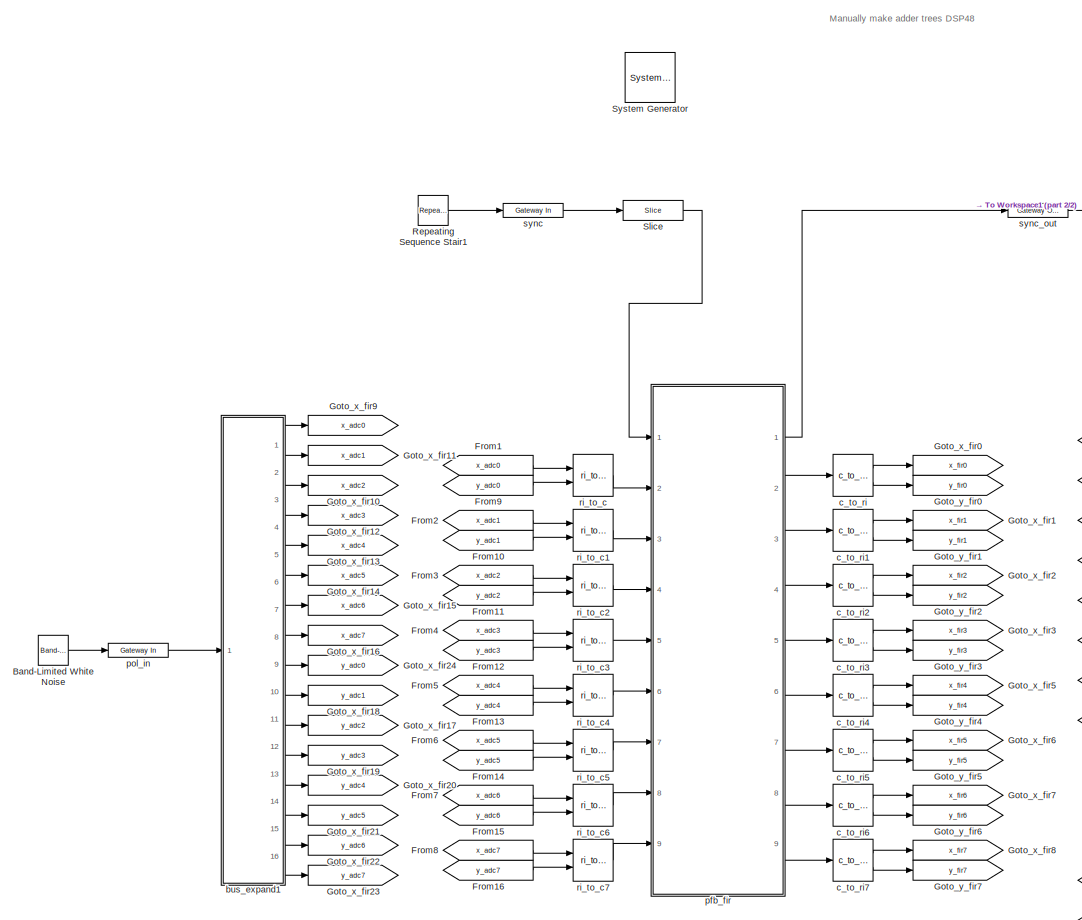
[diagram: root canvas - part 1/2, center side, full height]
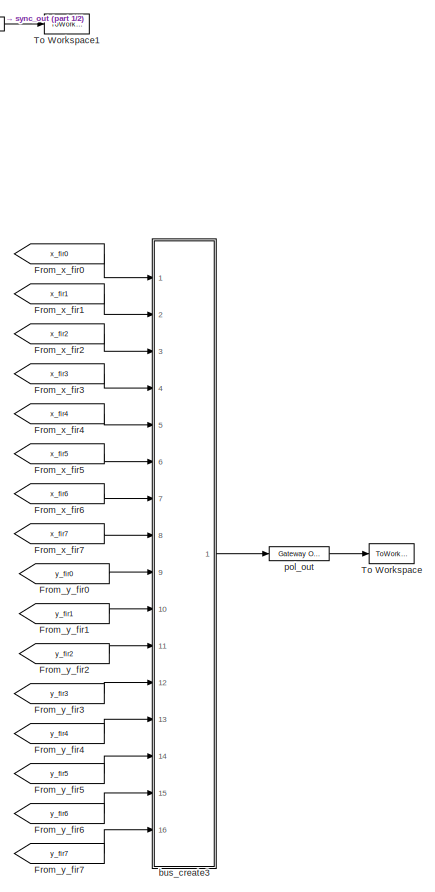
[diagram: root canvas - part 2/2, right side, full height]
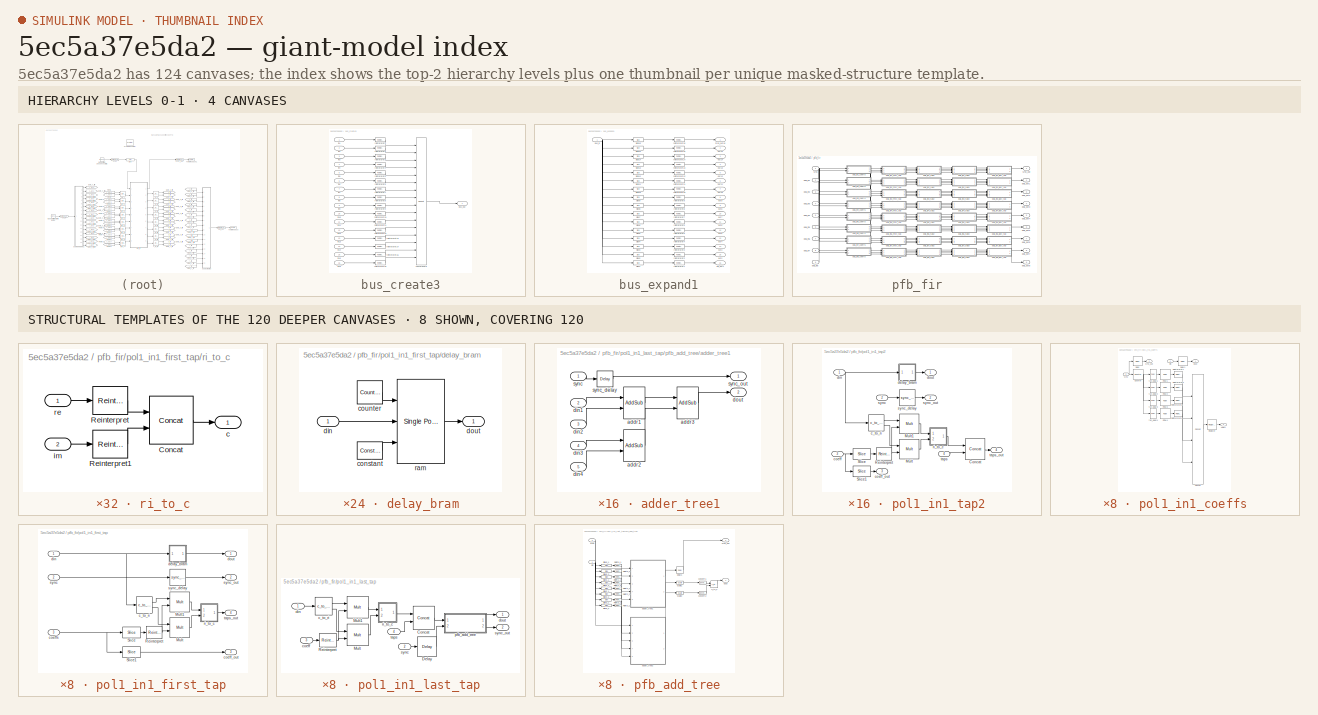
[diagram: thumbnail index - top-2 hierarchy levels (4 canvases) + 8 structural-template representatives of the remaining 120 canvases]
MODEL slx_5ec5a37e5da2
KIND model
CONFIG AbsTol = auto
CONFIG EnableMultiTasking = on
CONFIG FixedStep = auto
CONFIG MaxStep = auto
CONFIG MinStep = auto
CONFIG RelTol = 1e-3
CONFIG SampleTimeConstraint = Unconstrained
CONFIG Solver = ode45
CONFIG SolverName = ode45
CONFIG StartTime = 0.0
CONFIG StopTime = 10.0
BLOCK [Reference]  System Generator  REF=xbsIndex_r4/ System Generator
  AttributesFormatString = System\nGenerator
  Ports = []
  SourceBlock = xbsIndex_r4/ System Generator
  SourceType = Xilinx System Generator Block
  Tag = genX
  UserDataPersistent = on
BLOCK [Reference] Band-Limited White Noise  REF=simulink/Sources/Band-Limited
White Noise
  Ports = [0, 1]
  SourceBlock = simulink/Sources/Band-Limited\nWhite Noise
  SourceProductBaseCode = SL
  SourceProductName = Simulink
  SourceType = Band-Limited White Noise.
BLOCK [From] From1
  GotoTag = x_adc0
BLOCK [From] From10
  GotoTag = y_adc1
BLOCK [From] From11
  GotoTag = y_adc2
BLOCK [From] From12
  GotoTag = y_adc3
BLOCK [From] From13
  GotoTag = y_adc4
BLOCK [From] From14
  GotoTag = y_adc5
BLOCK [From] From15
  GotoTag = y_adc6
BLOCK [From] From16
  GotoTag = y_adc7
BLOCK [From] From2
  GotoTag = x_adc1
BLOCK [From] From3
  GotoTag = x_adc2
BLOCK [From] From4
  GotoTag = x_adc3
BLOCK [From] From5
  GotoTag = x_adc4
BLOCK [From] From6
  GotoTag = x_adc5
BLOCK [From] From7
  GotoTag = x_adc6
BLOCK [From] From8
  GotoTag = x_adc7
BLOCK [From] From9
  GotoTag = y_adc0
BLOCK [From] From_x_fir0
  GotoTag = x_fir0
BLOCK [From] From_x_fir1
  GotoTag = x_fir1
BLOCK [From] From_x_fir2
  GotoTag = x_fir2
BLOCK [From] From_x_fir3
  GotoTag = x_fir3
BLOCK [From] From_x_fir4
  GotoTag = x_fir4
BLOCK [From] From_x_fir5
  GotoTag = x_fir5
BLOCK [From] From_x_fir6
  GotoTag = x_fir6
BLOCK [From] From_x_fir7
  GotoTag = x_fir7
BLOCK [From] From_y_fir0
  GotoTag = y_fir0
BLOCK [From] From_y_fir1
  GotoTag = y_fir1
BLOCK [From] From_y_fir2
  GotoTag = y_fir2
BLOCK [From] From_y_fir3
  GotoTag = y_fir3
BLOCK [From] From_y_fir4
  GotoTag = y_fir4
BLOCK [From] From_y_fir5
  GotoTag = y_fir5
BLOCK [From] From_y_fir6
  GotoTag = y_fir6
BLOCK [From] From_y_fir7
  GotoTag = y_fir7
BLOCK [Goto] Goto_x_fir0
  GotoTag = x_fir0
BLOCK [Goto] Goto_x_fir1
  GotoTag = x_fir1
BLOCK [Goto] Goto_x_fir10
  GotoTag = x_adc2
BLOCK [Goto] Goto_x_fir11
  GotoTag = x_adc1
BLOCK [Goto] Goto_x_fir12
  GotoTag = x_adc3
BLOCK [Goto] Goto_x_fir13
  GotoTag = x_adc4
BLOCK [Goto] Goto_x_fir14
  GotoTag = x_adc5
BLOCK [Goto] Goto_x_fir15
  GotoTag = x_adc6
BLOCK [Goto] Goto_x_fir16
  GotoTag = x_adc7
BLOCK [Goto] Goto_x_fir17
  GotoTag = y_adc2
BLOCK [Goto] Goto_x_fir18
  GotoTag = y_adc1
BLOCK [Goto] Goto_x_fir19
  GotoTag = y_adc3
BLOCK [Goto] Goto_x_fir2
  GotoTag = x_fir2
BLOCK [Goto] Goto_x_fir20
  GotoTag = y_adc4
BLOCK [Goto] Goto_x_fir21
  GotoTag = y_adc5
BLOCK [Goto] Goto_x_fir22
  GotoTag = y_adc6
BLOCK [Goto] Goto_x_fir23
  GotoTag = y_adc7
BLOCK [Goto] Goto_x_fir24
  GotoTag = y_adc0
BLOCK [Goto] Goto_x_fir3
  GotoTag = x_fir3
BLOCK [Goto] Goto_x_fir5
  GotoTag = x_fir4
BLOCK [Goto] Goto_x_fir6
  GotoTag = x_fir5
BLOCK [Goto] Goto_x_fir7
  GotoTag = x_fir6
BLOCK [Goto] Goto_x_fir8
  GotoTag = x_fir7
BLOCK [Goto] Goto_x_fir9
  GotoTag = x_adc0
BLOCK [Goto] Goto_y_fir0
  GotoTag = y_fir0
BLOCK [Goto] Goto_y_fir1
  GotoTag = y_fir1
BLOCK [Goto] Goto_y_fir2
  GotoTag = y_fir2
BLOCK [Goto] Goto_y_fir3
  GotoTag = y_fir3
BLOCK [Goto] Goto_y_fir4
  GotoTag = y_fir4
BLOCK [Goto] Goto_y_fir5
  GotoTag = y_fir5
BLOCK [Goto] Goto_y_fir6
  GotoTag = y_fir6
BLOCK [Goto] Goto_y_fir7
  GotoTag = y_fir7
BLOCK [Reference] Repeating Sequence Stair1  REF=simulink/Sources/Repeating
Sequence
Stair
  Ports = [0, 1]
  SourceBlock = simulink/Sources/Repeating\nSequence\nStair
  SourceProductBaseCode = SL
  SourceProductName = Simulink
  SourceType = Repeating Sequence Stair
BLOCK [Reference] Slice  REF=xbsIndex_r4/Slice
  Ports = [1, 1]
  SourceBlock = xbsIndex_r4/Slice
  SourceType = Xilinx Bit Slice Extractor Block
BLOCK [ToWorkspace] To Workspace
  MaxDataPoints = inf
  Ports = [1]
  SampleTime = -1
  VariableName = pfbout
BLOCK [ToWorkspace] To Workspace1
  MaxDataPoints = inf
  Ports = [1]
  SampleTime = -1
  VariableName = pfbsync
BLOCK [SubSystem] bus_create3
  AncestorBlock = casper_library_flow_control/bus_create
  Ports = [16, 1]
  RequestExecContextInheritance = off
  UserDataPersistent = on
BLOCK [Outport] bus_create3/bus_out
  IconDisplay = Port number
BLOCK [Reference] bus_create3/concatenate  REF=xbsIndex_r4/Concat
  Ports = [16, 1]
  SourceBlock = xbsIndex_r4/Concat
  SourceType = Xilinx Bus Concatenator Block
BLOCK [Inport] bus_create3/in1
  IconDisplay = Port number
BLOCK [Inport] bus_create3/in10
  IconDisplay = Port number
  Port = 10
BLOCK [Inport] bus_create3/in11
  IconDisplay = Port number
  Port = 11
BLOCK [Inport] bus_create3/in12
  IconDisplay = Port number
  Port = 12
BLOCK [Inport] bus_create3/in13
  IconDisplay = Port number
  Port = 13
BLOCK [Inport] bus_create3/in14
  IconDisplay = Port number
  Port = 14
BLOCK [Inport] bus_create3/in15
  IconDisplay = Port number
  Port = 15
BLOCK [Inport] bus_create3/in16
  IconDisplay = Port number
  Port = 16
BLOCK [Inport] bus_create3/in2
  IconDisplay = Port number
  Port = 2
BLOCK [Inport] bus_create3/in3
  IconDisplay = Port number
  Port = 3
BLOCK [Inport] bus_create3/in4
  IconDisplay = Port number
  Port = 4
BLOCK [Inport] bus_create3/in5
  IconDisplay = Port number
  Port = 5
BLOCK [Inport] bus_create3/in6
  IconDisplay = Port number
  Port = 6
BLOCK [Inport] bus_create3/in7
  IconDisplay = Port number
  Port = 7
BLOCK [Inport] bus_create3/in8
  IconDisplay = Port number
  Port = 8
BLOCK [Inport] bus_create3/in9
  IconDisplay = Port number
  Port = 9
BLOCK [Reference] bus_create3/reinterpret1  REF=xbsIndex_r4/Reinterpret
  Ports = [1, 1]
  SourceBlock = xbsIndex_r4/Reinterpret
  SourceType = Xilinx Type Reinterpreter Block
BLOCK [Reference] bus_create3/reinterpret10  REF=xbsIndex_r4/Reinterpret
  Ports = [1, 1]
  SourceBlock = xbsIndex_r4/Reinterpret
  SourceType = Xilinx Type Reinterpreter Block
BLOCK [Reference] bus_create3/reinterpret11  REF=xbsIndex_r4/Reinterpret
  Ports = [1, 1]
  SourceBlock = xbsIndex_r4/Reinterpret
  SourceType = Xilinx Type Reinterpreter Block
BLOCK [Reference] bus_create3/reinterpret12  REF=xbsIndex_r4/Reinterpret
  Ports = [1, 1]
  SourceBlock = xbsIndex_r4/Reinterpret
  SourceType = Xilinx Type Reinterpreter Block
BLOCK [Reference] bus_create3/reinterpret13  REF=xbsIndex_r4/Reinterpret
  Ports = [1, 1]
  SourceBlock = xbsIndex_r4/Reinterpret
  SourceType = Xilinx Type Reinterpreter Block
BLOCK [Reference] bus_create3/reinterpret14  REF=xbsIndex_r4/Reinterpret
  Ports = [1, 1]
  SourceBlock = xbsIndex_r4/Reinterpret
  SourceType = Xilinx Type Reinterpreter Block
BLOCK [Reference] bus_create3/reinterpret15  REF=xbsIndex_r4/Reinterpret
  Ports = [1, 1]
  SourceBlock = xbsIndex_r4/Reinterpret
  SourceType = Xilinx Type Reinterpreter Block
BLOCK [Reference] bus_create3/reinterpret16  REF=xbsIndex_r4/Reinterpret
  Ports = [1, 1]
  SourceBlock = xbsIndex_r4/Reinterpret
  SourceType = Xilinx Type Reinterpreter Block
BLOCK [Reference] bus_create3/reinterpret2  REF=xbsIndex_r4/Reinterpret
  Ports = [1, 1]
  SourceBlock = xbsIndex_r4/Reinterpret
  SourceType = Xilinx Type Reinterpreter Block
BLOCK [Reference] bus_create3/reinterpret3  REF=xbsIndex_r4/Reinterpret
  Ports = [1, 1]
  SourceBlock = xbsIndex_r4/Reinterpret
  SourceType = Xilinx Type Reinterpreter Block
BLOCK [Reference] bus_create3/reinterpret4  REF=xbsIndex_r4/Reinterpret
  Ports = [1, 1]
  SourceBlock = xbsIndex_r4/Reinterpret
  SourceType = Xilinx Type Reinterpreter Block
BLOCK [Reference] bus_create3/reinterpret5  REF=xbsIndex_r4/Reinterpret
  Ports = [1, 1]
  SourceBlock = xbsIndex_r4/Reinterpret
  SourceType = Xilinx Type Reinterpreter Block
BLOCK [Reference] bus_create3/reinterpret6  REF=xbsIndex_r4/Reinterpret
  Ports = [1, 1]
  SourceBlock = xbsIndex_r4/Reinterpret
  SourceType = Xilinx Type Reinterpreter Block
BLOCK [Reference] bus_create3/reinterpret7  REF=xbsIndex_r4/Reinterpret
  Ports = [1, 1]
  SourceBlock = xbsIndex_r4/Reinterpret
  SourceType = Xilinx Type Reinterpreter Block
BLOCK [Reference] bus_create3/reinterpret8  REF=xbsIndex_r4/Reinterpret
  Ports = [1, 1]
  SourceBlock = xbsIndex_r4/Reinterpret
  SourceType = Xilinx Type Reinterpreter Block
BLOCK [Reference] bus_create3/reinterpret9  REF=xbsIndex_r4/Reinterpret
  Ports = [1, 1]
  SourceBlock = xbsIndex_r4/Reinterpret
  SourceType = Xilinx Type Reinterpreter Block
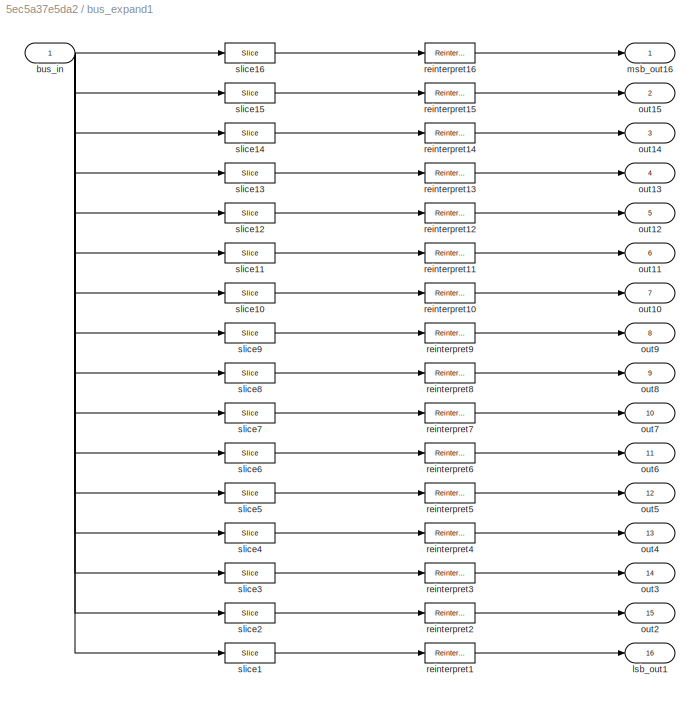
BLOCK [SubSystem] bus_expand1
  AncestorBlock = casper_library_flow_control/bus_expand
  AttributesFormatString = 16 outputs
  Ports = [1, 16]
  RequestExecContextInheritance = off
  UserDataPersistent = on
BLOCK [Inport] bus_expand1/bus_in
  IconDisplay = Port number
BLOCK [Outport] bus_expand1/lsb_out1
  IconDisplay = Port number
  Port = 16
BLOCK [Outport] bus_expand1/msb_out16
  IconDisplay = Port number
BLOCK [Outport] bus_expand1/out10
  IconDisplay = Port number
  Port = 7
BLOCK [Outport] bus_expand1/out11
  IconDisplay = Port number
  Port = 6
BLOCK [Outport] bus_expand1/out12
  IconDisplay = Port number
  Port = 5
BLOCK [Outport] bus_expand1/out13
  IconDisplay = Port number
  Port = 4
BLOCK [Outport] bus_expand1/out14
  IconDisplay = Port number
  Port = 3
BLOCK [Outport] bus_expand1/out15
  IconDisplay = Port number
  Port = 2
BLOCK [Outport] bus_expand1/out2
  IconDisplay = Port number
  Port = 15
BLOCK [Outport] bus_expand1/out3
  IconDisplay = Port number
  Port = 14
BLOCK [Outport] bus_expand1/out4
  IconDisplay = Port number
  Port = 13
BLOCK [Outport] bus_expand1/out5
  IconDisplay = Port number
  Port = 12
BLOCK [Outport] bus_expand1/out6
  IconDisplay = Port number
  Port = 11
BLOCK [Outport] bus_expand1/out7
  IconDisplay = Port number
  Port = 10
BLOCK [Outport] bus_expand1/out8
  IconDisplay = Port number
  Port = 9
BLOCK [Outport] bus_expand1/out9
  IconDisplay = Port number
  Port = 8
BLOCK [Reference] bus_expand1/reinterpret1  REF=xbsIndex_r4/Reinterpret
  Ports = [1, 1]
  SourceBlock = xbsIndex_r4/Reinterpret
  SourceType = Xilinx Type Reinterpreter Block
BLOCK [Reference] bus_expand1/reinterpret10  REF=xbsIndex_r4/Reinterpret
  Ports = [1, 1]
  SourceBlock = xbsIndex_r4/Reinterpret
  SourceType = Xilinx Type Reinterpreter Block
BLOCK [Reference] bus_expand1/reinterpret11  REF=xbsIndex_r4/Reinterpret
  Ports = [1, 1]
  SourceBlock = xbsIndex_r4/Reinterpret
  SourceType = Xilinx Type Reinterpreter Block
BLOCK [Reference] bus_expand1/reinterpret12  REF=xbsIndex_r4/Reinterpret
  Ports = [1, 1]
  SourceBlock = xbsIndex_r4/Reinterpret
  SourceType = Xilinx Type Reinterpreter Block
BLOCK [Reference] bus_expand1/reinterpret13  REF=xbsIndex_r4/Reinterpret
  Ports = [1, 1]
  SourceBlock = xbsIndex_r4/Reinterpret
  SourceType = Xilinx Type Reinterpreter Block
BLOCK [Reference] bus_expand1/reinterpret14  REF=xbsIndex_r4/Reinterpret
  Ports = [1, 1]
  SourceBlock = xbsIndex_r4/Reinterpret
  SourceType = Xilinx Type Reinterpreter Block
BLOCK [Reference] bus_expand1/reinterpret15  REF=xbsIndex_r4/Reinterpret
  Ports = [1, 1]
  SourceBlock = xbsIndex_r4/Reinterpret
  SourceType = Xilinx Type Reinterpreter Block
BLOCK [Reference] bus_expand1/reinterpret16  REF=xbsIndex_r4/Reinterpret
  Ports = [1, 1]
  SourceBlock = xbsIndex_r4/Reinterpret
  SourceType = Xilinx Type Reinterpreter Block
BLOCK [Reference] bus_expand1/reinterpret2  REF=xbsIndex_r4/Reinterpret
  Ports = [1, 1]
  SourceBlock = xbsIndex_r4/Reinterpret
  SourceType = Xilinx Type Reinterpreter Block
BLOCK [Reference] bus_expand1/reinterpret3  REF=xbsIndex_r4/Reinterpret
  Ports = [1, 1]
  SourceBlock = xbsIndex_r4/Reinterpret
  SourceType = Xilinx Type Reinterpreter Block
BLOCK [Reference] bus_expand1/reinterpret4  REF=xbsIndex_r4/Reinterpret
  Ports = [1, 1]
  SourceBlock = xbsIndex_r4/Reinterpret
  SourceType = Xilinx Type Reinterpreter Block
BLOCK [Reference] bus_expand1/reinterpret5  REF=xbsIndex_r4/Reinterpret
  Ports = [1, 1]
  SourceBlock = xbsIndex_r4/Reinterpret
  SourceType = Xilinx Type Reinterpreter Block
BLOCK [Reference] bus_expand1/reinterpret6  REF=xbsIndex_r4/Reinterpret
  Ports = [1, 1]
  SourceBlock = xbsIndex_r4/Reinterpret
  SourceType = Xilinx Type Reinterpreter Block
BLOCK [Reference] bus_expand1/reinterpret7  REF=xbsIndex_r4/Reinterpret
  Ports = [1, 1]
  SourceBlock = xbsIndex_r4/Reinterpret
  SourceType = Xilinx Type Reinterpreter Block
BLOCK [Reference] bus_expand1/reinterpret8  REF=xbsIndex_r4/Reinterpret
  Ports = [1, 1]
  SourceBlock = xbsIndex_r4/Reinterpret
  SourceType = Xilinx Type Reinterpreter Block
BLOCK [Reference] bus_expand1/reinterpret9  REF=xbsIndex_r4/Reinterpret
  Ports = [1, 1]
  SourceBlock = xbsIndex_r4/Reinterpret
  SourceType = Xilinx Type Reinterpreter Block
BLOCK [Reference] bus_expand1/slice1  REF=xbsIndex_r4/Slice
  Ports = [1, 1]
  SourceBlock = xbsIndex_r4/Slice
  SourceType = Xilinx Bit Slice Extractor Block
BLOCK [Reference] bus_expand1/slice10  REF=xbsIndex_r4/Slice
  Ports = [1, 1]
  SourceBlock = xbsIndex_r4/Slice
  SourceType = Xilinx Bit Slice Extractor Block
BLOCK [Reference] bus_expand1/slice11  REF=xbsIndex_r4/Slice
  Ports = [1, 1]
  SourceBlock = xbsIndex_r4/Slice
  SourceType = Xilinx Bit Slice Extractor Block
BLOCK [Reference] bus_expand1/slice12  REF=xbsIndex_r4/Slice
  Ports = [1, 1]
  SourceBlock = xbsIndex_r4/Slice
  SourceType = Xilinx Bit Slice Extractor Block
BLOCK [Reference] bus_expand1/slice13  REF=xbsIndex_r4/Slice
  Ports = [1, 1]
  SourceBlock = xbsIndex_r4/Slice
  SourceType = Xilinx Bit Slice Extractor Block
BLOCK [Reference] bus_expand1/slice14  REF=xbsIndex_r4/Slice
  Ports = [1, 1]
  SourceBlock = xbsIndex_r4/Slice
  SourceType = Xilinx Bit Slice Extractor Block
BLOCK [Reference] bus_expand1/slice15  REF=xbsIndex_r4/Slice
  Ports = [1, 1]
  SourceBlock = xbsIndex_r4/Slice
  SourceType = Xilinx Bit Slice Extractor Block
BLOCK [Reference] bus_expand1/slice16  REF=xbsIndex_r4/Slice
  Ports = [1, 1]
  SourceBlock = xbsIndex_r4/Slice
  SourceType = Xilinx Bit Slice Extractor Block
BLOCK [Reference] bus_expand1/slice2  REF=xbsIndex_r4/Slice
  Ports = [1, 1]
  SourceBlock = xbsIndex_r4/Slice
  SourceType = Xilinx Bit Slice Extractor Block
BLOCK [Reference] bus_expand1/slice3  REF=xbsIndex_r4/Slice
  Ports = [1, 1]
  SourceBlock = xbsIndex_r4/Slice
  SourceType = Xilinx Bit Slice Extractor Block
BLOCK [Reference] bus_expand1/slice4  REF=xbsIndex_r4/Slice
  Ports = [1, 1]
  SourceBlock = xbsIndex_r4/Slice
  SourceType = Xilinx Bit Slice Extractor Block
BLOCK [Reference] bus_expand1/slice5  REF=xbsIndex_r4/Slice
  Ports = [1, 1]
  SourceBlock = xbsIndex_r4/Slice
  SourceType = Xilinx Bit Slice Extractor Block
BLOCK [Reference] bus_expand1/slice6  REF=xbsIndex_r4/Slice
  Ports = [1, 1]
  SourceBlock = xbsIndex_r4/Slice
  SourceType = Xilinx Bit Slice Extractor Block
BLOCK [Reference] bus_expand1/slice7  REF=xbsIndex_r4/Slice
  Ports = [1, 1]
  SourceBlock = xbsIndex_r4/Slice
  SourceType = Xilinx Bit Slice Extractor Block
BLOCK [Reference] bus_expand1/slice8  REF=xbsIndex_r4/Slice
  Ports = [1, 1]
  SourceBlock = xbsIndex_r4/Slice
  SourceType = Xilinx Bit Slice Extractor Block
BLOCK [Reference] bus_expand1/slice9  REF=xbsIndex_r4/Slice
  Ports = [1, 1]
  SourceBlock = xbsIndex_r4/Slice
  SourceType = Xilinx Bit Slice Extractor Block
BLOCK [Reference] c_to_ri  REF=casper_library_misc/c_to_ri  (lib defined in mdl_357510c33b49, mdl_57b5f564ae26, +4 more)
  AttributesFormatString = 18_17 r/i
  Ports = [1, 2]
  SourceBlock = casper_library_misc/c_to_ri
  SourceProductName = CASPER DSP Blockset
  SourceType = c_to_ri
  UserDataPersistent = on
BLOCK [Reference] c_to_ri1  REF=casper_library_misc/c_to_ri  (lib defined in mdl_357510c33b49, mdl_57b5f564ae26, +4 more)
  AttributesFormatString = 18_17 r/i
  Ports = [1, 2]
  SourceBlock = casper_library_misc/c_to_ri
  SourceProductName = CASPER DSP Blockset
  SourceType = c_to_ri
  UserDataPersistent = on
BLOCK [Reference] c_to_ri2  REF=casper_library_misc/c_to_ri  (lib defined in mdl_357510c33b49, mdl_57b5f564ae26, +4 more)
  AttributesFormatString = 18_17 r/i
  Ports = [1, 2]
  SourceBlock = casper_library_misc/c_to_ri
  SourceProductName = CASPER DSP Blockset
  SourceType = c_to_ri
  UserDataPersistent = on
BLOCK [Reference] c_to_ri3  REF=casper_library_misc/c_to_ri  (lib defined in mdl_357510c33b49, mdl_57b5f564ae26, +4 more)
  AttributesFormatString = 18_17 r/i
  Ports = [1, 2]
  SourceBlock = casper_library_misc/c_to_ri
  SourceProductName = CASPER DSP Blockset
  SourceType = c_to_ri
  UserDataPersistent = on
BLOCK [Reference] c_to_ri4  REF=casper_library_misc/c_to_ri  (lib defined in mdl_357510c33b49, mdl_57b5f564ae26, +4 more)
  AttributesFormatString = 18_17 r/i
  Ports = [1, 2]
  SourceBlock = casper_library_misc/c_to_ri
  SourceProductName = CASPER DSP Blockset
  SourceType = c_to_ri
  UserDataPersistent = on
BLOCK [Reference] c_to_ri5  REF=casper_library_misc/c_to_ri  (lib defined in mdl_357510c33b49, mdl_57b5f564ae26, +4 more)
  AttributesFormatString = 18_17 r/i
  Ports = [1, 2]
  SourceBlock = casper_library_misc/c_to_ri
  SourceProductName = CASPER DSP Blockset
  SourceType = c_to_ri
  UserDataPersistent = on
BLOCK [Reference] c_to_ri6  REF=casper_library_misc/c_to_ri  (lib defined in mdl_357510c33b49, mdl_57b5f564ae26, +4 more)
  AttributesFormatString = 18_17 r/i
  Ports = [1, 2]
  SourceBlock = casper_library_misc/c_to_ri
  SourceProductName = CASPER DSP Blockset
  SourceType = c_to_ri
  UserDataPersistent = on
BLOCK [Reference] c_to_ri7  REF=casper_library_misc/c_to_ri  (lib defined in mdl_357510c33b49, mdl_57b5f564ae26, +4 more)
  AttributesFormatString = 18_17 r/i
  Ports = [1, 2]
  SourceBlock = casper_library_misc/c_to_ri
  SourceProductName = CASPER DSP Blockset
  SourceType = c_to_ri
  UserDataPersistent = on
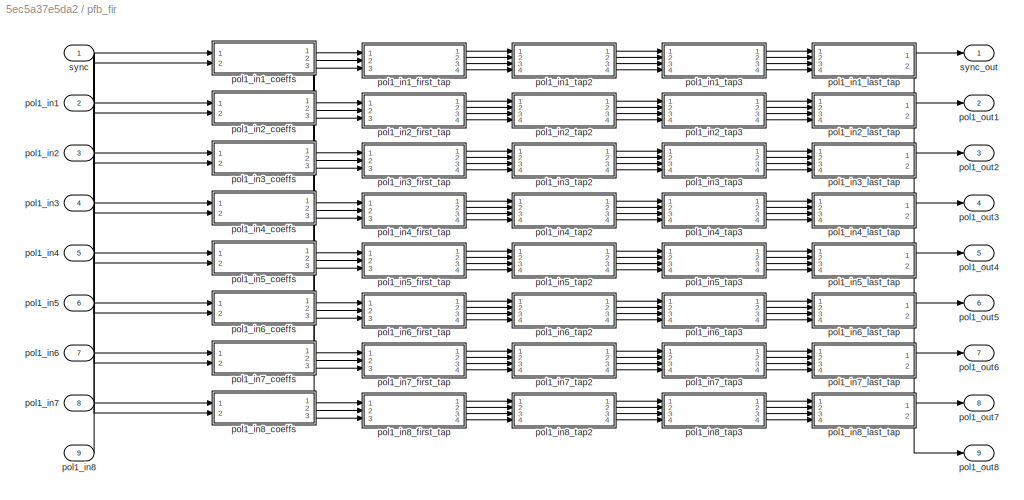
BLOCK [SubSystem] pfb_fir
  AncestorBlock = casper_library_pfbs/pfb_fir
  AttributesFormatString = taps=4, add_latency=1\nmax scale 0.596
  Ports = [9, 9]
  RequestExecContextInheritance = off
  Tag = casper:pfb_fir
  UserDataPersistent = on
BLOCK [Inport] pfb_fir/pol1_in1
  IconDisplay = Port number
  Port = 2
BLOCK [SubSystem] pfb_fir/pol1_in1_coeffs
  AncestorBlock = casper_library_pfbs/pfb_coeff_gen
  AttributesFormatString = PFBSize=13, n_inputs=3,\ntaps=4, input=0
  Ports = [2, 3]
  RequestExecContextInheritance = off
  UserDataPersistent = on
BLOCK [Reference] pfb_fir/pol1_in1_coeffs/Concat  REF=xbsIndex_r4/Concat
  Ports = [4, 1]
  SourceBlock = xbsIndex_r4/Concat
  SourceType = Xilinx Bus Concatenator Block
BLOCK [Reference] pfb_fir/pol1_in1_coeffs/Counter  REF=xbsIndex_r4/Counter
  Ports = [1, 1]
  SourceBlock = xbsIndex_r4/Counter
  SourceType = Xilinx Counter Block
BLOCK [Reference] pfb_fir/pol1_in1_coeffs/Delay  REF=xbsIndex_r4/Delay
  Ports = [1, 1]
  SourceBlock = xbsIndex_r4/Delay
  SourceType = Xilinx Delay Block
BLOCK [Reference] pfb_fir/pol1_in1_coeffs/Delay1  REF=xbsIndex_r4/Delay
  Ports = [1, 1]
  SourceBlock = xbsIndex_r4/Delay
  SourceType = Xilinx Delay Block
BLOCK [Reference] pfb_fir/pol1_in1_coeffs/ROM1  REF=xbsIndex_r4/ROM
  Ports = [1, 1]
  SourceBlock = xbsIndex_r4/ROM
  SourceType = Xilinx Single Port Read-Only Memory Block
BLOCK [Reference] pfb_fir/pol1_in1_coeffs/ROM2  REF=xbsIndex_r4/ROM
  Ports = [1, 1]
  SourceBlock = xbsIndex_r4/ROM
  SourceType = Xilinx Single Port Read-Only Memory Block
BLOCK [Reference] pfb_fir/pol1_in1_coeffs/ROM3  REF=xbsIndex_r4/ROM
  Ports = [1, 1]
  SourceBlock = xbsIndex_r4/ROM
  SourceType = Xilinx Single Port Read-Only Memory Block
BLOCK [Reference] pfb_fir/pol1_in1_coeffs/ROM4  REF=xbsIndex_r4/ROM
  Ports = [1, 1]
  SourceBlock = xbsIndex_r4/ROM
  SourceType = Xilinx Single Port Read-Only Memory Block
BLOCK [Reference] pfb_fir/pol1_in1_coeffs/Register  REF=xbsIndex_r4/Register
  Ports = [1, 1]
  SourceBlock = xbsIndex_r4/Register
  SourceType = Xilinx Register Block
BLOCK [Reference] pfb_fir/pol1_in1_coeffs/Reinterpret1  REF=xbsIndex_r4/Reinterpret
  Ports = [1, 1]
  SourceBlock = xbsIndex_r4/Reinterpret
  SourceType = Xilinx Type Reinterpreter Block
BLOCK [Reference] pfb_fir/pol1_in1_coeffs/Reinterpret2  REF=xbsIndex_r4/Reinterpret
  Ports = [1, 1]
  SourceBlock = xbsIndex_r4/Reinterpret
  SourceType = Xilinx Type Reinterpreter Block
BLOCK [Reference] pfb_fir/pol1_in1_coeffs/Reinterpret3  REF=xbsIndex_r4/Reinterpret
  Ports = [1, 1]
  SourceBlock = xbsIndex_r4/Reinterpret
  SourceType = Xilinx Type Reinterpreter Block
BLOCK [Reference] pfb_fir/pol1_in1_coeffs/Reinterpret4  REF=xbsIndex_r4/Reinterpret
  Ports = [1, 1]
  SourceBlock = xbsIndex_r4/Reinterpret
  SourceType = Xilinx Type Reinterpreter Block
BLOCK [Outport] pfb_fir/pol1_in1_coeffs/coeff
  IconDisplay = Port number
  Port = 3
BLOCK [Inport] pfb_fir/pol1_in1_coeffs/din
  IconDisplay = Port number
BLOCK [Outport] pfb_fir/pol1_in1_coeffs/dout
  IconDisplay = Port number
BLOCK [Reference] pfb_fir/pol1_in1_coeffs/fan_delay1  REF=xbsIndex_r4/Delay
  Ports = [1, 1]
  SourceBlock = xbsIndex_r4/Delay
  SourceType = Xilinx Delay Block
BLOCK [Reference] pfb_fir/pol1_in1_coeffs/fan_delay2  REF=xbsIndex_r4/Delay
  Ports = [1, 1]
  SourceBlock = xbsIndex_r4/Delay
  SourceType = Xilinx Delay Block
BLOCK [Reference] pfb_fir/pol1_in1_coeffs/fan_delay3  REF=xbsIndex_r4/Delay
  Ports = [1, 1]
  SourceBlock = xbsIndex_r4/Delay
  SourceType = Xilinx Delay Block
BLOCK [Reference] pfb_fir/pol1_in1_coeffs/fan_delay4  REF=xbsIndex_r4/Delay
  Ports = [1, 1]
  SourceBlock = xbsIndex_r4/Delay
  SourceType = Xilinx Delay Block
BLOCK [Inport] pfb_fir/pol1_in1_coeffs/sync
  IconDisplay = Port number
  Port = 2
BLOCK [Outport] pfb_fir/pol1_in1_coeffs/sync_out
  IconDisplay = Port number
  Port = 2
BLOCK [SubSystem] pfb_fir/pol1_in1_first_tap
  AncestorBlock = casper_library_pfbs/first_tap
  AttributesFormatString = taps=4
  Ports = [3, 4]
  RequestExecContextInheritance = off
  UserDataPersistent = on
BLOCK [Reference] pfb_fir/pol1_in1_first_tap/Mult  REF=xbsIndex_r4/Mult
  Ports = [2, 1]
  SourceBlock = xbsIndex_r4/Mult
  SourceType = Xilinx Multiplier Block
BLOCK [Reference] pfb_fir/pol1_in1_first_tap/Mult1  REF=xbsIndex_r4/Mult
  Ports = [2, 1]
  SourceBlock = xbsIndex_r4/Mult
  SourceType = Xilinx Multiplier Block
BLOCK [Reference] pfb_fir/pol1_in1_first_tap/Reinterpret  REF=xbsIndex_r4/Reinterpret
  Ports = [1, 1]
  SourceBlock = xbsIndex_r4/Reinterpret
  SourceType = Xilinx Type Reinterpreter Block
BLOCK [Reference] pfb_fir/pol1_in1_first_tap/Slice  REF=xbsIndex_r4/Slice
  Ports = [1, 1]
  SourceBlock = xbsIndex_r4/Slice
  SourceType = Xilinx Bit Slice Extractor Block
BLOCK [Reference] pfb_fir/pol1_in1_first_tap/Slice1  REF=xbsIndex_r4/Slice
  Ports = [1, 1]
  SourceBlock = xbsIndex_r4/Slice
  SourceType = Xilinx Bit Slice Extractor Block
BLOCK [Reference] pfb_fir/pol1_in1_first_tap/c_to_ri  REF=casper_library_misc/c_to_ri  (lib defined in mdl_357510c33b49, mdl_57b5f564ae26, +4 more)
  AttributesFormatString = 16_15 r/i
  Ports = [1, 2]
  SourceBlock = casper_library_misc/c_to_ri
  SourceProductName = CASPER DSP Blockset
  SourceType = c_to_ri
  UserDataPersistent = on
BLOCK [Outport] pfb_fir/pol1_in1_first_tap/coeff_out
  IconDisplay = Port number
  Port = 3
BLOCK [Inport] pfb_fir/pol1_in1_first_tap/coeffs
  IconDisplay = Port number
  Port = 3
BLOCK [SubSystem] pfb_fir/pol1_in1_first_tap/delay_bram
  AncestorBlock = casper_library_delays/delay_bram
  Ports = [1, 1]
  RequestExecContextInheritance = off
  UserDataPersistent = on
BLOCK [Reference] pfb_fir/pol1_in1_first_tap/delay_bram/constant  REF=xbsIndex_r4/Constant
  Ports = [0, 1]
  SourceBlock = xbsIndex_r4/Constant
  SourceType = Xilinx Constant Block Block
BLOCK [Reference] pfb_fir/pol1_in1_first_tap/delay_bram/counter  REF=xbsIndex_r4/Counter
  Ports = [0, 1]
  SourceBlock = xbsIndex_r4/Counter
  SourceType = Xilinx Counter Block
BLOCK [Inport] pfb_fir/pol1_in1_first_tap/delay_bram/din
  IconDisplay = Port number
BLOCK [Outport] pfb_fir/pol1_in1_first_tap/delay_bram/dout
  IconDisplay = Port number
BLOCK [Reference] pfb_fir/pol1_in1_first_tap/delay_bram/ram  REF=xbsIndex_r4/Single Port RAM
  Ports = [3, 1]
  SourceBlock = xbsIndex_r4/Single Port RAM
  SourceType = Xilinx Single Port Random Access Memory Block
BLOCK [Inport] pfb_fir/pol1_in1_first_tap/din
  IconDisplay = Port number
BLOCK [Outport] pfb_fir/pol1_in1_first_tap/dout
  IconDisplay = Port number
BLOCK [SubSystem] pfb_fir/pol1_in1_first_tap/ri_to_c
  Ports = [2, 1]
  RequestExecContextInheritance = off
BLOCK [Reference] pfb_fir/pol1_in1_first_tap/ri_to_c/Concat  REF=xbsIndex_r4/Concat
  Ports = [2, 1]
  SourceBlock = xbsIndex_r4/Concat
  SourceType = Xilinx Bus Concatenator Block
BLOCK [Reference] pfb_fir/pol1_in1_first_tap/ri_to_c/Reinterpret  REF=xbsIndex_r4/Reinterpret
  Ports = [1, 1]
  SourceBlock = xbsIndex_r4/Reinterpret
  SourceType = Xilinx Type Reinterpreter Block
BLOCK [Reference] pfb_fir/pol1_in1_first_tap/ri_to_c/Reinterpret1  REF=xbsIndex_r4/Reinterpret
  Ports = [1, 1]
  SourceBlock = xbsIndex_r4/Reinterpret
  SourceType = Xilinx Type Reinterpreter Block
BLOCK [Outport] pfb_fir/pol1_in1_first_tap/ri_to_c/c
  IconDisplay = Port number
BLOCK [Inport] pfb_fir/pol1_in1_first_tap/ri_to_c/im
  IconDisplay = Port number
  Port = 2
BLOCK [Inport] pfb_fir/pol1_in1_first_tap/ri_to_c/re
  IconDisplay = Port number
BLOCK [Inport] pfb_fir/pol1_in1_first_tap/sync
  IconDisplay = Port number
  Port = 2
BLOCK [Reference] pfb_fir/pol1_in1_first_tap/sync_delay  REF=casper_library_delays/sync_delay  (lib defined in mdl_259a08a3fac5, mdl_65009615caaa, +5 more)
  Ports = [1, 1]
  SourceBlock = casper_library_delays/sync_delay
  SourceProductName = CASPER DSP Blockset
  SourceType = sync_delay
BLOCK [Outport] pfb_fir/pol1_in1_first_tap/sync_out
  IconDisplay = Port number
  Port = 2
BLOCK [Outport] pfb_fir/pol1_in1_first_tap/taps_out
  IconDisplay = Port number
  Port = 4
BLOCK [SubSystem] pfb_fir/pol1_in1_last_tap
  AncestorBlock = casper_library_pfbs/last_tap
  AttributesFormatString = taps=4
  Ports = [4, 2]
  RequestExecContextInheritance = off
  UserDataPersistent = on
BLOCK [Reference] pfb_fir/pol1_in1_last_tap/Concat  REF=xbsIndex_r4/Concat
  Ports = [2, 1]
  SourceBlock = xbsIndex_r4/Concat
  SourceType = Xilinx Bus Concatenator Block
BLOCK [Reference] pfb_fir/pol1_in1_last_tap/Delay  REF=xbsIndex_r4/Delay
  Ports = [1, 1]
  SourceBlock = xbsIndex_r4/Delay
  SourceType = Xilinx Delay Block
BLOCK [Reference] pfb_fir/pol1_in1_last_tap/Mult  REF=xbsIndex_r4/Mult
  Ports = [2, 1]
  SourceBlock = xbsIndex_r4/Mult
  SourceType = Xilinx Multiplier Block
BLOCK [Reference] pfb_fir/pol1_in1_last_tap/Mult1  REF=xbsIndex_r4/Mult
  Ports = [2, 1]
  SourceBlock = xbsIndex_r4/Mult
  SourceType = Xilinx Multiplier Block
BLOCK [Reference] pfb_fir/pol1_in1_last_tap/Reinterpret  REF=xbsIndex_r4/Reinterpret
  Ports = [1, 1]
  SourceBlock = xbsIndex_r4/Reinterpret
  SourceType = Xilinx Type Reinterpreter Block
BLOCK [Reference] pfb_fir/pol1_in1_last_tap/c_to_ri  REF=casper_library_misc/c_to_ri  (lib defined in mdl_357510c33b49, mdl_57b5f564ae26, +4 more)
  AttributesFormatString = 16_15 r/i
  Ports = [1, 2]
  SourceBlock = casper_library_misc/c_to_ri
  SourceProductName = CASPER DSP Blockset
  SourceType = c_to_ri
  UserDataPersistent = on
BLOCK [Inport] pfb_fir/pol1_in1_last_tap/coeff
  IconDisplay = Port number
  Port = 3
BLOCK [Inport] pfb_fir/pol1_in1_last_tap/din
  IconDisplay = Port number
BLOCK [Outport] pfb_fir/pol1_in1_last_tap/dout
  IconDisplay = Port number
BLOCK [SubSystem] pfb_fir/pol1_in1_last_tap/pfb_add_tree
  AttributesFormatString = taps=4, add_latency=1
  Ports = [2, 2]
  RequestExecContextInheritance = off
  UserDataPersistent = on
BLOCK [Reference] pfb_fir/pol1_in1_last_tap/pfb_add_tree/Reint0_1  REF=xbsIndex_r4/Reinterpret
  Ports = [1, 1]
  SourceBlock = xbsIndex_r4/Reinterpret
  SourceType = Xilinx Type Reinterpreter Block
BLOCK [Reference] pfb_fir/pol1_in1_last_tap/pfb_add_tree/Reint0_2  REF=xbsIndex_r4/Reinterpret
  Ports = [1, 1]
  SourceBlock = xbsIndex_r4/Reinterpret
  SourceType = Xilinx Type Reinterpreter Block
BLOCK [Reference] pfb_fir/pol1_in1_last_tap/pfb_add_tree/Reint1_1  REF=xbsIndex_r4/Reinterpret
  Ports = [1, 1]
  SourceBlock = xbsIndex_r4/Reinterpret
  SourceType = Xilinx Type Reinterpreter Block
BLOCK [Reference] pfb_fir/pol1_in1_last_tap/pfb_add_tree/Reint1_2  REF=xbsIndex_r4/Reinterpret
  Ports = [1, 1]
  SourceBlock = xbsIndex_r4/Reinterpret
  SourceType = Xilinx Type Reinterpreter Block
BLOCK [Reference] pfb_fir/pol1_in1_last_tap/pfb_add_tree/Reint2_1  REF=xbsIndex_r4/Reinterpret
  Ports = [1, 1]
  SourceBlock = xbsIndex_r4/Reinterpret
  SourceType = Xilinx Type Reinterpreter Block
BLOCK [Reference] pfb_fir/pol1_in1_last_tap/pfb_add_tree/Reint2_2  REF=xbsIndex_r4/Reinterpret
  Ports = [1, 1]
  SourceBlock = xbsIndex_r4/Reinterpret
  SourceType = Xilinx Type Reinterpreter Block
BLOCK [Reference] pfb_fir/pol1_in1_last_tap/pfb_add_tree/Reint3_1  REF=xbsIndex_r4/Reinterpret
  Ports = [1, 1]
  SourceBlock = xbsIndex_r4/Reinterpret
  SourceType = Xilinx Type Reinterpreter Block
BLOCK [Reference] pfb_fir/pol1_in1_last_tap/pfb_add_tree/Reint3_2  REF=xbsIndex_r4/Reinterpret
  Ports = [1, 1]
  SourceBlock = xbsIndex_r4/Reinterpret
  SourceType = Xilinx Type Reinterpreter Block
BLOCK [Reference] pfb_fir/pol1_in1_last_tap/pfb_add_tree/Slice0_1  REF=xbsIndex_r4/Slice
  Ports = [1, 1]
  SourceBlock = xbsIndex_r4/Slice
  SourceType = Xilinx Bit Slice Extractor Block
BLOCK [Reference] pfb_fir/pol1_in1_last_tap/pfb_add_tree/Slice0_2  REF=xbsIndex_r4/Slice
  Ports = [1, 1]
  SourceBlock = xbsIndex_r4/Slice
  SourceType = Xilinx Bit Slice Extractor Block
BLOCK [Reference] pfb_fir/pol1_in1_last_tap/pfb_add_tree/Slice1_1  REF=xbsIndex_r4/Slice
  Ports = [1, 1]
  SourceBlock = xbsIndex_r4/Slice
  SourceType = Xilinx Bit Slice Extractor Block
BLOCK [Reference] pfb_fir/pol1_in1_last_tap/pfb_add_tree/Slice1_2  REF=xbsIndex_r4/Slice
  Ports = [1, 1]
  SourceBlock = xbsIndex_r4/Slice
  SourceType = Xilinx Bit Slice Extractor Block
BLOCK [Reference] pfb_fir/pol1_in1_last_tap/pfb_add_tree/Slice2_1  REF=xbsIndex_r4/Slice
  Ports = [1, 1]
  SourceBlock = xbsIndex_r4/Slice
  SourceType = Xilinx Bit Slice Extractor Block
BLOCK [Reference] pfb_fir/pol1_in1_last_tap/pfb_add_tree/Slice2_2  REF=xbsIndex_r4/Slice
  Ports = [1, 1]
  SourceBlock = xbsIndex_r4/Slice
  SourceType = Xilinx Bit Slice Extractor Block
BLOCK [Reference] pfb_fir/pol1_in1_last_tap/pfb_add_tree/Slice3_1  REF=xbsIndex_r4/Slice
  Ports = [1, 1]
  SourceBlock = xbsIndex_r4/Slice
  SourceType = Xilinx Bit Slice Extractor Block
BLOCK [Reference] pfb_fir/pol1_in1_last_tap/pfb_add_tree/Slice3_2  REF=xbsIndex_r4/Slice
  Ports = [1, 1]
  SourceBlock = xbsIndex_r4/Slice
  SourceType = Xilinx Bit Slice Extractor Block
BLOCK [SubSystem] pfb_fir/pol1_in1_last_tap/pfb_add_tree/adder_tree1
  AncestorBlock = casper_library_misc/adder_tree
  AttributesFormatString = latency 2
  Ports = [5, 2]
  RequestExecContextInheritance = off
  UserDataPersistent = on
BLOCK [Reference] pfb_fir/pol1_in1_last_tap/pfb_add_tree/adder_tree1/addr1  REF=xbsIndex_r4/AddSub
  Ports = [2, 1]
  SourceBlock = xbsIndex_r4/AddSub
  SourceType = Xilinx Adder/Subtracter Block
BLOCK [Reference] pfb_fir/pol1_in1_last_tap/pfb_add_tree/adder_tree1/addr2  REF=xbsIndex_r4/AddSub
  Ports = [2, 1]
  SourceBlock = xbsIndex_r4/AddSub
  SourceType = Xilinx Adder/Subtracter Block
BLOCK [Reference] pfb_fir/pol1_in1_last_tap/pfb_add_tree/adder_tree1/addr3  REF=xbsIndex_r4/AddSub
  Ports = [2, 1]
  SourceBlock = xbsIndex_r4/AddSub
  SourceType = Xilinx Adder/Subtracter Block
BLOCK [Inport] pfb_fir/pol1_in1_last_tap/pfb_add_tree/adder_tree1/din1
  IconDisplay = Port number
  Port = 2
BLOCK [Inport] pfb_fir/pol1_in1_last_tap/pfb_add_tree/adder_tree1/din2
  IconDisplay = Port number
  Port = 3
BLOCK [Inport] pfb_fir/pol1_in1_last_tap/pfb_add_tree/adder_tree1/din3
  IconDisplay = Port number
  Port = 4
BLOCK [Inport] pfb_fir/pol1_in1_last_tap/pfb_add_tree/adder_tree1/din4
  IconDisplay = Port number
  Port = 5
BLOCK [Outport] pfb_fir/pol1_in1_last_tap/pfb_add_tree/adder_tree1/dout
  IconDisplay = Port number
  Port = 2
BLOCK [Inport] pfb_fir/pol1_in1_last_tap/pfb_add_tree/adder_tree1/sync
  IconDisplay = Port number
BLOCK [Reference] pfb_fir/pol1_in1_last_tap/pfb_add_tree/adder_tree1/sync_delay  REF=xbsIndex_r4/Delay
  Ports = [1, 1]
  SourceBlock = xbsIndex_r4/Delay
  SourceType = Xilinx Delay Block
BLOCK [Outport] pfb_fir/pol1_in1_last_tap/pfb_add_tree/adder_tree1/sync_out
  IconDisplay = Port number
BLOCK [SubSystem] pfb_fir/pol1_in1_last_tap/pfb_add_tree/adder_tree2
  AncestorBlock = casper_library_misc/adder_tree
  AttributesFormatString = latency 2
  Ports = [5, 2]
  RequestExecContextInheritance = off
  UserDataPersistent = on
BLOCK [Reference] pfb_fir/pol1_in1_last_tap/pfb_add_tree/adder_tree2/addr1  REF=xbsIndex_r4/AddSub
  Ports = [2, 1]
  SourceBlock = xbsIndex_r4/AddSub
  SourceType = Xilinx Adder/Subtracter Block
BLOCK [Reference] pfb_fir/pol1_in1_last_tap/pfb_add_tree/adder_tree2/addr2  REF=xbsIndex_r4/AddSub
  Ports = [2, 1]
  SourceBlock = xbsIndex_r4/AddSub
  SourceType = Xilinx Adder/Subtracter Block
BLOCK [Reference] pfb_fir/pol1_in1_last_tap/pfb_add_tree/adder_tree2/addr3  REF=xbsIndex_r4/AddSub
  Ports = [2, 1]
  SourceBlock = xbsIndex_r4/AddSub
  SourceType = Xilinx Adder/Subtracter Block
BLOCK [Inport] pfb_fir/pol1_in1_last_tap/pfb_add_tree/adder_tree2/din1
  IconDisplay = Port number
  Port = 2
BLOCK [Inport] pfb_fir/pol1_in1_last_tap/pfb_add_tree/adder_tree2/din2
  IconDisplay = Port number
  Port = 3
BLOCK [Inport] pfb_fir/pol1_in1_last_tap/pfb_add_tree/adder_tree2/din3
  IconDisplay = Port number
  Port = 4
BLOCK [Inport] pfb_fir/pol1_in1_last_tap/pfb_add_tree/adder_tree2/din4
  IconDisplay = Port number
  Port = 5
BLOCK [Outport] pfb_fir/pol1_in1_last_tap/pfb_add_tree/adder_tree2/dout
  IconDisplay = Port number
  Port = 2
BLOCK [Inport] pfb_fir/pol1_in1_last_tap/pfb_add_tree/adder_tree2/sync
  IconDisplay = Port number
BLOCK [Reference] pfb_fir/pol1_in1_last_tap/pfb_add_tree/adder_tree2/sync_delay  REF=xbsIndex_r4/Delay
  Ports = [1, 1]
  SourceBlock = xbsIndex_r4/Delay
  SourceType = Xilinx Delay Block
BLOCK [Outport] pfb_fir/pol1_in1_last_tap/pfb_add_tree/adder_tree2/sync_out
  IconDisplay = Port number
BLOCK [Reference] pfb_fir/pol1_in1_last_tap/pfb_add_tree/convert1  REF=xbsIndex_r4/Convert
  Ports = [1, 1]
  SourceBlock = xbsIndex_r4/Convert
  SourceType = Xilinx Type Converter Block
BLOCK [Reference] pfb_fir/pol1_in1_last_tap/pfb_add_tree/convert2  REF=xbsIndex_r4/Convert
  Ports = [1, 1]
  SourceBlock = xbsIndex_r4/Convert
  SourceType = Xilinx Type Converter Block
BLOCK [Reference] pfb_fir/pol1_in1_last_tap/pfb_add_tree/delay1  REF=xbsIndex_r4/Delay
  Ports = [1, 1]
  SourceBlock = xbsIndex_r4/Delay
  SourceType = Xilinx Delay Block
BLOCK [Inport] pfb_fir/pol1_in1_last_tap/pfb_add_tree/din
  IconDisplay = Port number
BLOCK [Outport] pfb_fir/pol1_in1_last_tap/pfb_add_tree/dout
  IconDisplay = Port number
BLOCK [Reference] pfb_fir/pol1_in1_last_tap/pfb_add_tree/ri_to_c  REF=casper_library_misc/ri_to_c  (lib defined in mdl_357510c33b49, mdl_57b5f564ae26, +4 more)
  Ports = [2, 1]
  SourceBlock = casper_library_misc/ri_to_c
  SourceProductName = CASPER DSP Blockset
  SourceType = ri_to_c
  UserDataPersistent = on
BLOCK [Reference] pfb_fir/pol1_in1_last_tap/pfb_add_tree/scale1  REF=xbsIndex_r4/Scale
  Ports = [1, 1]
  SourceBlock = xbsIndex_r4/Scale
  SourceType = Xilinx Input Scaler Block
BLOCK [Reference] pfb_fir/pol1_in1_last_tap/pfb_add_tree/scale2  REF=xbsIndex_r4/Scale
  Ports = [1, 1]
  SourceBlock = xbsIndex_r4/Scale
  SourceType = Xilinx Input Scaler Block
BLOCK [Inport] pfb_fir/pol1_in1_last_tap/pfb_add_tree/sync
  IconDisplay = Port number
  Port = 2
BLOCK [Outport] pfb_fir/pol1_in1_last_tap/pfb_add_tree/sync_out
  IconDisplay = Port number
  Port = 2
BLOCK [SubSystem] pfb_fir/pol1_in1_last_tap/ri_to_c
  Ports = [2, 1]
  RequestExecContextInheritance = off
BLOCK [Reference] pfb_fir/pol1_in1_last_tap/ri_to_c/Concat  REF=xbsIndex_r4/Concat
  Ports = [2, 1]
  SourceBlock = xbsIndex_r4/Concat
  SourceType = Xilinx Bus Concatenator Block
BLOCK [Reference] pfb_fir/pol1_in1_last_tap/ri_to_c/Reinterpret  REF=xbsIndex_r4/Reinterpret
  Ports = [1, 1]
  SourceBlock = xbsIndex_r4/Reinterpret
  SourceType = Xilinx Type Reinterpreter Block
BLOCK [Reference] pfb_fir/pol1_in1_last_tap/ri_to_c/Reinterpret1  REF=xbsIndex_r4/Reinterpret
  Ports = [1, 1]
  SourceBlock = xbsIndex_r4/Reinterpret
  SourceType = Xilinx Type Reinterpreter Block
BLOCK [Outport] pfb_fir/pol1_in1_last_tap/ri_to_c/c
  IconDisplay = Port number
BLOCK [Inport] pfb_fir/pol1_in1_last_tap/ri_to_c/im
  IconDisplay = Port number
  Port = 2
BLOCK [Inport] pfb_fir/pol1_in1_last_tap/ri_to_c/re
  IconDisplay = Port number
BLOCK [Inport] pfb_fir/pol1_in1_last_tap/sync
  IconDisplay = Port number
  Port = 2
BLOCK [Outport] pfb_fir/pol1_in1_last_tap/sync_out
  IconDisplay = Port number
  Port = 2
BLOCK [Inport] pfb_fir/pol1_in1_last_tap/taps
  IconDisplay = Port number
  Port = 4
BLOCK [SubSystem] pfb_fir/pol1_in1_tap2
  AncestorBlock = casper_library_pfbs/tap
  Ports = [4, 4]
  RequestExecContextInheritance = off
BLOCK [Reference] pfb_fir/pol1_in1_tap2/Concat  REF=xbsIndex_r4/Concat
  Ports = [2, 1]
  SourceBlock = xbsIndex_r4/Concat
  SourceType = Xilinx Bus Concatenator Block
BLOCK [Reference] pfb_fir/pol1_in1_tap2/Mult  REF=xbsIndex_r4/Mult
  Ports = [2, 1]
  SourceBlock = xbsIndex_r4/Mult
  SourceType = Xilinx Multiplier Block
BLOCK [Reference] pfb_fir/pol1_in1_tap2/Mult1  REF=xbsIndex_r4/Mult
  Ports = [2, 1]
  SourceBlock = xbsIndex_r4/Mult
  SourceType = Xilinx Multiplier Block
BLOCK [Reference] pfb_fir/pol1_in1_tap2/Reinterpret  REF=xbsIndex_r4/Reinterpret
  Ports = [1, 1]
  SourceBlock = xbsIndex_r4/Reinterpret
  SourceType = Xilinx Type Reinterpreter Block
BLOCK [Reference] pfb_fir/pol1_in1_tap2/Slice  REF=xbsIndex_r4/Slice
  Ports = [1, 1]
  SourceBlock = xbsIndex_r4/Slice
  SourceType = Xilinx Bit Slice Extractor Block
BLOCK [Reference] pfb_fir/pol1_in1_tap2/Slice1  REF=xbsIndex_r4/Slice
  Ports = [1, 1]
  SourceBlock = xbsIndex_r4/Slice
  SourceType = Xilinx Bit Slice Extractor Block
BLOCK [Reference] pfb_fir/pol1_in1_tap2/c_to_ri  REF=casper_library_misc/c_to_ri  (lib defined in mdl_357510c33b49, mdl_57b5f564ae26, +4 more)
  AttributesFormatString = 16_15 r/i
  Ports = [1, 2]
  SourceBlock = casper_library_misc/c_to_ri
  SourceProductName = CASPER DSP Blockset
  SourceType = c_to_ri
  UserDataPersistent = on
BLOCK [Inport] pfb_fir/pol1_in1_tap2/coeff
  IconDisplay = Port number
  Port = 3
BLOCK [Outport] pfb_fir/pol1_in1_tap2/coeff_out
  IconDisplay = Port number
  Port = 3
BLOCK [SubSystem] pfb_fir/pol1_in1_tap2/delay_bram
  AncestorBlock = casper_library_delays/delay_bram
  Ports = [1, 1]
  RequestExecContextInheritance = off
  UserDataPersistent = on
BLOCK [Reference] pfb_fir/pol1_in1_tap2/delay_bram/constant  REF=xbsIndex_r4/Constant
  Ports = [0, 1]
  SourceBlock = xbsIndex_r4/Constant
  SourceType = Xilinx Constant Block Block
BLOCK [Reference] pfb_fir/pol1_in1_tap2/delay_bram/counter  REF=xbsIndex_r4/Counter
  Ports = [0, 1]
  SourceBlock = xbsIndex_r4/Counter
  SourceType = Xilinx Counter Block
BLOCK [Inport] pfb_fir/pol1_in1_tap2/delay_bram/din
  IconDisplay = Port number
BLOCK [Outport] pfb_fir/pol1_in1_tap2/delay_bram/dout
  IconDisplay = Port number
BLOCK [Reference] pfb_fir/pol1_in1_tap2/delay_bram/ram  REF=xbsIndex_r4/Single Port RAM
  Ports = [3, 1]
  SourceBlock = xbsIndex_r4/Single Port RAM
  SourceType = Xilinx Single Port Random Access Memory Block
BLOCK [Inport] pfb_fir/pol1_in1_tap2/din
  IconDisplay = Port number
BLOCK [Outport] pfb_fir/pol1_in1_tap2/dout
  IconDisplay = Port number
BLOCK [SubSystem] pfb_fir/pol1_in1_tap2/ri_to_c
  Ports = [2, 1]
  RequestExecContextInheritance = off
BLOCK [Reference] pfb_fir/pol1_in1_tap2/ri_to_c/Concat  REF=xbsIndex_r4/Concat
  Ports = [2, 1]
  SourceBlock = xbsIndex_r4/Concat
  SourceType = Xilinx Bus Concatenator Block
BLOCK [Reference] pfb_fir/pol1_in1_tap2/ri_to_c/Reinterpret  REF=xbsIndex_r4/Reinterpret
  Ports = [1, 1]
  SourceBlock = xbsIndex_r4/Reinterpret
  SourceType = Xilinx Type Reinterpreter Block
BLOCK [Reference] pfb_fir/pol1_in1_tap2/ri_to_c/Reinterpret1  REF=xbsIndex_r4/Reinterpret
  Ports = [1, 1]
  SourceBlock = xbsIndex_r4/Reinterpret
  SourceType = Xilinx Type Reinterpreter Block
BLOCK [Outport] pfb_fir/pol1_in1_tap2/ri_to_c/c
  IconDisplay = Port number
BLOCK [Inport] pfb_fir/pol1_in1_tap2/ri_to_c/im
  IconDisplay = Port number
  Port = 2
BLOCK [Inport] pfb_fir/pol1_in1_tap2/ri_to_c/re
  IconDisplay = Port number
BLOCK [Inport] pfb_fir/pol1_in1_tap2/sync
  IconDisplay = Port number
  Port = 2
BLOCK [Reference] pfb_fir/pol1_in1_tap2/sync_delay  REF=casper_library_delays/sync_delay  (lib defined in mdl_259a08a3fac5, mdl_65009615caaa, +5 more)
  Ports = [1, 1]
  SourceBlock = casper_library_delays/sync_delay
  SourceProductName = CASPER DSP Blockset
  SourceType = sync_delay
BLOCK [Outport] pfb_fir/pol1_in1_tap2/sync_out
  IconDisplay = Port number
  Port = 2
BLOCK [Inport] pfb_fir/pol1_in1_tap2/taps
  IconDisplay = Port number
  Port = 4
BLOCK [Outport] pfb_fir/pol1_in1_tap2/taps_out
  IconDisplay = Port number
  Port = 4
BLOCK [SubSystem] pfb_fir/pol1_in1_tap3
  AncestorBlock = casper_library_pfbs/tap
  Ports = [4, 4]
  RequestExecContextInheritance = off
BLOCK [Reference] pfb_fir/pol1_in1_tap3/Concat  REF=xbsIndex_r4/Concat
  Ports = [2, 1]
  SourceBlock = xbsIndex_r4/Concat
  SourceType = Xilinx Bus Concatenator Block
BLOCK [Reference] pfb_fir/pol1_in1_tap3/Mult  REF=xbsIndex_r4/Mult
  Ports = [2, 1]
  SourceBlock = xbsIndex_r4/Mult
  SourceType = Xilinx Multiplier Block
BLOCK [Reference] pfb_fir/pol1_in1_tap3/Mult1  REF=xbsIndex_r4/Mult
  Ports = [2, 1]
  SourceBlock = xbsIndex_r4/Mult
  SourceType = Xilinx Multiplier Block
BLOCK [Reference] pfb_fir/pol1_in1_tap3/Reinterpret  REF=xbsIndex_r4/Reinterpret
  Ports = [1, 1]
  SourceBlock = xbsIndex_r4/Reinterpret
  SourceType = Xilinx Type Reinterpreter Block
BLOCK [Reference] pfb_fir/pol1_in1_tap3/Slice  REF=xbsIndex_r4/Slice
  Ports = [1, 1]
  SourceBlock = xbsIndex_r4/Slice
  SourceType = Xilinx Bit Slice Extractor Block
BLOCK [Reference] pfb_fir/pol1_in1_tap3/Slice1  REF=xbsIndex_r4/Slice
  Ports = [1, 1]
  SourceBlock = xbsIndex_r4/Slice
  SourceType = Xilinx Bit Slice Extractor Block
BLOCK [Reference] pfb_fir/pol1_in1_tap3/c_to_ri  REF=casper_library_misc/c_to_ri  (lib defined in mdl_357510c33b49, mdl_57b5f564ae26, +4 more)
  AttributesFormatString = 16_15 r/i
  Ports = [1, 2]
  SourceBlock = casper_library_misc/c_to_ri
  SourceProductName = CASPER DSP Blockset
  SourceType = c_to_ri
  UserDataPersistent = on
BLOCK [Inport] pfb_fir/pol1_in1_tap3/coeff
  IconDisplay = Port number
  Port = 3
BLOCK [Outport] pfb_fir/pol1_in1_tap3/coeff_out
  IconDisplay = Port number
  Port = 3
BLOCK [SubSystem] pfb_fir/pol1_in1_tap3/delay_bram
  AncestorBlock = casper_library_delays/delay_bram
  Ports = [1, 1]
  RequestExecContextInheritance = off
  UserDataPersistent = on
BLOCK [Reference] pfb_fir/pol1_in1_tap3/delay_bram/constant  REF=xbsIndex_r4/Constant
  Ports = [0, 1]
  SourceBlock = xbsIndex_r4/Constant
  SourceType = Xilinx Constant Block Block
BLOCK [Reference] pfb_fir/pol1_in1_tap3/delay_bram/counter  REF=xbsIndex_r4/Counter
  Ports = [0, 1]
  SourceBlock = xbsIndex_r4/Counter
  SourceType = Xilinx Counter Block
BLOCK [Inport] pfb_fir/pol1_in1_tap3/delay_bram/din
  IconDisplay = Port number
BLOCK [Outport] pfb_fir/pol1_in1_tap3/delay_bram/dout
  IconDisplay = Port number
BLOCK [Reference] pfb_fir/pol1_in1_tap3/delay_bram/ram  REF=xbsIndex_r4/Single Port RAM
  Ports = [3, 1]
  SourceBlock = xbsIndex_r4/Single Port RAM
  SourceType = Xilinx Single Port Random Access Memory Block
BLOCK [Inport] pfb_fir/pol1_in1_tap3/din
  IconDisplay = Port number
BLOCK [Outport] pfb_fir/pol1_in1_tap3/dout
  IconDisplay = Port number
BLOCK [SubSystem] pfb_fir/pol1_in1_tap3/ri_to_c
  Ports = [2, 1]
  RequestExecContextInheritance = off
BLOCK [Reference] pfb_fir/pol1_in1_tap3/ri_to_c/Concat  REF=xbsIndex_r4/Concat
  Ports = [2, 1]
  SourceBlock = xbsIndex_r4/Concat
  SourceType = Xilinx Bus Concatenator Block
BLOCK [Reference] pfb_fir/pol1_in1_tap3/ri_to_c/Reinterpret  REF=xbsIndex_r4/Reinterpret
  Ports = [1, 1]
  SourceBlock = xbsIndex_r4/Reinterpret
  SourceType = Xilinx Type Reinterpreter Block
BLOCK [Reference] pfb_fir/pol1_in1_tap3/ri_to_c/Reinterpret1  REF=xbsIndex_r4/Reinterpret
  Ports = [1, 1]
  SourceBlock = xbsIndex_r4/Reinterpret
  SourceType = Xilinx Type Reinterpreter Block
BLOCK [Outport] pfb_fir/pol1_in1_tap3/ri_to_c/c
  IconDisplay = Port number
BLOCK [Inport] pfb_fir/pol1_in1_tap3/ri_to_c/im
  IconDisplay = Port number
  Port = 2
BLOCK [Inport] pfb_fir/pol1_in1_tap3/ri_to_c/re
  IconDisplay = Port number
BLOCK [Inport] pfb_fir/pol1_in1_tap3/sync
  IconDisplay = Port number
  Port = 2
BLOCK [Reference] pfb_fir/pol1_in1_tap3/sync_delay  REF=casper_library_delays/sync_delay  (lib defined in mdl_259a08a3fac5, mdl_65009615caaa, +5 more)
  Ports = [1, 1]
  SourceBlock = casper_library_delays/sync_delay
  SourceProductName = CASPER DSP Blockset
  SourceType = sync_delay
BLOCK [Outport] pfb_fir/pol1_in1_tap3/sync_out
  IconDisplay = Port number
  Port = 2
BLOCK [Inport] pfb_fir/pol1_in1_tap3/taps
  IconDisplay = Port number
  Port = 4
BLOCK [Outport] pfb_fir/pol1_in1_tap3/taps_out
  IconDisplay = Port number
  Port = 4
BLOCK [Inport] pfb_fir/pol1_in2
  IconDisplay = Port number
  Port = 3
BLOCK [SubSystem] pfb_fir/pol1_in2_coeffs
  AncestorBlock = casper_library_pfbs/pfb_coeff_gen
  AttributesFormatString = PFBSize=13, n_inputs=3,\ntaps=4, input=1
  Ports = [2, 3]
  RequestExecContextInheritance = off
  UserDataPersistent = on
BLOCK [Reference] pfb_fir/pol1_in2_coeffs/Concat  REF=xbsIndex_r4/Concat
  Ports = [4, 1]
  SourceBlock = xbsIndex_r4/Concat
  SourceType = Xilinx Bus Concatenator Block
BLOCK [Reference] pfb_fir/pol1_in2_coeffs/Counter  REF=xbsIndex_r4/Counter
  Ports = [1, 1]
  SourceBlock = xbsIndex_r4/Counter
  SourceType = Xilinx Counter Block
BLOCK [Reference] pfb_fir/pol1_in2_coeffs/Delay  REF=xbsIndex_r4/Delay
  Ports = [1, 1]
  SourceBlock = xbsIndex_r4/Delay
  SourceType = Xilinx Delay Block
BLOCK [Reference] pfb_fir/pol1_in2_coeffs/Delay1  REF=xbsIndex_r4/Delay
  Ports = [1, 1]
  SourceBlock = xbsIndex_r4/Delay
  SourceType = Xilinx Delay Block
BLOCK [Reference] pfb_fir/pol1_in2_coeffs/ROM1  REF=xbsIndex_r4/ROM
  Ports = [1, 1]
  SourceBlock = xbsIndex_r4/ROM
  SourceType = Xilinx Single Port Read-Only Memory Block
BLOCK [Reference] pfb_fir/pol1_in2_coeffs/ROM2  REF=xbsIndex_r4/ROM
  Ports = [1, 1]
  SourceBlock = xbsIndex_r4/ROM
  SourceType = Xilinx Single Port Read-Only Memory Block
BLOCK [Reference] pfb_fir/pol1_in2_coeffs/ROM3  REF=xbsIndex_r4/ROM
  Ports = [1, 1]
  SourceBlock = xbsIndex_r4/ROM
  SourceType = Xilinx Single Port Read-Only Memory Block
BLOCK [Reference] pfb_fir/pol1_in2_coeffs/ROM4  REF=xbsIndex_r4/ROM
  Ports = [1, 1]
  SourceBlock = xbsIndex_r4/ROM
  SourceType = Xilinx Single Port Read-Only Memory Block
BLOCK [Reference] pfb_fir/pol1_in2_coeffs/Register  REF=xbsIndex_r4/Register
  Ports = [1, 1]
  SourceBlock = xbsIndex_r4/Register
  SourceType = Xilinx Register Block
BLOCK [Reference] pfb_fir/pol1_in2_coeffs/Reinterpret1  REF=xbsIndex_r4/Reinterpret
  Ports = [1, 1]
  SourceBlock = xbsIndex_r4/Reinterpret
  SourceType = Xilinx Type Reinterpreter Block
BLOCK [Reference] pfb_fir/pol1_in2_coeffs/Reinterpret2  REF=xbsIndex_r4/Reinterpret
  Ports = [1, 1]
  SourceBlock = xbsIndex_r4/Reinterpret
  SourceType = Xilinx Type Reinterpreter Block
BLOCK [Reference] pfb_fir/pol1_in2_coeffs/Reinterpret3  REF=xbsIndex_r4/Reinterpret
  Ports = [1, 1]
  SourceBlock = xbsIndex_r4/Reinterpret
  SourceType = Xilinx Type Reinterpreter Block
BLOCK [Reference] pfb_fir/pol1_in2_coeffs/Reinterpret4  REF=xbsIndex_r4/Reinterpret
  Ports = [1, 1]
  SourceBlock = xbsIndex_r4/Reinterpret
  SourceType = Xilinx Type Reinterpreter Block
BLOCK [Outport] pfb_fir/pol1_in2_coeffs/coeff
  IconDisplay = Port number
  Port = 3
BLOCK [Inport] pfb_fir/pol1_in2_coeffs/din
  IconDisplay = Port number
BLOCK [Outport] pfb_fir/pol1_in2_coeffs/dout
  IconDisplay = Port number
BLOCK [Reference] pfb_fir/pol1_in2_coeffs/fan_delay1  REF=xbsIndex_r4/Delay
  Ports = [1, 1]
  SourceBlock = xbsIndex_r4/Delay
  SourceType = Xilinx Delay Block
BLOCK [Reference] pfb_fir/pol1_in2_coeffs/fan_delay2  REF=xbsIndex_r4/Delay
  Ports = [1, 1]
  SourceBlock = xbsIndex_r4/Delay
  SourceType = Xilinx Delay Block
BLOCK [Reference] pfb_fir/pol1_in2_coeffs/fan_delay3  REF=xbsIndex_r4/Delay
  Ports = [1, 1]
  SourceBlock = xbsIndex_r4/Delay
  SourceType = Xilinx Delay Block
BLOCK [Reference] pfb_fir/pol1_in2_coeffs/fan_delay4  REF=xbsIndex_r4/Delay
  Ports = [1, 1]
  SourceBlock = xbsIndex_r4/Delay
  SourceType = Xilinx Delay Block
BLOCK [Inport] pfb_fir/pol1_in2_coeffs/sync
  IconDisplay = Port number
  Port = 2
BLOCK [Outport] pfb_fir/pol1_in2_coeffs/sync_out
  IconDisplay = Port number
  Port = 2
BLOCK [SubSystem] pfb_fir/pol1_in2_first_tap
  AncestorBlock = casper_library_pfbs/first_tap
  AttributesFormatString = taps=4
  Ports = [3, 4]
  RequestExecContextInheritance = off
  UserDataPersistent = on
BLOCK [Reference] pfb_fir/pol1_in2_first_tap/Mult  REF=xbsIndex_r4/Mult
  Ports = [2, 1]
  SourceBlock = xbsIndex_r4/Mult
  SourceType = Xilinx Multiplier Block
BLOCK [Reference] pfb_fir/pol1_in2_first_tap/Mult1  REF=xbsIndex_r4/Mult
  Ports = [2, 1]
  SourceBlock = xbsIndex_r4/Mult
  SourceType = Xilinx Multiplier Block
BLOCK [Reference] pfb_fir/pol1_in2_first_tap/Reinterpret  REF=xbsIndex_r4/Reinterpret
  Ports = [1, 1]
  SourceBlock = xbsIndex_r4/Reinterpret
  SourceType = Xilinx Type Reinterpreter Block
BLOCK [Reference] pfb_fir/pol1_in2_first_tap/Slice  REF=xbsIndex_r4/Slice
  Ports = [1, 1]
  SourceBlock = xbsIndex_r4/Slice
  SourceType = Xilinx Bit Slice Extractor Block
BLOCK [Reference] pfb_fir/pol1_in2_first_tap/Slice1  REF=xbsIndex_r4/Slice
  Ports = [1, 1]
  SourceBlock = xbsIndex_r4/Slice
  SourceType = Xilinx Bit Slice Extractor Block
BLOCK [Reference] pfb_fir/pol1_in2_first_tap/c_to_ri  REF=casper_library_misc/c_to_ri  (lib defined in mdl_357510c33b49, mdl_57b5f564ae26, +4 more)
  AttributesFormatString = 16_15 r/i
  Ports = [1, 2]
  SourceBlock = casper_library_misc/c_to_ri
  SourceProductName = CASPER DSP Blockset
  SourceType = c_to_ri
  UserDataPersistent = on
BLOCK [Outport] pfb_fir/pol1_in2_first_tap/coeff_out
  IconDisplay = Port number
  Port = 3
BLOCK [Inport] pfb_fir/pol1_in2_first_tap/coeffs
  IconDisplay = Port number
  Port = 3
BLOCK [SubSystem] pfb_fir/pol1_in2_first_tap/delay_bram
  AncestorBlock = casper_library_delays/delay_bram
  Ports = [1, 1]
  RequestExecContextInheritance = off
  UserDataPersistent = on
BLOCK [Reference] pfb_fir/pol1_in2_first_tap/delay_bram/constant  REF=xbsIndex_r4/Constant
  Ports = [0, 1]
  SourceBlock = xbsIndex_r4/Constant
  SourceType = Xilinx Constant Block Block
BLOCK [Reference] pfb_fir/pol1_in2_first_tap/delay_bram/counter  REF=xbsIndex_r4/Counter
  Ports = [0, 1]
  SourceBlock = xbsIndex_r4/Counter
  SourceType = Xilinx Counter Block
BLOCK [Inport] pfb_fir/pol1_in2_first_tap/delay_bram/din
  IconDisplay = Port number
BLOCK [Outport] pfb_fir/pol1_in2_first_tap/delay_bram/dout
  IconDisplay = Port number
BLOCK [Reference] pfb_fir/pol1_in2_first_tap/delay_bram/ram  REF=xbsIndex_r4/Single Port RAM
  Ports = [3, 1]
  SourceBlock = xbsIndex_r4/Single Port RAM
  SourceType = Xilinx Single Port Random Access Memory Block
BLOCK [Inport] pfb_fir/pol1_in2_first_tap/din
  IconDisplay = Port number
BLOCK [Outport] pfb_fir/pol1_in2_first_tap/dout
  IconDisplay = Port number
BLOCK [SubSystem] pfb_fir/pol1_in2_first_tap/ri_to_c
  Ports = [2, 1]
  RequestExecContextInheritance = off
BLOCK [Reference] pfb_fir/pol1_in2_first_tap/ri_to_c/Concat  REF=xbsIndex_r4/Concat
  Ports = [2, 1]
  SourceBlock = xbsIndex_r4/Concat
  SourceType = Xilinx Bus Concatenator Block
BLOCK [Reference] pfb_fir/pol1_in2_first_tap/ri_to_c/Reinterpret  REF=xbsIndex_r4/Reinterpret
  Ports = [1, 1]
  SourceBlock = xbsIndex_r4/Reinterpret
  SourceType = Xilinx Type Reinterpreter Block
BLOCK [Reference] pfb_fir/pol1_in2_first_tap/ri_to_c/Reinterpret1  REF=xbsIndex_r4/Reinterpret
  Ports = [1, 1]
  SourceBlock = xbsIndex_r4/Reinterpret
  SourceType = Xilinx Type Reinterpreter Block
BLOCK [Outport] pfb_fir/pol1_in2_first_tap/ri_to_c/c
  IconDisplay = Port number
BLOCK [Inport] pfb_fir/pol1_in2_first_tap/ri_to_c/im
  IconDisplay = Port number
  Port = 2
BLOCK [Inport] pfb_fir/pol1_in2_first_tap/ri_to_c/re
  IconDisplay = Port number
BLOCK [Inport] pfb_fir/pol1_in2_first_tap/sync
  IconDisplay = Port number
  Port = 2
BLOCK [Reference] pfb_fir/pol1_in2_first_tap/sync_delay  REF=casper_library_delays/sync_delay  (lib defined in mdl_259a08a3fac5, mdl_65009615caaa, +5 more)
  Ports = [1, 1]
  SourceBlock = casper_library_delays/sync_delay
  SourceProductName = CASPER DSP Blockset
  SourceType = sync_delay
BLOCK [Outport] pfb_fir/pol1_in2_first_tap/sync_out
  IconDisplay = Port number
  Port = 2
BLOCK [Outport] pfb_fir/pol1_in2_first_tap/taps_out
  IconDisplay = Port number
  Port = 4
BLOCK [SubSystem] pfb_fir/pol1_in2_last_tap
  AncestorBlock = casper_library_pfbs/last_tap
  AttributesFormatString = taps=4
  Ports = [4, 2]
  RequestExecContextInheritance = off
  UserDataPersistent = on
BLOCK [Reference] pfb_fir/pol1_in2_last_tap/Concat  REF=xbsIndex_r4/Concat
  Ports = [2, 1]
  SourceBlock = xbsIndex_r4/Concat
  SourceType = Xilinx Bus Concatenator Block
BLOCK [Reference] pfb_fir/pol1_in2_last_tap/Delay  REF=xbsIndex_r4/Delay
  Ports = [1, 1]
  SourceBlock = xbsIndex_r4/Delay
  SourceType = Xilinx Delay Block
BLOCK [Reference] pfb_fir/pol1_in2_last_tap/Mult  REF=xbsIndex_r4/Mult
  Ports = [2, 1]
  SourceBlock = xbsIndex_r4/Mult
  SourceType = Xilinx Multiplier Block
BLOCK [Reference] pfb_fir/pol1_in2_last_tap/Mult1  REF=xbsIndex_r4/Mult
  Ports = [2, 1]
  SourceBlock = xbsIndex_r4/Mult
  SourceType = Xilinx Multiplier Block
BLOCK [Reference] pfb_fir/pol1_in2_last_tap/Reinterpret  REF=xbsIndex_r4/Reinterpret
  Ports = [1, 1]
  SourceBlock = xbsIndex_r4/Reinterpret
  SourceType = Xilinx Type Reinterpreter Block
BLOCK [Reference] pfb_fir/pol1_in2_last_tap/c_to_ri  REF=casper_library_misc/c_to_ri  (lib defined in mdl_357510c33b49, mdl_57b5f564ae26, +4 more)
  AttributesFormatString = 16_15 r/i
  Ports = [1, 2]
  SourceBlock = casper_library_misc/c_to_ri
  SourceProductName = CASPER DSP Blockset
  SourceType = c_to_ri
  UserDataPersistent = on
BLOCK [Inport] pfb_fir/pol1_in2_last_tap/coeff
  IconDisplay = Port number
  Port = 3
BLOCK [Inport] pfb_fir/pol1_in2_last_tap/din
  IconDisplay = Port number
BLOCK [Outport] pfb_fir/pol1_in2_last_tap/dout
  IconDisplay = Port number
BLOCK [SubSystem] pfb_fir/pol1_in2_last_tap/pfb_add_tree
  AttributesFormatString = taps=4, add_latency=1
  Ports = [2, 2]
  RequestExecContextInheritance = off
  UserDataPersistent = on
BLOCK [Reference] pfb_fir/pol1_in2_last_tap/pfb_add_tree/Reint0_1  REF=xbsIndex_r4/Reinterpret
  Ports = [1, 1]
  SourceBlock = xbsIndex_r4/Reinterpret
  SourceType = Xilinx Type Reinterpreter Block
BLOCK [Reference] pfb_fir/pol1_in2_last_tap/pfb_add_tree/Reint0_2  REF=xbsIndex_r4/Reinterpret
  Ports = [1, 1]
  SourceBlock = xbsIndex_r4/Reinterpret
  SourceType = Xilinx Type Reinterpreter Block
BLOCK [Reference] pfb_fir/pol1_in2_last_tap/pfb_add_tree/Reint1_1  REF=xbsIndex_r4/Reinterpret
  Ports = [1, 1]
  SourceBlock = xbsIndex_r4/Reinterpret
  SourceType = Xilinx Type Reinterpreter Block
BLOCK [Reference] pfb_fir/pol1_in2_last_tap/pfb_add_tree/Reint1_2  REF=xbsIndex_r4/Reinterpret
  Ports = [1, 1]
  SourceBlock = xbsIndex_r4/Reinterpret
  SourceType = Xilinx Type Reinterpreter Block
BLOCK [Reference] pfb_fir/pol1_in2_last_tap/pfb_add_tree/Reint2_1  REF=xbsIndex_r4/Reinterpret
  Ports = [1, 1]
  SourceBlock = xbsIndex_r4/Reinterpret
  SourceType = Xilinx Type Reinterpreter Block
BLOCK [Reference] pfb_fir/pol1_in2_last_tap/pfb_add_tree/Reint2_2  REF=xbsIndex_r4/Reinterpret
  Ports = [1, 1]
  SourceBlock = xbsIndex_r4/Reinterpret
  SourceType = Xilinx Type Reinterpreter Block
BLOCK [Reference] pfb_fir/pol1_in2_last_tap/pfb_add_tree/Reint3_1  REF=xbsIndex_r4/Reinterpret
  Ports = [1, 1]
  SourceBlock = xbsIndex_r4/Reinterpret
  SourceType = Xilinx Type Reinterpreter Block
BLOCK [Reference] pfb_fir/pol1_in2_last_tap/pfb_add_tree/Reint3_2  REF=xbsIndex_r4/Reinterpret
  Ports = [1, 1]
  SourceBlock = xbsIndex_r4/Reinterpret
  SourceType = Xilinx Type Reinterpreter Block
BLOCK [Reference] pfb_fir/pol1_in2_last_tap/pfb_add_tree/Slice0_1  REF=xbsIndex_r4/Slice
  Ports = [1, 1]
  SourceBlock = xbsIndex_r4/Slice
  SourceType = Xilinx Bit Slice Extractor Block
BLOCK [Reference] pfb_fir/pol1_in2_last_tap/pfb_add_tree/Slice0_2  REF=xbsIndex_r4/Slice
  Ports = [1, 1]
  SourceBlock = xbsIndex_r4/Slice
  SourceType = Xilinx Bit Slice Extractor Block
BLOCK [Reference] pfb_fir/pol1_in2_last_tap/pfb_add_tree/Slice1_1  REF=xbsIndex_r4/Slice
  Ports = [1, 1]
  SourceBlock = xbsIndex_r4/Slice
  SourceType = Xilinx Bit Slice Extractor Block
BLOCK [Reference] pfb_fir/pol1_in2_last_tap/pfb_add_tree/Slice1_2  REF=xbsIndex_r4/Slice
  Ports = [1, 1]
  SourceBlock = xbsIndex_r4/Slice
  SourceType = Xilinx Bit Slice Extractor Block
BLOCK [Reference] pfb_fir/pol1_in2_last_tap/pfb_add_tree/Slice2_1  REF=xbsIndex_r4/Slice
  Ports = [1, 1]
  SourceBlock = xbsIndex_r4/Slice
  SourceType = Xilinx Bit Slice Extractor Block
BLOCK [Reference] pfb_fir/pol1_in2_last_tap/pfb_add_tree/Slice2_2  REF=xbsIndex_r4/Slice
  Ports = [1, 1]
  SourceBlock = xbsIndex_r4/Slice
  SourceType = Xilinx Bit Slice Extractor Block
BLOCK [Reference] pfb_fir/pol1_in2_last_tap/pfb_add_tree/Slice3_1  REF=xbsIndex_r4/Slice
  Ports = [1, 1]
  SourceBlock = xbsIndex_r4/Slice
  SourceType = Xilinx Bit Slice Extractor Block
BLOCK [Reference] pfb_fir/pol1_in2_last_tap/pfb_add_tree/Slice3_2  REF=xbsIndex_r4/Slice
  Ports = [1, 1]
  SourceBlock = xbsIndex_r4/Slice
  SourceType = Xilinx Bit Slice Extractor Block
BLOCK [SubSystem] pfb_fir/pol1_in2_last_tap/pfb_add_tree/adder_tree1
  AncestorBlock = casper_library_misc/adder_tree
  AttributesFormatString = latency 2
  Ports = [5, 2]
  RequestExecContextInheritance = off
  UserDataPersistent = on
BLOCK [Reference] pfb_fir/pol1_in2_last_tap/pfb_add_tree/adder_tree1/addr1  REF=xbsIndex_r4/AddSub
  Ports = [2, 1]
  SourceBlock = xbsIndex_r4/AddSub
  SourceType = Xilinx Adder/Subtracter Block
BLOCK [Reference] pfb_fir/pol1_in2_last_tap/pfb_add_tree/adder_tree1/addr2  REF=xbsIndex_r4/AddSub
  Ports = [2, 1]
  SourceBlock = xbsIndex_r4/AddSub
  SourceType = Xilinx Adder/Subtracter Block
BLOCK [Reference] pfb_fir/pol1_in2_last_tap/pfb_add_tree/adder_tree1/addr3  REF=xbsIndex_r4/AddSub
  Ports = [2, 1]
  SourceBlock = xbsIndex_r4/AddSub
  SourceType = Xilinx Adder/Subtracter Block
BLOCK [Inport] pfb_fir/pol1_in2_last_tap/pfb_add_tree/adder_tree1/din1
  IconDisplay = Port number
  Port = 2
BLOCK [Inport] pfb_fir/pol1_in2_last_tap/pfb_add_tree/adder_tree1/din2
  IconDisplay = Port number
  Port = 3
BLOCK [Inport] pfb_fir/pol1_in2_last_tap/pfb_add_tree/adder_tree1/din3
  IconDisplay = Port number
  Port = 4
BLOCK [Inport] pfb_fir/pol1_in2_last_tap/pfb_add_tree/adder_tree1/din4
  IconDisplay = Port number
  Port = 5
BLOCK [Outport] pfb_fir/pol1_in2_last_tap/pfb_add_tree/adder_tree1/dout
  IconDisplay = Port number
  Port = 2
BLOCK [Inport] pfb_fir/pol1_in2_last_tap/pfb_add_tree/adder_tree1/sync
  IconDisplay = Port number
BLOCK [Reference] pfb_fir/pol1_in2_last_tap/pfb_add_tree/adder_tree1/sync_delay  REF=xbsIndex_r4/Delay
  Ports = [1, 1]
  SourceBlock = xbsIndex_r4/Delay
  SourceType = Xilinx Delay Block
BLOCK [Outport] pfb_fir/pol1_in2_last_tap/pfb_add_tree/adder_tree1/sync_out
  IconDisplay = Port number
BLOCK [SubSystem] pfb_fir/pol1_in2_last_tap/pfb_add_tree/adder_tree2
  AncestorBlock = casper_library_misc/adder_tree
  AttributesFormatString = latency 2
  Ports = [5, 2]
  RequestExecContextInheritance = off
  UserDataPersistent = on
BLOCK [Reference] pfb_fir/pol1_in2_last_tap/pfb_add_tree/adder_tree2/addr1  REF=xbsIndex_r4/AddSub
  Ports = [2, 1]
  SourceBlock = xbsIndex_r4/AddSub
  SourceType = Xilinx Adder/Subtracter Block
BLOCK [Reference] pfb_fir/pol1_in2_last_tap/pfb_add_tree/adder_tree2/addr2  REF=xbsIndex_r4/AddSub
  Ports = [2, 1]
  SourceBlock = xbsIndex_r4/AddSub
  SourceType = Xilinx Adder/Subtracter Block
BLOCK [Reference] pfb_fir/pol1_in2_last_tap/pfb_add_tree/adder_tree2/addr3  REF=xbsIndex_r4/AddSub
  Ports = [2, 1]
  SourceBlock = xbsIndex_r4/AddSub
  SourceType = Xilinx Adder/Subtracter Block
BLOCK [Inport] pfb_fir/pol1_in2_last_tap/pfb_add_tree/adder_tree2/din1
  IconDisplay = Port number
  Port = 2
BLOCK [Inport] pfb_fir/pol1_in2_last_tap/pfb_add_tree/adder_tree2/din2
  IconDisplay = Port number
  Port = 3
BLOCK [Inport] pfb_fir/pol1_in2_last_tap/pfb_add_tree/adder_tree2/din3
  IconDisplay = Port number
  Port = 4
BLOCK [Inport] pfb_fir/pol1_in2_last_tap/pfb_add_tree/adder_tree2/din4
  IconDisplay = Port number
  Port = 5
BLOCK [Outport] pfb_fir/pol1_in2_last_tap/pfb_add_tree/adder_tree2/dout
  IconDisplay = Port number
  Port = 2
BLOCK [Inport] pfb_fir/pol1_in2_last_tap/pfb_add_tree/adder_tree2/sync
  IconDisplay = Port number
BLOCK [Reference] pfb_fir/pol1_in2_last_tap/pfb_add_tree/adder_tree2/sync_delay  REF=xbsIndex_r4/Delay
  Ports = [1, 1]
  SourceBlock = xbsIndex_r4/Delay
  SourceType = Xilinx Delay Block
BLOCK [Outport] pfb_fir/pol1_in2_last_tap/pfb_add_tree/adder_tree2/sync_out
  IconDisplay = Port number
BLOCK [Reference] pfb_fir/pol1_in2_last_tap/pfb_add_tree/convert1  REF=xbsIndex_r4/Convert
  Ports = [1, 1]
  SourceBlock = xbsIndex_r4/Convert
  SourceType = Xilinx Type Converter Block
BLOCK [Reference] pfb_fir/pol1_in2_last_tap/pfb_add_tree/convert2  REF=xbsIndex_r4/Convert
  Ports = [1, 1]
  SourceBlock = xbsIndex_r4/Convert
  SourceType = Xilinx Type Converter Block
BLOCK [Reference] pfb_fir/pol1_in2_last_tap/pfb_add_tree/delay1  REF=xbsIndex_r4/Delay
  Ports = [1, 1]
  SourceBlock = xbsIndex_r4/Delay
  SourceType = Xilinx Delay Block
BLOCK [Inport] pfb_fir/pol1_in2_last_tap/pfb_add_tree/din
  IconDisplay = Port number
BLOCK [Outport] pfb_fir/pol1_in2_last_tap/pfb_add_tree/dout
  IconDisplay = Port number
BLOCK [Reference] pfb_fir/pol1_in2_last_tap/pfb_add_tree/ri_to_c  REF=casper_library_misc/ri_to_c  (lib defined in mdl_357510c33b49, mdl_57b5f564ae26, +4 more)
  Ports = [2, 1]
  SourceBlock = casper_library_misc/ri_to_c
  SourceProductName = CASPER DSP Blockset
  SourceType = ri_to_c
  UserDataPersistent = on
BLOCK [Reference] pfb_fir/pol1_in2_last_tap/pfb_add_tree/scale1  REF=xbsIndex_r4/Scale
  Ports = [1, 1]
  SourceBlock = xbsIndex_r4/Scale
  SourceType = Xilinx Input Scaler Block
BLOCK [Reference] pfb_fir/pol1_in2_last_tap/pfb_add_tree/scale2  REF=xbsIndex_r4/Scale
  Ports = [1, 1]
  SourceBlock = xbsIndex_r4/Scale
  SourceType = Xilinx Input Scaler Block
BLOCK [Inport] pfb_fir/pol1_in2_last_tap/pfb_add_tree/sync
  IconDisplay = Port number
  Port = 2
BLOCK [Outport] pfb_fir/pol1_in2_last_tap/pfb_add_tree/sync_out
  IconDisplay = Port number
  Port = 2
BLOCK [SubSystem] pfb_fir/pol1_in2_last_tap/ri_to_c
  Ports = [2, 1]
  RequestExecContextInheritance = off
BLOCK [Reference] pfb_fir/pol1_in2_last_tap/ri_to_c/Concat  REF=xbsIndex_r4/Concat
  Ports = [2, 1]
  SourceBlock = xbsIndex_r4/Concat
  SourceType = Xilinx Bus Concatenator Block
BLOCK [Reference] pfb_fir/pol1_in2_last_tap/ri_to_c/Reinterpret  REF=xbsIndex_r4/Reinterpret
  Ports = [1, 1]
  SourceBlock = xbsIndex_r4/Reinterpret
  SourceType = Xilinx Type Reinterpreter Block
BLOCK [Reference] pfb_fir/pol1_in2_last_tap/ri_to_c/Reinterpret1  REF=xbsIndex_r4/Reinterpret
  Ports = [1, 1]
  SourceBlock = xbsIndex_r4/Reinterpret
  SourceType = Xilinx Type Reinterpreter Block
BLOCK [Outport] pfb_fir/pol1_in2_last_tap/ri_to_c/c
  IconDisplay = Port number
BLOCK [Inport] pfb_fir/pol1_in2_last_tap/ri_to_c/im
  IconDisplay = Port number
  Port = 2
BLOCK [Inport] pfb_fir/pol1_in2_last_tap/ri_to_c/re
  IconDisplay = Port number
BLOCK [Inport] pfb_fir/pol1_in2_last_tap/sync
  IconDisplay = Port number
  Port = 2
BLOCK [Outport] pfb_fir/pol1_in2_last_tap/sync_out
  IconDisplay = Port number
  Port = 2
BLOCK [Inport] pfb_fir/pol1_in2_last_tap/taps
  IconDisplay = Port number
  Port = 4
BLOCK [SubSystem] pfb_fir/pol1_in2_tap2
  AncestorBlock = casper_library_pfbs/tap
  Ports = [4, 4]
  RequestExecContextInheritance = off
BLOCK [Reference] pfb_fir/pol1_in2_tap2/Concat  REF=xbsIndex_r4/Concat
  Ports = [2, 1]
  SourceBlock = xbsIndex_r4/Concat
  SourceType = Xilinx Bus Concatenator Block
BLOCK [Reference] pfb_fir/pol1_in2_tap2/Mult  REF=xbsIndex_r4/Mult
  Ports = [2, 1]
  SourceBlock = xbsIndex_r4/Mult
  SourceType = Xilinx Multiplier Block
BLOCK [Reference] pfb_fir/pol1_in2_tap2/Mult1  REF=xbsIndex_r4/Mult
  Ports = [2, 1]
  SourceBlock = xbsIndex_r4/Mult
  SourceType = Xilinx Multiplier Block
BLOCK [Reference] pfb_fir/pol1_in2_tap2/Reinterpret  REF=xbsIndex_r4/Reinterpret
  Ports = [1, 1]
  SourceBlock = xbsIndex_r4/Reinterpret
  SourceType = Xilinx Type Reinterpreter Block
BLOCK [Reference] pfb_fir/pol1_in2_tap2/Slice  REF=xbsIndex_r4/Slice
  Ports = [1, 1]
  SourceBlock = xbsIndex_r4/Slice
  SourceType = Xilinx Bit Slice Extractor Block
BLOCK [Reference] pfb_fir/pol1_in2_tap2/Slice1  REF=xbsIndex_r4/Slice
  Ports = [1, 1]
  SourceBlock = xbsIndex_r4/Slice
  SourceType = Xilinx Bit Slice Extractor Block
BLOCK [Reference] pfb_fir/pol1_in2_tap2/c_to_ri  REF=casper_library_misc/c_to_ri  (lib defined in mdl_357510c33b49, mdl_57b5f564ae26, +4 more)
  AttributesFormatString = 16_15 r/i
  Ports = [1, 2]
  SourceBlock = casper_library_misc/c_to_ri
  SourceProductName = CASPER DSP Blockset
  SourceType = c_to_ri
  UserDataPersistent = on
BLOCK [Inport] pfb_fir/pol1_in2_tap2/coeff
  IconDisplay = Port number
  Port = 3
BLOCK [Outport] pfb_fir/pol1_in2_tap2/coeff_out
  IconDisplay = Port number
  Port = 3
BLOCK [SubSystem] pfb_fir/pol1_in2_tap2/delay_bram
  AncestorBlock = casper_library_delays/delay_bram
  Ports = [1, 1]
  RequestExecContextInheritance = off
  UserDataPersistent = on
BLOCK [Reference] pfb_fir/pol1_in2_tap2/delay_bram/constant  REF=xbsIndex_r4/Constant
  Ports = [0, 1]
  SourceBlock = xbsIndex_r4/Constant
  SourceType = Xilinx Constant Block Block
BLOCK [Reference] pfb_fir/pol1_in2_tap2/delay_bram/counter  REF=xbsIndex_r4/Counter
  Ports = [0, 1]
  SourceBlock = xbsIndex_r4/Counter
  SourceType = Xilinx Counter Block
BLOCK [Inport] pfb_fir/pol1_in2_tap2/delay_bram/din
  IconDisplay = Port number
BLOCK [Outport] pfb_fir/pol1_in2_tap2/delay_bram/dout
  IconDisplay = Port number
BLOCK [Reference] pfb_fir/pol1_in2_tap2/delay_bram/ram  REF=xbsIndex_r4/Single Port RAM
  Ports = [3, 1]
  SourceBlock = xbsIndex_r4/Single Port RAM
  SourceType = Xilinx Single Port Random Access Memory Block
BLOCK [Inport] pfb_fir/pol1_in2_tap2/din
  IconDisplay = Port number
BLOCK [Outport] pfb_fir/pol1_in2_tap2/dout
  IconDisplay = Port number
BLOCK [SubSystem] pfb_fir/pol1_in2_tap2/ri_to_c
  Ports = [2, 1]
  RequestExecContextInheritance = off
BLOCK [Reference] pfb_fir/pol1_in2_tap2/ri_to_c/Concat  REF=xbsIndex_r4/Concat
  Ports = [2, 1]
  SourceBlock = xbsIndex_r4/Concat
  SourceType = Xilinx Bus Concatenator Block
BLOCK [Reference] pfb_fir/pol1_in2_tap2/ri_to_c/Reinterpret  REF=xbsIndex_r4/Reinterpret
  Ports = [1, 1]
  SourceBlock = xbsIndex_r4/Reinterpret
  SourceType = Xilinx Type Reinterpreter Block
BLOCK [Reference] pfb_fir/pol1_in2_tap2/ri_to_c/Reinterpret1  REF=xbsIndex_r4/Reinterpret
  Ports = [1, 1]
  SourceBlock = xbsIndex_r4/Reinterpret
  SourceType = Xilinx Type Reinterpreter Block
BLOCK [Outport] pfb_fir/pol1_in2_tap2/ri_to_c/c
  IconDisplay = Port number
BLOCK [Inport] pfb_fir/pol1_in2_tap2/ri_to_c/im
  IconDisplay = Port number
  Port = 2
BLOCK [Inport] pfb_fir/pol1_in2_tap2/ri_to_c/re
  IconDisplay = Port number
BLOCK [Inport] pfb_fir/pol1_in2_tap2/sync
  IconDisplay = Port number
  Port = 2
BLOCK [Reference] pfb_fir/pol1_in2_tap2/sync_delay  REF=casper_library_delays/sync_delay  (lib defined in mdl_259a08a3fac5, mdl_65009615caaa, +5 more)
  Ports = [1, 1]
  SourceBlock = casper_library_delays/sync_delay
  SourceProductName = CASPER DSP Blockset
  SourceType = sync_delay
BLOCK [Outport] pfb_fir/pol1_in2_tap2/sync_out
  IconDisplay = Port number
  Port = 2
BLOCK [Inport] pfb_fir/pol1_in2_tap2/taps
  IconDisplay = Port number
  Port = 4
BLOCK [Outport] pfb_fir/pol1_in2_tap2/taps_out
  IconDisplay = Port number
  Port = 4
BLOCK [SubSystem] pfb_fir/pol1_in2_tap3
  AncestorBlock = casper_library_pfbs/tap
  Ports = [4, 4]
  RequestExecContextInheritance = off
BLOCK [Reference] pfb_fir/pol1_in2_tap3/Concat  REF=xbsIndex_r4/Concat
  Ports = [2, 1]
  SourceBlock = xbsIndex_r4/Concat
  SourceType = Xilinx Bus Concatenator Block
BLOCK [Reference] pfb_fir/pol1_in2_tap3/Mult  REF=xbsIndex_r4/Mult
  Ports = [2, 1]
  SourceBlock = xbsIndex_r4/Mult
  SourceType = Xilinx Multiplier Block
BLOCK [Reference] pfb_fir/pol1_in2_tap3/Mult1  REF=xbsIndex_r4/Mult
  Ports = [2, 1]
  SourceBlock = xbsIndex_r4/Mult
  SourceType = Xilinx Multiplier Block
BLOCK [Reference] pfb_fir/pol1_in2_tap3/Reinterpret  REF=xbsIndex_r4/Reinterpret
  Ports = [1, 1]
  SourceBlock = xbsIndex_r4/Reinterpret
  SourceType = Xilinx Type Reinterpreter Block
BLOCK [Reference] pfb_fir/pol1_in2_tap3/Slice  REF=xbsIndex_r4/Slice
  Ports = [1, 1]
  SourceBlock = xbsIndex_r4/Slice
  SourceType = Xilinx Bit Slice Extractor Block
BLOCK [Reference] pfb_fir/pol1_in2_tap3/Slice1  REF=xbsIndex_r4/Slice
  Ports = [1, 1]
  SourceBlock = xbsIndex_r4/Slice
  SourceType = Xilinx Bit Slice Extractor Block
BLOCK [Reference] pfb_fir/pol1_in2_tap3/c_to_ri  REF=casper_library_misc/c_to_ri  (lib defined in mdl_357510c33b49, mdl_57b5f564ae26, +4 more)
  AttributesFormatString = 16_15 r/i
  Ports = [1, 2]
  SourceBlock = casper_library_misc/c_to_ri
  SourceProductName = CASPER DSP Blockset
  SourceType = c_to_ri
  UserDataPersistent = on
BLOCK [Inport] pfb_fir/pol1_in2_tap3/coeff
  IconDisplay = Port number
  Port = 3
BLOCK [Outport] pfb_fir/pol1_in2_tap3/coeff_out
  IconDisplay = Port number
  Port = 3
BLOCK [SubSystem] pfb_fir/pol1_in2_tap3/delay_bram
  AncestorBlock = casper_library_delays/delay_bram
  Ports = [1, 1]
  RequestExecContextInheritance = off
  UserDataPersistent = on
BLOCK [Reference] pfb_fir/pol1_in2_tap3/delay_bram/constant  REF=xbsIndex_r4/Constant
  Ports = [0, 1]
  SourceBlock = xbsIndex_r4/Constant
  SourceType = Xilinx Constant Block Block
BLOCK [Reference] pfb_fir/pol1_in2_tap3/delay_bram/counter  REF=xbsIndex_r4/Counter
  Ports = [0, 1]
  SourceBlock = xbsIndex_r4/Counter
  SourceType = Xilinx Counter Block
BLOCK [Inport] pfb_fir/pol1_in2_tap3/delay_bram/din
  IconDisplay = Port number
BLOCK [Outport] pfb_fir/pol1_in2_tap3/delay_bram/dout
  IconDisplay = Port number
BLOCK [Reference] pfb_fir/pol1_in2_tap3/delay_bram/ram  REF=xbsIndex_r4/Single Port RAM
  Ports = [3, 1]
  SourceBlock = xbsIndex_r4/Single Port RAM
  SourceType = Xilinx Single Port Random Access Memory Block
BLOCK [Inport] pfb_fir/pol1_in2_tap3/din
  IconDisplay = Port number
BLOCK [Outport] pfb_fir/pol1_in2_tap3/dout
  IconDisplay = Port number
BLOCK [SubSystem] pfb_fir/pol1_in2_tap3/ri_to_c
  Ports = [2, 1]
  RequestExecContextInheritance = off
BLOCK [Reference] pfb_fir/pol1_in2_tap3/ri_to_c/Concat  REF=xbsIndex_r4/Concat
  Ports = [2, 1]
  SourceBlock = xbsIndex_r4/Concat
  SourceType = Xilinx Bus Concatenator Block
BLOCK [Reference] pfb_fir/pol1_in2_tap3/ri_to_c/Reinterpret  REF=xbsIndex_r4/Reinterpret
  Ports = [1, 1]
  SourceBlock = xbsIndex_r4/Reinterpret
  SourceType = Xilinx Type Reinterpreter Block
BLOCK [Reference] pfb_fir/pol1_in2_tap3/ri_to_c/Reinterpret1  REF=xbsIndex_r4/Reinterpret
  Ports = [1, 1]
  SourceBlock = xbsIndex_r4/Reinterpret
  SourceType = Xilinx Type Reinterpreter Block
BLOCK [Outport] pfb_fir/pol1_in2_tap3/ri_to_c/c
  IconDisplay = Port number
BLOCK [Inport] pfb_fir/pol1_in2_tap3/ri_to_c/im
  IconDisplay = Port number
  Port = 2
BLOCK [Inport] pfb_fir/pol1_in2_tap3/ri_to_c/re
  IconDisplay = Port number
BLOCK [Inport] pfb_fir/pol1_in2_tap3/sync
  IconDisplay = Port number
  Port = 2
BLOCK [Reference] pfb_fir/pol1_in2_tap3/sync_delay  REF=casper_library_delays/sync_delay  (lib defined in mdl_259a08a3fac5, mdl_65009615caaa, +5 more)
  Ports = [1, 1]
  SourceBlock = casper_library_delays/sync_delay
  SourceProductName = CASPER DSP Blockset
  SourceType = sync_delay
BLOCK [Outport] pfb_fir/pol1_in2_tap3/sync_out
  IconDisplay = Port number
  Port = 2
BLOCK [Inport] pfb_fir/pol1_in2_tap3/taps
  IconDisplay = Port number
  Port = 4
BLOCK [Outport] pfb_fir/pol1_in2_tap3/taps_out
  IconDisplay = Port number
  Port = 4
BLOCK [Inport] pfb_fir/pol1_in3
  IconDisplay = Port number
  Port = 4
BLOCK [SubSystem] pfb_fir/pol1_in3_coeffs
  AncestorBlock = casper_library_pfbs/pfb_coeff_gen
  AttributesFormatString = PFBSize=13, n_inputs=3,\ntaps=4, input=2
  Ports = [2, 3]
  RequestExecContextInheritance = off
  UserDataPersistent = on
BLOCK [Reference] pfb_fir/pol1_in3_coeffs/Concat  REF=xbsIndex_r4/Concat
  Ports = [4, 1]
  SourceBlock = xbsIndex_r4/Concat
  SourceType = Xilinx Bus Concatenator Block
BLOCK [Reference] pfb_fir/pol1_in3_coeffs/Counter  REF=xbsIndex_r4/Counter
  Ports = [1, 1]
  SourceBlock = xbsIndex_r4/Counter
  SourceType = Xilinx Counter Block
BLOCK [Reference] pfb_fir/pol1_in3_coeffs/Delay  REF=xbsIndex_r4/Delay
  Ports = [1, 1]
  SourceBlock = xbsIndex_r4/Delay
  SourceType = Xilinx Delay Block
BLOCK [Reference] pfb_fir/pol1_in3_coeffs/Delay1  REF=xbsIndex_r4/Delay
  Ports = [1, 1]
  SourceBlock = xbsIndex_r4/Delay
  SourceType = Xilinx Delay Block
BLOCK [Reference] pfb_fir/pol1_in3_coeffs/ROM1  REF=xbsIndex_r4/ROM
  Ports = [1, 1]
  SourceBlock = xbsIndex_r4/ROM
  SourceType = Xilinx Single Port Read-Only Memory Block
BLOCK [Reference] pfb_fir/pol1_in3_coeffs/ROM2  REF=xbsIndex_r4/ROM
  Ports = [1, 1]
  SourceBlock = xbsIndex_r4/ROM
  SourceType = Xilinx Single Port Read-Only Memory Block
BLOCK [Reference] pfb_fir/pol1_in3_coeffs/ROM3  REF=xbsIndex_r4/ROM
  Ports = [1, 1]
  SourceBlock = xbsIndex_r4/ROM
  SourceType = Xilinx Single Port Read-Only Memory Block
BLOCK [Reference] pfb_fir/pol1_in3_coeffs/ROM4  REF=xbsIndex_r4/ROM
  Ports = [1, 1]
  SourceBlock = xbsIndex_r4/ROM
  SourceType = Xilinx Single Port Read-Only Memory Block
BLOCK [Reference] pfb_fir/pol1_in3_coeffs/Register  REF=xbsIndex_r4/Register
  Ports = [1, 1]
  SourceBlock = xbsIndex_r4/Register
  SourceType = Xilinx Register Block
BLOCK [Reference] pfb_fir/pol1_in3_coeffs/Reinterpret1  REF=xbsIndex_r4/Reinterpret
  Ports = [1, 1]
  SourceBlock = xbsIndex_r4/Reinterpret
  SourceType = Xilinx Type Reinterpreter Block
BLOCK [Reference] pfb_fir/pol1_in3_coeffs/Reinterpret2  REF=xbsIndex_r4/Reinterpret
  Ports = [1, 1]
  SourceBlock = xbsIndex_r4/Reinterpret
  SourceType = Xilinx Type Reinterpreter Block
BLOCK [Reference] pfb_fir/pol1_in3_coeffs/Reinterpret3  REF=xbsIndex_r4/Reinterpret
  Ports = [1, 1]
  SourceBlock = xbsIndex_r4/Reinterpret
  SourceType = Xilinx Type Reinterpreter Block
BLOCK [Reference] pfb_fir/pol1_in3_coeffs/Reinterpret4  REF=xbsIndex_r4/Reinterpret
  Ports = [1, 1]
  SourceBlock = xbsIndex_r4/Reinterpret
  SourceType = Xilinx Type Reinterpreter Block
BLOCK [Outport] pfb_fir/pol1_in3_coeffs/coeff
  IconDisplay = Port number
  Port = 3
BLOCK [Inport] pfb_fir/pol1_in3_coeffs/din
  IconDisplay = Port number
BLOCK [Outport] pfb_fir/pol1_in3_coeffs/dout
  IconDisplay = Port number
BLOCK [Reference] pfb_fir/pol1_in3_coeffs/fan_delay1  REF=xbsIndex_r4/Delay
  Ports = [1, 1]
  SourceBlock = xbsIndex_r4/Delay
  SourceType = Xilinx Delay Block
BLOCK [Reference] pfb_fir/pol1_in3_coeffs/fan_delay2  REF=xbsIndex_r4/Delay
  Ports = [1, 1]
  SourceBlock = xbsIndex_r4/Delay
  SourceType = Xilinx Delay Block
BLOCK [Reference] pfb_fir/pol1_in3_coeffs/fan_delay3  REF=xbsIndex_r4/Delay
  Ports = [1, 1]
  SourceBlock = xbsIndex_r4/Delay
  SourceType = Xilinx Delay Block
BLOCK [Reference] pfb_fir/pol1_in3_coeffs/fan_delay4  REF=xbsIndex_r4/Delay
  Ports = [1, 1]
  SourceBlock = xbsIndex_r4/Delay
  SourceType = Xilinx Delay Block
BLOCK [Inport] pfb_fir/pol1_in3_coeffs/sync
  IconDisplay = Port number
  Port = 2
BLOCK [Outport] pfb_fir/pol1_in3_coeffs/sync_out
  IconDisplay = Port number
  Port = 2
BLOCK [SubSystem] pfb_fir/pol1_in3_first_tap
  AncestorBlock = casper_library_pfbs/first_tap
  AttributesFormatString = taps=4
  Ports = [3, 4]
  RequestExecContextInheritance = off
  UserDataPersistent = on
BLOCK [Reference] pfb_fir/pol1_in3_first_tap/Mult  REF=xbsIndex_r4/Mult
  Ports = [2, 1]
  SourceBlock = xbsIndex_r4/Mult
  SourceType = Xilinx Multiplier Block
BLOCK [Reference] pfb_fir/pol1_in3_first_tap/Mult1  REF=xbsIndex_r4/Mult
  Ports = [2, 1]
  SourceBlock = xbsIndex_r4/Mult
  SourceType = Xilinx Multiplier Block
BLOCK [Reference] pfb_fir/pol1_in3_first_tap/Reinterpret  REF=xbsIndex_r4/Reinterpret
  Ports = [1, 1]
  SourceBlock = xbsIndex_r4/Reinterpret
  SourceType = Xilinx Type Reinterpreter Block
BLOCK [Reference] pfb_fir/pol1_in3_first_tap/Slice  REF=xbsIndex_r4/Slice
  Ports = [1, 1]
  SourceBlock = xbsIndex_r4/Slice
  SourceType = Xilinx Bit Slice Extractor Block
BLOCK [Reference] pfb_fir/pol1_in3_first_tap/Slice1  REF=xbsIndex_r4/Slice
  Ports = [1, 1]
  SourceBlock = xbsIndex_r4/Slice
  SourceType = Xilinx Bit Slice Extractor Block
BLOCK [Reference] pfb_fir/pol1_in3_first_tap/c_to_ri  REF=casper_library_misc/c_to_ri  (lib defined in mdl_357510c33b49, mdl_57b5f564ae26, +4 more)
  AttributesFormatString = 16_15 r/i
  Ports = [1, 2]
  SourceBlock = casper_library_misc/c_to_ri
  SourceProductName = CASPER DSP Blockset
  SourceType = c_to_ri
  UserDataPersistent = on
BLOCK [Outport] pfb_fir/pol1_in3_first_tap/coeff_out
  IconDisplay = Port number
  Port = 3
BLOCK [Inport] pfb_fir/pol1_in3_first_tap/coeffs
  IconDisplay = Port number
  Port = 3
BLOCK [SubSystem] pfb_fir/pol1_in3_first_tap/delay_bram
  AncestorBlock = casper_library_delays/delay_bram
  Ports = [1, 1]
  RequestExecContextInheritance = off
  UserDataPersistent = on
BLOCK [Reference] pfb_fir/pol1_in3_first_tap/delay_bram/constant  REF=xbsIndex_r4/Constant
  Ports = [0, 1]
  SourceBlock = xbsIndex_r4/Constant
  SourceType = Xilinx Constant Block Block
BLOCK [Reference] pfb_fir/pol1_in3_first_tap/delay_bram/counter  REF=xbsIndex_r4/Counter
  Ports = [0, 1]
  SourceBlock = xbsIndex_r4/Counter
  SourceType = Xilinx Counter Block
BLOCK [Inport] pfb_fir/pol1_in3_first_tap/delay_bram/din
  IconDisplay = Port number
BLOCK [Outport] pfb_fir/pol1_in3_first_tap/delay_bram/dout
  IconDisplay = Port number
BLOCK [Reference] pfb_fir/pol1_in3_first_tap/delay_bram/ram  REF=xbsIndex_r4/Single Port RAM
  Ports = [3, 1]
  SourceBlock = xbsIndex_r4/Single Port RAM
  SourceType = Xilinx Single Port Random Access Memory Block
BLOCK [Inport] pfb_fir/pol1_in3_first_tap/din
  IconDisplay = Port number
BLOCK [Outport] pfb_fir/pol1_in3_first_tap/dout
  IconDisplay = Port number
BLOCK [SubSystem] pfb_fir/pol1_in3_first_tap/ri_to_c
  Ports = [2, 1]
  RequestExecContextInheritance = off
BLOCK [Reference] pfb_fir/pol1_in3_first_tap/ri_to_c/Concat  REF=xbsIndex_r4/Concat
  Ports = [2, 1]
  SourceBlock = xbsIndex_r4/Concat
  SourceType = Xilinx Bus Concatenator Block
BLOCK [Reference] pfb_fir/pol1_in3_first_tap/ri_to_c/Reinterpret  REF=xbsIndex_r4/Reinterpret
  Ports = [1, 1]
  SourceBlock = xbsIndex_r4/Reinterpret
  SourceType = Xilinx Type Reinterpreter Block
BLOCK [Reference] pfb_fir/pol1_in3_first_tap/ri_to_c/Reinterpret1  REF=xbsIndex_r4/Reinterpret
  Ports = [1, 1]
  SourceBlock = xbsIndex_r4/Reinterpret
  SourceType = Xilinx Type Reinterpreter Block
BLOCK [Outport] pfb_fir/pol1_in3_first_tap/ri_to_c/c
  IconDisplay = Port number
BLOCK [Inport] pfb_fir/pol1_in3_first_tap/ri_to_c/im
  IconDisplay = Port number
  Port = 2
BLOCK [Inport] pfb_fir/pol1_in3_first_tap/ri_to_c/re
  IconDisplay = Port number
BLOCK [Inport] pfb_fir/pol1_in3_first_tap/sync
  IconDisplay = Port number
  Port = 2
BLOCK [Reference] pfb_fir/pol1_in3_first_tap/sync_delay  REF=casper_library_delays/sync_delay  (lib defined in mdl_259a08a3fac5, mdl_65009615caaa, +5 more)
  Ports = [1, 1]
  SourceBlock = casper_library_delays/sync_delay
  SourceProductName = CASPER DSP Blockset
  SourceType = sync_delay
BLOCK [Outport] pfb_fir/pol1_in3_first_tap/sync_out
  IconDisplay = Port number
  Port = 2
BLOCK [Outport] pfb_fir/pol1_in3_first_tap/taps_out
  IconDisplay = Port number
  Port = 4
BLOCK [SubSystem] pfb_fir/pol1_in3_last_tap
  AncestorBlock = casper_library_pfbs/last_tap
  AttributesFormatString = taps=4
  Ports = [4, 2]
  RequestExecContextInheritance = off
  UserDataPersistent = on
BLOCK [Reference] pfb_fir/pol1_in3_last_tap/Concat  REF=xbsIndex_r4/Concat
  Ports = [2, 1]
  SourceBlock = xbsIndex_r4/Concat
  SourceType = Xilinx Bus Concatenator Block
BLOCK [Reference] pfb_fir/pol1_in3_last_tap/Delay  REF=xbsIndex_r4/Delay
  Ports = [1, 1]
  SourceBlock = xbsIndex_r4/Delay
  SourceType = Xilinx Delay Block
BLOCK [Reference] pfb_fir/pol1_in3_last_tap/Mult  REF=xbsIndex_r4/Mult
  Ports = [2, 1]
  SourceBlock = xbsIndex_r4/Mult
  SourceType = Xilinx Multiplier Block
BLOCK [Reference] pfb_fir/pol1_in3_last_tap/Mult1  REF=xbsIndex_r4/Mult
  Ports = [2, 1]
  SourceBlock = xbsIndex_r4/Mult
  SourceType = Xilinx Multiplier Block
BLOCK [Reference] pfb_fir/pol1_in3_last_tap/Reinterpret  REF=xbsIndex_r4/Reinterpret
  Ports = [1, 1]
  SourceBlock = xbsIndex_r4/Reinterpret
  SourceType = Xilinx Type Reinterpreter Block
BLOCK [Reference] pfb_fir/pol1_in3_last_tap/c_to_ri  REF=casper_library_misc/c_to_ri  (lib defined in mdl_357510c33b49, mdl_57b5f564ae26, +4 more)
  AttributesFormatString = 16_15 r/i
  Ports = [1, 2]
  SourceBlock = casper_library_misc/c_to_ri
  SourceProductName = CASPER DSP Blockset
  SourceType = c_to_ri
  UserDataPersistent = on
BLOCK [Inport] pfb_fir/pol1_in3_last_tap/coeff
  IconDisplay = Port number
  Port = 3
BLOCK [Inport] pfb_fir/pol1_in3_last_tap/din
  IconDisplay = Port number
BLOCK [Outport] pfb_fir/pol1_in3_last_tap/dout
  IconDisplay = Port number
BLOCK [SubSystem] pfb_fir/pol1_in3_last_tap/pfb_add_tree
  AttributesFormatString = taps=4, add_latency=1
  Ports = [2, 2]
  RequestExecContextInheritance = off
  UserDataPersistent = on
BLOCK [Reference] pfb_fir/pol1_in3_last_tap/pfb_add_tree/Reint0_1  REF=xbsIndex_r4/Reinterpret
  Ports = [1, 1]
  SourceBlock = xbsIndex_r4/Reinterpret
  SourceType = Xilinx Type Reinterpreter Block
BLOCK [Reference] pfb_fir/pol1_in3_last_tap/pfb_add_tree/Reint0_2  REF=xbsIndex_r4/Reinterpret
  Ports = [1, 1]
  SourceBlock = xbsIndex_r4/Reinterpret
  SourceType = Xilinx Type Reinterpreter Block
BLOCK [Reference] pfb_fir/pol1_in3_last_tap/pfb_add_tree/Reint1_1  REF=xbsIndex_r4/Reinterpret
  Ports = [1, 1]
  SourceBlock = xbsIndex_r4/Reinterpret
  SourceType = Xilinx Type Reinterpreter Block
BLOCK [Reference] pfb_fir/pol1_in3_last_tap/pfb_add_tree/Reint1_2  REF=xbsIndex_r4/Reinterpret
  Ports = [1, 1]
  SourceBlock = xbsIndex_r4/Reinterpret
  SourceType = Xilinx Type Reinterpreter Block
BLOCK [Reference] pfb_fir/pol1_in3_last_tap/pfb_add_tree/Reint2_1  REF=xbsIndex_r4/Reinterpret
  Ports = [1, 1]
  SourceBlock = xbsIndex_r4/Reinterpret
  SourceType = Xilinx Type Reinterpreter Block
BLOCK [Reference] pfb_fir/pol1_in3_last_tap/pfb_add_tree/Reint2_2  REF=xbsIndex_r4/Reinterpret
  Ports = [1, 1]
  SourceBlock = xbsIndex_r4/Reinterpret
  SourceType = Xilinx Type Reinterpreter Block
BLOCK [Reference] pfb_fir/pol1_in3_last_tap/pfb_add_tree/Reint3_1  REF=xbsIndex_r4/Reinterpret
  Ports = [1, 1]
  SourceBlock = xbsIndex_r4/Reinterpret
  SourceType = Xilinx Type Reinterpreter Block
BLOCK [Reference] pfb_fir/pol1_in3_last_tap/pfb_add_tree/Reint3_2  REF=xbsIndex_r4/Reinterpret
  Ports = [1, 1]
  SourceBlock = xbsIndex_r4/Reinterpret
  SourceType = Xilinx Type Reinterpreter Block
BLOCK [Reference] pfb_fir/pol1_in3_last_tap/pfb_add_tree/Slice0_1  REF=xbsIndex_r4/Slice
  Ports = [1, 1]
  SourceBlock = xbsIndex_r4/Slice
  SourceType = Xilinx Bit Slice Extractor Block
BLOCK [Reference] pfb_fir/pol1_in3_last_tap/pfb_add_tree/Slice0_2  REF=xbsIndex_r4/Slice
  Ports = [1, 1]
  SourceBlock = xbsIndex_r4/Slice
  SourceType = Xilinx Bit Slice Extractor Block
BLOCK [Reference] pfb_fir/pol1_in3_last_tap/pfb_add_tree/Slice1_1  REF=xbsIndex_r4/Slice
  Ports = [1, 1]
  SourceBlock = xbsIndex_r4/Slice
  SourceType = Xilinx Bit Slice Extractor Block
BLOCK [Reference] pfb_fir/pol1_in3_last_tap/pfb_add_tree/Slice1_2  REF=xbsIndex_r4/Slice
  Ports = [1, 1]
  SourceBlock = xbsIndex_r4/Slice
  SourceType = Xilinx Bit Slice Extractor Block
BLOCK [Reference] pfb_fir/pol1_in3_last_tap/pfb_add_tree/Slice2_1  REF=xbsIndex_r4/Slice
  Ports = [1, 1]
  SourceBlock = xbsIndex_r4/Slice
  SourceType = Xilinx Bit Slice Extractor Block
BLOCK [Reference] pfb_fir/pol1_in3_last_tap/pfb_add_tree/Slice2_2  REF=xbsIndex_r4/Slice
  Ports = [1, 1]
  SourceBlock = xbsIndex_r4/Slice
  SourceType = Xilinx Bit Slice Extractor Block
BLOCK [Reference] pfb_fir/pol1_in3_last_tap/pfb_add_tree/Slice3_1  REF=xbsIndex_r4/Slice
  Ports = [1, 1]
  SourceBlock = xbsIndex_r4/Slice
  SourceType = Xilinx Bit Slice Extractor Block
BLOCK [Reference] pfb_fir/pol1_in3_last_tap/pfb_add_tree/Slice3_2  REF=xbsIndex_r4/Slice
  Ports = [1, 1]
  SourceBlock = xbsIndex_r4/Slice
  SourceType = Xilinx Bit Slice Extractor Block
BLOCK [SubSystem] pfb_fir/pol1_in3_last_tap/pfb_add_tree/adder_tree1
  AncestorBlock = casper_library_misc/adder_tree
  AttributesFormatString = latency 2
  Ports = [5, 2]
  RequestExecContextInheritance = off
  UserDataPersistent = on
BLOCK [Reference] pfb_fir/pol1_in3_last_tap/pfb_add_tree/adder_tree1/addr1  REF=xbsIndex_r4/AddSub
  Ports = [2, 1]
  SourceBlock = xbsIndex_r4/AddSub
  SourceType = Xilinx Adder/Subtracter Block
BLOCK [Reference] pfb_fir/pol1_in3_last_tap/pfb_add_tree/adder_tree1/addr2  REF=xbsIndex_r4/AddSub
  Ports = [2, 1]
  SourceBlock = xbsIndex_r4/AddSub
  SourceType = Xilinx Adder/Subtracter Block
BLOCK [Reference] pfb_fir/pol1_in3_last_tap/pfb_add_tree/adder_tree1/addr3  REF=xbsIndex_r4/AddSub
  Ports = [2, 1]
  SourceBlock = xbsIndex_r4/AddSub
  SourceType = Xilinx Adder/Subtracter Block
BLOCK [Inport] pfb_fir/pol1_in3_last_tap/pfb_add_tree/adder_tree1/din1
  IconDisplay = Port number
  Port = 2
BLOCK [Inport] pfb_fir/pol1_in3_last_tap/pfb_add_tree/adder_tree1/din2
  IconDisplay = Port number
  Port = 3
BLOCK [Inport] pfb_fir/pol1_in3_last_tap/pfb_add_tree/adder_tree1/din3
  IconDisplay = Port number
  Port = 4
BLOCK [Inport] pfb_fir/pol1_in3_last_tap/pfb_add_tree/adder_tree1/din4
  IconDisplay = Port number
  Port = 5
BLOCK [Outport] pfb_fir/pol1_in3_last_tap/pfb_add_tree/adder_tree1/dout
  IconDisplay = Port number
  Port = 2
BLOCK [Inport] pfb_fir/pol1_in3_last_tap/pfb_add_tree/adder_tree1/sync
  IconDisplay = Port number
BLOCK [Reference] pfb_fir/pol1_in3_last_tap/pfb_add_tree/adder_tree1/sync_delay  REF=xbsIndex_r4/Delay
  Ports = [1, 1]
  SourceBlock = xbsIndex_r4/Delay
  SourceType = Xilinx Delay Block
BLOCK [Outport] pfb_fir/pol1_in3_last_tap/pfb_add_tree/adder_tree1/sync_out
  IconDisplay = Port number
BLOCK [SubSystem] pfb_fir/pol1_in3_last_tap/pfb_add_tree/adder_tree2
  AncestorBlock = casper_library_misc/adder_tree
  AttributesFormatString = latency 2
  Ports = [5, 2]
  RequestExecContextInheritance = off
  UserDataPersistent = on
BLOCK [Reference] pfb_fir/pol1_in3_last_tap/pfb_add_tree/adder_tree2/addr1  REF=xbsIndex_r4/AddSub
  Ports = [2, 1]
  SourceBlock = xbsIndex_r4/AddSub
  SourceType = Xilinx Adder/Subtracter Block
BLOCK [Reference] pfb_fir/pol1_in3_last_tap/pfb_add_tree/adder_tree2/addr2  REF=xbsIndex_r4/AddSub
  Ports = [2, 1]
  SourceBlock = xbsIndex_r4/AddSub
  SourceType = Xilinx Adder/Subtracter Block
BLOCK [Reference] pfb_fir/pol1_in3_last_tap/pfb_add_tree/adder_tree2/addr3  REF=xbsIndex_r4/AddSub
  Ports = [2, 1]
  SourceBlock = xbsIndex_r4/AddSub
  SourceType = Xilinx Adder/Subtracter Block
BLOCK [Inport] pfb_fir/pol1_in3_last_tap/pfb_add_tree/adder_tree2/din1
  IconDisplay = Port number
  Port = 2
BLOCK [Inport] pfb_fir/pol1_in3_last_tap/pfb_add_tree/adder_tree2/din2
  IconDisplay = Port number
  Port = 3
BLOCK [Inport] pfb_fir/pol1_in3_last_tap/pfb_add_tree/adder_tree2/din3
  IconDisplay = Port number
  Port = 4
BLOCK [Inport] pfb_fir/pol1_in3_last_tap/pfb_add_tree/adder_tree2/din4
  IconDisplay = Port number
  Port = 5
BLOCK [Outport] pfb_fir/pol1_in3_last_tap/pfb_add_tree/adder_tree2/dout
  IconDisplay = Port number
  Port = 2
BLOCK [Inport] pfb_fir/pol1_in3_last_tap/pfb_add_tree/adder_tree2/sync
  IconDisplay = Port number
BLOCK [Reference] pfb_fir/pol1_in3_last_tap/pfb_add_tree/adder_tree2/sync_delay  REF=xbsIndex_r4/Delay
  Ports = [1, 1]
  SourceBlock = xbsIndex_r4/Delay
  SourceType = Xilinx Delay Block
BLOCK [Outport] pfb_fir/pol1_in3_last_tap/pfb_add_tree/adder_tree2/sync_out
  IconDisplay = Port number
BLOCK [Reference] pfb_fir/pol1_in3_last_tap/pfb_add_tree/convert1  REF=xbsIndex_r4/Convert
  Ports = [1, 1]
  SourceBlock = xbsIndex_r4/Convert
  SourceType = Xilinx Type Converter Block
BLOCK [Reference] pfb_fir/pol1_in3_last_tap/pfb_add_tree/convert2  REF=xbsIndex_r4/Convert
  Ports = [1, 1]
  SourceBlock = xbsIndex_r4/Convert
  SourceType = Xilinx Type Converter Block
BLOCK [Reference] pfb_fir/pol1_in3_last_tap/pfb_add_tree/delay1  REF=xbsIndex_r4/Delay
  Ports = [1, 1]
  SourceBlock = xbsIndex_r4/Delay
  SourceType = Xilinx Delay Block
BLOCK [Inport] pfb_fir/pol1_in3_last_tap/pfb_add_tree/din
  IconDisplay = Port number
BLOCK [Outport] pfb_fir/pol1_in3_last_tap/pfb_add_tree/dout
  IconDisplay = Port number
BLOCK [Reference] pfb_fir/pol1_in3_last_tap/pfb_add_tree/ri_to_c  REF=casper_library_misc/ri_to_c  (lib defined in mdl_357510c33b49, mdl_57b5f564ae26, +4 more)
  Ports = [2, 1]
  SourceBlock = casper_library_misc/ri_to_c
  SourceProductName = CASPER DSP Blockset
  SourceType = ri_to_c
  UserDataPersistent = on
BLOCK [Reference] pfb_fir/pol1_in3_last_tap/pfb_add_tree/scale1  REF=xbsIndex_r4/Scale
  Ports = [1, 1]
  SourceBlock = xbsIndex_r4/Scale
  SourceType = Xilinx Input Scaler Block
BLOCK [Reference] pfb_fir/pol1_in3_last_tap/pfb_add_tree/scale2  REF=xbsIndex_r4/Scale
  Ports = [1, 1]
  SourceBlock = xbsIndex_r4/Scale
  SourceType = Xilinx Input Scaler Block
BLOCK [Inport] pfb_fir/pol1_in3_last_tap/pfb_add_tree/sync
  IconDisplay = Port number
  Port = 2
BLOCK [Outport] pfb_fir/pol1_in3_last_tap/pfb_add_tree/sync_out
  IconDisplay = Port number
  Port = 2
BLOCK [SubSystem] pfb_fir/pol1_in3_last_tap/ri_to_c
  Ports = [2, 1]
  RequestExecContextInheritance = off
BLOCK [Reference] pfb_fir/pol1_in3_last_tap/ri_to_c/Concat  REF=xbsIndex_r4/Concat
  Ports = [2, 1]
  SourceBlock = xbsIndex_r4/Concat
  SourceType = Xilinx Bus Concatenator Block
BLOCK [Reference] pfb_fir/pol1_in3_last_tap/ri_to_c/Reinterpret  REF=xbsIndex_r4/Reinterpret
  Ports = [1, 1]
  SourceBlock = xbsIndex_r4/Reinterpret
  SourceType = Xilinx Type Reinterpreter Block
BLOCK [Reference] pfb_fir/pol1_in3_last_tap/ri_to_c/Reinterpret1  REF=xbsIndex_r4/Reinterpret
  Ports = [1, 1]
  SourceBlock = xbsIndex_r4/Reinterpret
  SourceType = Xilinx Type Reinterpreter Block
BLOCK [Outport] pfb_fir/pol1_in3_last_tap/ri_to_c/c
  IconDisplay = Port number
BLOCK [Inport] pfb_fir/pol1_in3_last_tap/ri_to_c/im
  IconDisplay = Port number
  Port = 2
BLOCK [Inport] pfb_fir/pol1_in3_last_tap/ri_to_c/re
  IconDisplay = Port number
BLOCK [Inport] pfb_fir/pol1_in3_last_tap/sync
  IconDisplay = Port number
  Port = 2
BLOCK [Outport] pfb_fir/pol1_in3_last_tap/sync_out
  IconDisplay = Port number
  Port = 2
BLOCK [Inport] pfb_fir/pol1_in3_last_tap/taps
  IconDisplay = Port number
  Port = 4
BLOCK [SubSystem] pfb_fir/pol1_in3_tap2
  AncestorBlock = casper_library_pfbs/tap
  Ports = [4, 4]
  RequestExecContextInheritance = off
BLOCK [Reference] pfb_fir/pol1_in3_tap2/Concat  REF=xbsIndex_r4/Concat
  Ports = [2, 1]
  SourceBlock = xbsIndex_r4/Concat
  SourceType = Xilinx Bus Concatenator Block
BLOCK [Reference] pfb_fir/pol1_in3_tap2/Mult  REF=xbsIndex_r4/Mult
  Ports = [2, 1]
  SourceBlock = xbsIndex_r4/Mult
  SourceType = Xilinx Multiplier Block
BLOCK [Reference] pfb_fir/pol1_in3_tap2/Mult1  REF=xbsIndex_r4/Mult
  Ports = [2, 1]
  SourceBlock = xbsIndex_r4/Mult
  SourceType = Xilinx Multiplier Block
BLOCK [Reference] pfb_fir/pol1_in3_tap2/Reinterpret  REF=xbsIndex_r4/Reinterpret
  Ports = [1, 1]
  SourceBlock = xbsIndex_r4/Reinterpret
  SourceType = Xilinx Type Reinterpreter Block
BLOCK [Reference] pfb_fir/pol1_in3_tap2/Slice  REF=xbsIndex_r4/Slice
  Ports = [1, 1]
  SourceBlock = xbsIndex_r4/Slice
  SourceType = Xilinx Bit Slice Extractor Block
BLOCK [Reference] pfb_fir/pol1_in3_tap2/Slice1  REF=xbsIndex_r4/Slice
  Ports = [1, 1]
  SourceBlock = xbsIndex_r4/Slice
  SourceType = Xilinx Bit Slice Extractor Block
BLOCK [Reference] pfb_fir/pol1_in3_tap2/c_to_ri  REF=casper_library_misc/c_to_ri  (lib defined in mdl_357510c33b49, mdl_57b5f564ae26, +4 more)
  AttributesFormatString = 16_15 r/i
  Ports = [1, 2]
  SourceBlock = casper_library_misc/c_to_ri
  SourceProductName = CASPER DSP Blockset
  SourceType = c_to_ri
  UserDataPersistent = on
BLOCK [Inport] pfb_fir/pol1_in3_tap2/coeff
  IconDisplay = Port number
  Port = 3
BLOCK [Outport] pfb_fir/pol1_in3_tap2/coeff_out
  IconDisplay = Port number
  Port = 3
BLOCK [SubSystem] pfb_fir/pol1_in3_tap2/delay_bram
  AncestorBlock = casper_library_delays/delay_bram
  Ports = [1, 1]
  RequestExecContextInheritance = off
  UserDataPersistent = on
BLOCK [Reference] pfb_fir/pol1_in3_tap2/delay_bram/constant  REF=xbsIndex_r4/Constant
  Ports = [0, 1]
  SourceBlock = xbsIndex_r4/Constant
  SourceType = Xilinx Constant Block Block
BLOCK [Reference] pfb_fir/pol1_in3_tap2/delay_bram/counter  REF=xbsIndex_r4/Counter
  Ports = [0, 1]
  SourceBlock = xbsIndex_r4/Counter
  SourceType = Xilinx Counter Block
BLOCK [Inport] pfb_fir/pol1_in3_tap2/delay_bram/din
  IconDisplay = Port number
BLOCK [Outport] pfb_fir/pol1_in3_tap2/delay_bram/dout
  IconDisplay = Port number
BLOCK [Reference] pfb_fir/pol1_in3_tap2/delay_bram/ram  REF=xbsIndex_r4/Single Port RAM
  Ports = [3, 1]
  SourceBlock = xbsIndex_r4/Single Port RAM
  SourceType = Xilinx Single Port Random Access Memory Block
BLOCK [Inport] pfb_fir/pol1_in3_tap2/din
  IconDisplay = Port number
BLOCK [Outport] pfb_fir/pol1_in3_tap2/dout
  IconDisplay = Port number
BLOCK [SubSystem] pfb_fir/pol1_in3_tap2/ri_to_c
  Ports = [2, 1]
  RequestExecContextInheritance = off
BLOCK [Reference] pfb_fir/pol1_in3_tap2/ri_to_c/Concat  REF=xbsIndex_r4/Concat
  Ports = [2, 1]
  SourceBlock = xbsIndex_r4/Concat
  SourceType = Xilinx Bus Concatenator Block
BLOCK [Reference] pfb_fir/pol1_in3_tap2/ri_to_c/Reinterpret  REF=xbsIndex_r4/Reinterpret
  Ports = [1, 1]
  SourceBlock = xbsIndex_r4/Reinterpret
  SourceType = Xilinx Type Reinterpreter Block
BLOCK [Reference] pfb_fir/pol1_in3_tap2/ri_to_c/Reinterpret1  REF=xbsIndex_r4/Reinterpret
  Ports = [1, 1]
  SourceBlock = xbsIndex_r4/Reinterpret
  SourceType = Xilinx Type Reinterpreter Block
BLOCK [Outport] pfb_fir/pol1_in3_tap2/ri_to_c/c
  IconDisplay = Port number
BLOCK [Inport] pfb_fir/pol1_in3_tap2/ri_to_c/im
  IconDisplay = Port number
  Port = 2
BLOCK [Inport] pfb_fir/pol1_in3_tap2/ri_to_c/re
  IconDisplay = Port number
BLOCK [Inport] pfb_fir/pol1_in3_tap2/sync
  IconDisplay = Port number
  Port = 2
BLOCK [Reference] pfb_fir/pol1_in3_tap2/sync_delay  REF=casper_library_delays/sync_delay  (lib defined in mdl_259a08a3fac5, mdl_65009615caaa, +5 more)
  Ports = [1, 1]
  SourceBlock = casper_library_delays/sync_delay
  SourceProductName = CASPER DSP Blockset
  SourceType = sync_delay
BLOCK [Outport] pfb_fir/pol1_in3_tap2/sync_out
  IconDisplay = Port number
  Port = 2
BLOCK [Inport] pfb_fir/pol1_in3_tap2/taps
  IconDisplay = Port number
  Port = 4
BLOCK [Outport] pfb_fir/pol1_in3_tap2/taps_out
  IconDisplay = Port number
  Port = 4
BLOCK [SubSystem] pfb_fir/pol1_in3_tap3
  AncestorBlock = casper_library_pfbs/tap
  Ports = [4, 4]
  RequestExecContextInheritance = off
BLOCK [Reference] pfb_fir/pol1_in3_tap3/Concat  REF=xbsIndex_r4/Concat
  Ports = [2, 1]
  SourceBlock = xbsIndex_r4/Concat
  SourceType = Xilinx Bus Concatenator Block
BLOCK [Reference] pfb_fir/pol1_in3_tap3/Mult  REF=xbsIndex_r4/Mult
  Ports = [2, 1]
  SourceBlock = xbsIndex_r4/Mult
  SourceType = Xilinx Multiplier Block
BLOCK [Reference] pfb_fir/pol1_in3_tap3/Mult1  REF=xbsIndex_r4/Mult
  Ports = [2, 1]
  SourceBlock = xbsIndex_r4/Mult
  SourceType = Xilinx Multiplier Block
BLOCK [Reference] pfb_fir/pol1_in3_tap3/Reinterpret  REF=xbsIndex_r4/Reinterpret
  Ports = [1, 1]
  SourceBlock = xbsIndex_r4/Reinterpret
  SourceType = Xilinx Type Reinterpreter Block
BLOCK [Reference] pfb_fir/pol1_in3_tap3/Slice  REF=xbsIndex_r4/Slice
  Ports = [1, 1]
  SourceBlock = xbsIndex_r4/Slice
  SourceType = Xilinx Bit Slice Extractor Block
BLOCK [Reference] pfb_fir/pol1_in3_tap3/Slice1  REF=xbsIndex_r4/Slice
  Ports = [1, 1]
  SourceBlock = xbsIndex_r4/Slice
  SourceType = Xilinx Bit Slice Extractor Block
BLOCK [Reference] pfb_fir/pol1_in3_tap3/c_to_ri  REF=casper_library_misc/c_to_ri  (lib defined in mdl_357510c33b49, mdl_57b5f564ae26, +4 more)
  AttributesFormatString = 16_15 r/i
  Ports = [1, 2]
  SourceBlock = casper_library_misc/c_to_ri
  SourceProductName = CASPER DSP Blockset
  SourceType = c_to_ri
  UserDataPersistent = on
BLOCK [Inport] pfb_fir/pol1_in3_tap3/coeff
  IconDisplay = Port number
  Port = 3
BLOCK [Outport] pfb_fir/pol1_in3_tap3/coeff_out
  IconDisplay = Port number
  Port = 3
BLOCK [SubSystem] pfb_fir/pol1_in3_tap3/delay_bram
  AncestorBlock = casper_library_delays/delay_bram
  Ports = [1, 1]
  RequestExecContextInheritance = off
  UserDataPersistent = on
BLOCK [Reference] pfb_fir/pol1_in3_tap3/delay_bram/constant  REF=xbsIndex_r4/Constant
  Ports = [0, 1]
  SourceBlock = xbsIndex_r4/Constant
  SourceType = Xilinx Constant Block Block
BLOCK [Reference] pfb_fir/pol1_in3_tap3/delay_bram/counter  REF=xbsIndex_r4/Counter
  Ports = [0, 1]
  SourceBlock = xbsIndex_r4/Counter
  SourceType = Xilinx Counter Block
BLOCK [Inport] pfb_fir/pol1_in3_tap3/delay_bram/din
  IconDisplay = Port number
BLOCK [Outport] pfb_fir/pol1_in3_tap3/delay_bram/dout
  IconDisplay = Port number
BLOCK [Reference] pfb_fir/pol1_in3_tap3/delay_bram/ram  REF=xbsIndex_r4/Single Port RAM
  Ports = [3, 1]
  SourceBlock = xbsIndex_r4/Single Port RAM
  SourceType = Xilinx Single Port Random Access Memory Block
BLOCK [Inport] pfb_fir/pol1_in3_tap3/din
  IconDisplay = Port number
BLOCK [Outport] pfb_fir/pol1_in3_tap3/dout
  IconDisplay = Port number
BLOCK [SubSystem] pfb_fir/pol1_in3_tap3/ri_to_c
  Ports = [2, 1]
  RequestExecContextInheritance = off
BLOCK [Reference] pfb_fir/pol1_in3_tap3/ri_to_c/Concat  REF=xbsIndex_r4/Concat
  Ports = [2, 1]
  SourceBlock = xbsIndex_r4/Concat
  SourceType = Xilinx Bus Concatenator Block
BLOCK [Reference] pfb_fir/pol1_in3_tap3/ri_to_c/Reinterpret  REF=xbsIndex_r4/Reinterpret
  Ports = [1, 1]
  SourceBlock = xbsIndex_r4/Reinterpret
  SourceType = Xilinx Type Reinterpreter Block
BLOCK [Reference] pfb_fir/pol1_in3_tap3/ri_to_c/Reinterpret1  REF=xbsIndex_r4/Reinterpret
  Ports = [1, 1]
  SourceBlock = xbsIndex_r4/Reinterpret
  SourceType = Xilinx Type Reinterpreter Block
BLOCK [Outport] pfb_fir/pol1_in3_tap3/ri_to_c/c
  IconDisplay = Port number
BLOCK [Inport] pfb_fir/pol1_in3_tap3/ri_to_c/im
  IconDisplay = Port number
  Port = 2
BLOCK [Inport] pfb_fir/pol1_in3_tap3/ri_to_c/re
  IconDisplay = Port number
BLOCK [Inport] pfb_fir/pol1_in3_tap3/sync
  IconDisplay = Port number
  Port = 2
BLOCK [Reference] pfb_fir/pol1_in3_tap3/sync_delay  REF=casper_library_delays/sync_delay  (lib defined in mdl_259a08a3fac5, mdl_65009615caaa, +5 more)
  Ports = [1, 1]
  SourceBlock = casper_library_delays/sync_delay
  SourceProductName = CASPER DSP Blockset
  SourceType = sync_delay
BLOCK [Outport] pfb_fir/pol1_in3_tap3/sync_out
  IconDisplay = Port number
  Port = 2
BLOCK [Inport] pfb_fir/pol1_in3_tap3/taps
  IconDisplay = Port number
  Port = 4
BLOCK [Outport] pfb_fir/pol1_in3_tap3/taps_out
  IconDisplay = Port number
  Port = 4
BLOCK [Inport] pfb_fir/pol1_in4
  IconDisplay = Port number
  Port = 5
BLOCK [SubSystem] pfb_fir/pol1_in4_coeffs
  AncestorBlock = casper_library_pfbs/pfb_coeff_gen
  AttributesFormatString = PFBSize=13, n_inputs=3,\ntaps=4, input=3
  Ports = [2, 3]
  RequestExecContextInheritance = off
  UserDataPersistent = on
BLOCK [Reference] pfb_fir/pol1_in4_coeffs/Concat  REF=xbsIndex_r4/Concat
  Ports = [4, 1]
  SourceBlock = xbsIndex_r4/Concat
  SourceType = Xilinx Bus Concatenator Block
BLOCK [Reference] pfb_fir/pol1_in4_coeffs/Counter  REF=xbsIndex_r4/Counter
  Ports = [1, 1]
  SourceBlock = xbsIndex_r4/Counter
  SourceType = Xilinx Counter Block
BLOCK [Reference] pfb_fir/pol1_in4_coeffs/Delay  REF=xbsIndex_r4/Delay
  Ports = [1, 1]
  SourceBlock = xbsIndex_r4/Delay
  SourceType = Xilinx Delay Block
BLOCK [Reference] pfb_fir/pol1_in4_coeffs/Delay1  REF=xbsIndex_r4/Delay
  Ports = [1, 1]
  SourceBlock = xbsIndex_r4/Delay
  SourceType = Xilinx Delay Block
BLOCK [Reference] pfb_fir/pol1_in4_coeffs/ROM1  REF=xbsIndex_r4/ROM
  Ports = [1, 1]
  SourceBlock = xbsIndex_r4/ROM
  SourceType = Xilinx Single Port Read-Only Memory Block
BLOCK [Reference] pfb_fir/pol1_in4_coeffs/ROM2  REF=xbsIndex_r4/ROM
  Ports = [1, 1]
  SourceBlock = xbsIndex_r4/ROM
  SourceType = Xilinx Single Port Read-Only Memory Block
BLOCK [Reference] pfb_fir/pol1_in4_coeffs/ROM3  REF=xbsIndex_r4/ROM
  Ports = [1, 1]
  SourceBlock = xbsIndex_r4/ROM
  SourceType = Xilinx Single Port Read-Only Memory Block
BLOCK [Reference] pfb_fir/pol1_in4_coeffs/ROM4  REF=xbsIndex_r4/ROM
  Ports = [1, 1]
  SourceBlock = xbsIndex_r4/ROM
  SourceType = Xilinx Single Port Read-Only Memory Block
BLOCK [Reference] pfb_fir/pol1_in4_coeffs/Register  REF=xbsIndex_r4/Register
  Ports = [1, 1]
  SourceBlock = xbsIndex_r4/Register
  SourceType = Xilinx Register Block
BLOCK [Reference] pfb_fir/pol1_in4_coeffs/Reinterpret1  REF=xbsIndex_r4/Reinterpret
  Ports = [1, 1]
  SourceBlock = xbsIndex_r4/Reinterpret
  SourceType = Xilinx Type Reinterpreter Block
BLOCK [Reference] pfb_fir/pol1_in4_coeffs/Reinterpret2  REF=xbsIndex_r4/Reinterpret
  Ports = [1, 1]
  SourceBlock = xbsIndex_r4/Reinterpret
  SourceType = Xilinx Type Reinterpreter Block
BLOCK [Reference] pfb_fir/pol1_in4_coeffs/Reinterpret3  REF=xbsIndex_r4/Reinterpret
  Ports = [1, 1]
  SourceBlock = xbsIndex_r4/Reinterpret
  SourceType = Xilinx Type Reinterpreter Block
BLOCK [Reference] pfb_fir/pol1_in4_coeffs/Reinterpret4  REF=xbsIndex_r4/Reinterpret
  Ports = [1, 1]
  SourceBlock = xbsIndex_r4/Reinterpret
  SourceType = Xilinx Type Reinterpreter Block
BLOCK [Outport] pfb_fir/pol1_in4_coeffs/coeff
  IconDisplay = Port number
  Port = 3
BLOCK [Inport] pfb_fir/pol1_in4_coeffs/din
  IconDisplay = Port number
BLOCK [Outport] pfb_fir/pol1_in4_coeffs/dout
  IconDisplay = Port number
BLOCK [Reference] pfb_fir/pol1_in4_coeffs/fan_delay1  REF=xbsIndex_r4/Delay
  Ports = [1, 1]
  SourceBlock = xbsIndex_r4/Delay
  SourceType = Xilinx Delay Block
BLOCK [Reference] pfb_fir/pol1_in4_coeffs/fan_delay2  REF=xbsIndex_r4/Delay
  Ports = [1, 1]
  SourceBlock = xbsIndex_r4/Delay
  SourceType = Xilinx Delay Block
BLOCK [Reference] pfb_fir/pol1_in4_coeffs/fan_delay3  REF=xbsIndex_r4/Delay
  Ports = [1, 1]
  SourceBlock = xbsIndex_r4/Delay
  SourceType = Xilinx Delay Block
BLOCK [Reference] pfb_fir/pol1_in4_coeffs/fan_delay4  REF=xbsIndex_r4/Delay
  Ports = [1, 1]
  SourceBlock = xbsIndex_r4/Delay
  SourceType = Xilinx Delay Block
BLOCK [Inport] pfb_fir/pol1_in4_coeffs/sync
  IconDisplay = Port number
  Port = 2
BLOCK [Outport] pfb_fir/pol1_in4_coeffs/sync_out
  IconDisplay = Port number
  Port = 2
BLOCK [SubSystem] pfb_fir/pol1_in4_first_tap
  AncestorBlock = casper_library_pfbs/first_tap
  AttributesFormatString = taps=4
  Ports = [3, 4]
  RequestExecContextInheritance = off
  UserDataPersistent = on
BLOCK [Reference] pfb_fir/pol1_in4_first_tap/Mult  REF=xbsIndex_r4/Mult
  Ports = [2, 1]
  SourceBlock = xbsIndex_r4/Mult
  SourceType = Xilinx Multiplier Block
BLOCK [Reference] pfb_fir/pol1_in4_first_tap/Mult1  REF=xbsIndex_r4/Mult
  Ports = [2, 1]
  SourceBlock = xbsIndex_r4/Mult
  SourceType = Xilinx Multiplier Block
BLOCK [Reference] pfb_fir/pol1_in4_first_tap/Reinterpret  REF=xbsIndex_r4/Reinterpret
  Ports = [1, 1]
  SourceBlock = xbsIndex_r4/Reinterpret
  SourceType = Xilinx Type Reinterpreter Block
BLOCK [Reference] pfb_fir/pol1_in4_first_tap/Slice  REF=xbsIndex_r4/Slice
  Ports = [1, 1]
  SourceBlock = xbsIndex_r4/Slice
  SourceType = Xilinx Bit Slice Extractor Block
BLOCK [Reference] pfb_fir/pol1_in4_first_tap/Slice1  REF=xbsIndex_r4/Slice
  Ports = [1, 1]
  SourceBlock = xbsIndex_r4/Slice
  SourceType = Xilinx Bit Slice Extractor Block
BLOCK [Reference] pfb_fir/pol1_in4_first_tap/c_to_ri  REF=casper_library_misc/c_to_ri  (lib defined in mdl_357510c33b49, mdl_57b5f564ae26, +4 more)
  AttributesFormatString = 16_15 r/i
  Ports = [1, 2]
  SourceBlock = casper_library_misc/c_to_ri
  SourceProductName = CASPER DSP Blockset
  SourceType = c_to_ri
  UserDataPersistent = on
BLOCK [Outport] pfb_fir/pol1_in4_first_tap/coeff_out
  IconDisplay = Port number
  Port = 3
BLOCK [Inport] pfb_fir/pol1_in4_first_tap/coeffs
  IconDisplay = Port number
  Port = 3
BLOCK [SubSystem] pfb_fir/pol1_in4_first_tap/delay_bram
  AncestorBlock = casper_library_delays/delay_bram
  Ports = [1, 1]
  RequestExecContextInheritance = off
  UserDataPersistent = on
BLOCK [Reference] pfb_fir/pol1_in4_first_tap/delay_bram/constant  REF=xbsIndex_r4/Constant
  Ports = [0, 1]
  SourceBlock = xbsIndex_r4/Constant
  SourceType = Xilinx Constant Block Block
BLOCK [Reference] pfb_fir/pol1_in4_first_tap/delay_bram/counter  REF=xbsIndex_r4/Counter
  Ports = [0, 1]
  SourceBlock = xbsIndex_r4/Counter
  SourceType = Xilinx Counter Block
BLOCK [Inport] pfb_fir/pol1_in4_first_tap/delay_bram/din
  IconDisplay = Port number
BLOCK [Outport] pfb_fir/pol1_in4_first_tap/delay_bram/dout
  IconDisplay = Port number
BLOCK [Reference] pfb_fir/pol1_in4_first_tap/delay_bram/ram  REF=xbsIndex_r4/Single Port RAM
  Ports = [3, 1]
  SourceBlock = xbsIndex_r4/Single Port RAM
  SourceType = Xilinx Single Port Random Access Memory Block
BLOCK [Inport] pfb_fir/pol1_in4_first_tap/din
  IconDisplay = Port number
BLOCK [Outport] pfb_fir/pol1_in4_first_tap/dout
  IconDisplay = Port number
BLOCK [SubSystem] pfb_fir/pol1_in4_first_tap/ri_to_c
  Ports = [2, 1]
  RequestExecContextInheritance = off
BLOCK [Reference] pfb_fir/pol1_in4_first_tap/ri_to_c/Concat  REF=xbsIndex_r4/Concat
  Ports = [2, 1]
  SourceBlock = xbsIndex_r4/Concat
  SourceType = Xilinx Bus Concatenator Block
BLOCK [Reference] pfb_fir/pol1_in4_first_tap/ri_to_c/Reinterpret  REF=xbsIndex_r4/Reinterpret
  Ports = [1, 1]
  SourceBlock = xbsIndex_r4/Reinterpret
  SourceType = Xilinx Type Reinterpreter Block
BLOCK [Reference] pfb_fir/pol1_in4_first_tap/ri_to_c/Reinterpret1  REF=xbsIndex_r4/Reinterpret
  Ports = [1, 1]
  SourceBlock = xbsIndex_r4/Reinterpret
  SourceType = Xilinx Type Reinterpreter Block
BLOCK [Outport] pfb_fir/pol1_in4_first_tap/ri_to_c/c
  IconDisplay = Port number
BLOCK [Inport] pfb_fir/pol1_in4_first_tap/ri_to_c/im
  IconDisplay = Port number
  Port = 2
BLOCK [Inport] pfb_fir/pol1_in4_first_tap/ri_to_c/re
  IconDisplay = Port number
BLOCK [Inport] pfb_fir/pol1_in4_first_tap/sync
  IconDisplay = Port number
  Port = 2
BLOCK [Reference] pfb_fir/pol1_in4_first_tap/sync_delay  REF=casper_library_delays/sync_delay  (lib defined in mdl_259a08a3fac5, mdl_65009615caaa, +5 more)
  Ports = [1, 1]
  SourceBlock = casper_library_delays/sync_delay
  SourceProductName = CASPER DSP Blockset
  SourceType = sync_delay
BLOCK [Outport] pfb_fir/pol1_in4_first_tap/sync_out
  IconDisplay = Port number
  Port = 2
BLOCK [Outport] pfb_fir/pol1_in4_first_tap/taps_out
  IconDisplay = Port number
  Port = 4
BLOCK [SubSystem] pfb_fir/pol1_in4_last_tap
  AncestorBlock = casper_library_pfbs/last_tap
  AttributesFormatString = taps=4
  Ports = [4, 2]
  RequestExecContextInheritance = off
  UserDataPersistent = on
BLOCK [Reference] pfb_fir/pol1_in4_last_tap/Concat  REF=xbsIndex_r4/Concat
  Ports = [2, 1]
  SourceBlock = xbsIndex_r4/Concat
  SourceType = Xilinx Bus Concatenator Block
BLOCK [Reference] pfb_fir/pol1_in4_last_tap/Delay  REF=xbsIndex_r4/Delay
  Ports = [1, 1]
  SourceBlock = xbsIndex_r4/Delay
  SourceType = Xilinx Delay Block
BLOCK [Reference] pfb_fir/pol1_in4_last_tap/Mult  REF=xbsIndex_r4/Mult
  Ports = [2, 1]
  SourceBlock = xbsIndex_r4/Mult
  SourceType = Xilinx Multiplier Block
BLOCK [Reference] pfb_fir/pol1_in4_last_tap/Mult1  REF=xbsIndex_r4/Mult
  Ports = [2, 1]
  SourceBlock = xbsIndex_r4/Mult
  SourceType = Xilinx Multiplier Block
BLOCK [Reference] pfb_fir/pol1_in4_last_tap/Reinterpret  REF=xbsIndex_r4/Reinterpret
  Ports = [1, 1]
  SourceBlock = xbsIndex_r4/Reinterpret
  SourceType = Xilinx Type Reinterpreter Block
BLOCK [Reference] pfb_fir/pol1_in4_last_tap/c_to_ri  REF=casper_library_misc/c_to_ri  (lib defined in mdl_357510c33b49, mdl_57b5f564ae26, +4 more)
  AttributesFormatString = 16_15 r/i
  Ports = [1, 2]
  SourceBlock = casper_library_misc/c_to_ri
  SourceProductName = CASPER DSP Blockset
  SourceType = c_to_ri
  UserDataPersistent = on
BLOCK [Inport] pfb_fir/pol1_in4_last_tap/coeff
  IconDisplay = Port number
  Port = 3
BLOCK [Inport] pfb_fir/pol1_in4_last_tap/din
  IconDisplay = Port number
BLOCK [Outport] pfb_fir/pol1_in4_last_tap/dout
  IconDisplay = Port number
BLOCK [SubSystem] pfb_fir/pol1_in4_last_tap/pfb_add_tree
  AttributesFormatString = taps=4, add_latency=1
  Ports = [2, 2]
  RequestExecContextInheritance = off
  UserDataPersistent = on
BLOCK [Reference] pfb_fir/pol1_in4_last_tap/pfb_add_tree/Reint0_1  REF=xbsIndex_r4/Reinterpret
  Ports = [1, 1]
  SourceBlock = xbsIndex_r4/Reinterpret
  SourceType = Xilinx Type Reinterpreter Block
BLOCK [Reference] pfb_fir/pol1_in4_last_tap/pfb_add_tree/Reint0_2  REF=xbsIndex_r4/Reinterpret
  Ports = [1, 1]
  SourceBlock = xbsIndex_r4/Reinterpret
  SourceType = Xilinx Type Reinterpreter Block
BLOCK [Reference] pfb_fir/pol1_in4_last_tap/pfb_add_tree/Reint1_1  REF=xbsIndex_r4/Reinterpret
  Ports = [1, 1]
  SourceBlock = xbsIndex_r4/Reinterpret
  SourceType = Xilinx Type Reinterpreter Block
BLOCK [Reference] pfb_fir/pol1_in4_last_tap/pfb_add_tree/Reint1_2  REF=xbsIndex_r4/Reinterpret
  Ports = [1, 1]
  SourceBlock = xbsIndex_r4/Reinterpret
  SourceType = Xilinx Type Reinterpreter Block
BLOCK [Reference] pfb_fir/pol1_in4_last_tap/pfb_add_tree/Reint2_1  REF=xbsIndex_r4/Reinterpret
  Ports = [1, 1]
  SourceBlock = xbsIndex_r4/Reinterpret
  SourceType = Xilinx Type Reinterpreter Block
BLOCK [Reference] pfb_fir/pol1_in4_last_tap/pfb_add_tree/Reint2_2  REF=xbsIndex_r4/Reinterpret
  Ports = [1, 1]
  SourceBlock = xbsIndex_r4/Reinterpret
  SourceType = Xilinx Type Reinterpreter Block
BLOCK [Reference] pfb_fir/pol1_in4_last_tap/pfb_add_tree/Reint3_1  REF=xbsIndex_r4/Reinterpret
  Ports = [1, 1]
  SourceBlock = xbsIndex_r4/Reinterpret
  SourceType = Xilinx Type Reinterpreter Block
BLOCK [Reference] pfb_fir/pol1_in4_last_tap/pfb_add_tree/Reint3_2  REF=xbsIndex_r4/Reinterpret
  Ports = [1, 1]
  SourceBlock = xbsIndex_r4/Reinterpret
  SourceType = Xilinx Type Reinterpreter Block
BLOCK [Reference] pfb_fir/pol1_in4_last_tap/pfb_add_tree/Slice0_1  REF=xbsIndex_r4/Slice
  Ports = [1, 1]
  SourceBlock = xbsIndex_r4/Slice
  SourceType = Xilinx Bit Slice Extractor Block
BLOCK [Reference] pfb_fir/pol1_in4_last_tap/pfb_add_tree/Slice0_2  REF=xbsIndex_r4/Slice
  Ports = [1, 1]
  SourceBlock = xbsIndex_r4/Slice
  SourceType = Xilinx Bit Slice Extractor Block
BLOCK [Reference] pfb_fir/pol1_in4_last_tap/pfb_add_tree/Slice1_1  REF=xbsIndex_r4/Slice
  Ports = [1, 1]
  SourceBlock = xbsIndex_r4/Slice
  SourceType = Xilinx Bit Slice Extractor Block
BLOCK [Reference] pfb_fir/pol1_in4_last_tap/pfb_add_tree/Slice1_2  REF=xbsIndex_r4/Slice
  Ports = [1, 1]
  SourceBlock = xbsIndex_r4/Slice
  SourceType = Xilinx Bit Slice Extractor Block
BLOCK [Reference] pfb_fir/pol1_in4_last_tap/pfb_add_tree/Slice2_1  REF=xbsIndex_r4/Slice
  Ports = [1, 1]
  SourceBlock = xbsIndex_r4/Slice
  SourceType = Xilinx Bit Slice Extractor Block
BLOCK [Reference] pfb_fir/pol1_in4_last_tap/pfb_add_tree/Slice2_2  REF=xbsIndex_r4/Slice
  Ports = [1, 1]
  SourceBlock = xbsIndex_r4/Slice
  SourceType = Xilinx Bit Slice Extractor Block
BLOCK [Reference] pfb_fir/pol1_in4_last_tap/pfb_add_tree/Slice3_1  REF=xbsIndex_r4/Slice
  Ports = [1, 1]
  SourceBlock = xbsIndex_r4/Slice
  SourceType = Xilinx Bit Slice Extractor Block
BLOCK [Reference] pfb_fir/pol1_in4_last_tap/pfb_add_tree/Slice3_2  REF=xbsIndex_r4/Slice
  Ports = [1, 1]
  SourceBlock = xbsIndex_r4/Slice
  SourceType = Xilinx Bit Slice Extractor Block
BLOCK [SubSystem] pfb_fir/pol1_in4_last_tap/pfb_add_tree/adder_tree1
  AncestorBlock = casper_library_misc/adder_tree
  AttributesFormatString = latency 2
  Ports = [5, 2]
  RequestExecContextInheritance = off
  UserDataPersistent = on
BLOCK [Reference] pfb_fir/pol1_in4_last_tap/pfb_add_tree/adder_tree1/addr1  REF=xbsIndex_r4/AddSub
  Ports = [2, 1]
  SourceBlock = xbsIndex_r4/AddSub
  SourceType = Xilinx Adder/Subtracter Block
BLOCK [Reference] pfb_fir/pol1_in4_last_tap/pfb_add_tree/adder_tree1/addr2  REF=xbsIndex_r4/AddSub
  Ports = [2, 1]
  SourceBlock = xbsIndex_r4/AddSub
  SourceType = Xilinx Adder/Subtracter Block
BLOCK [Reference] pfb_fir/pol1_in4_last_tap/pfb_add_tree/adder_tree1/addr3  REF=xbsIndex_r4/AddSub
  Ports = [2, 1]
  SourceBlock = xbsIndex_r4/AddSub
  SourceType = Xilinx Adder/Subtracter Block
BLOCK [Inport] pfb_fir/pol1_in4_last_tap/pfb_add_tree/adder_tree1/din1
  IconDisplay = Port number
  Port = 2
BLOCK [Inport] pfb_fir/pol1_in4_last_tap/pfb_add_tree/adder_tree1/din2
  IconDisplay = Port number
  Port = 3
BLOCK [Inport] pfb_fir/pol1_in4_last_tap/pfb_add_tree/adder_tree1/din3
  IconDisplay = Port number
  Port = 4
BLOCK [Inport] pfb_fir/pol1_in4_last_tap/pfb_add_tree/adder_tree1/din4
  IconDisplay = Port number
  Port = 5
BLOCK [Outport] pfb_fir/pol1_in4_last_tap/pfb_add_tree/adder_tree1/dout
  IconDisplay = Port number
  Port = 2
BLOCK [Inport] pfb_fir/pol1_in4_last_tap/pfb_add_tree/adder_tree1/sync
  IconDisplay = Port number
BLOCK [Reference] pfb_fir/pol1_in4_last_tap/pfb_add_tree/adder_tree1/sync_delay  REF=xbsIndex_r4/Delay
  Ports = [1, 1]
  SourceBlock = xbsIndex_r4/Delay
  SourceType = Xilinx Delay Block
BLOCK [Outport] pfb_fir/pol1_in4_last_tap/pfb_add_tree/adder_tree1/sync_out
  IconDisplay = Port number
BLOCK [SubSystem] pfb_fir/pol1_in4_last_tap/pfb_add_tree/adder_tree2
  AncestorBlock = casper_library_misc/adder_tree
  AttributesFormatString = latency 2
  Ports = [5, 2]
  RequestExecContextInheritance = off
  UserDataPersistent = on
BLOCK [Reference] pfb_fir/pol1_in4_last_tap/pfb_add_tree/adder_tree2/addr1  REF=xbsIndex_r4/AddSub
  Ports = [2, 1]
  SourceBlock = xbsIndex_r4/AddSub
  SourceType = Xilinx Adder/Subtracter Block
BLOCK [Reference] pfb_fir/pol1_in4_last_tap/pfb_add_tree/adder_tree2/addr2  REF=xbsIndex_r4/AddSub
  Ports = [2, 1]
  SourceBlock = xbsIndex_r4/AddSub
  SourceType = Xilinx Adder/Subtracter Block
BLOCK [Reference] pfb_fir/pol1_in4_last_tap/pfb_add_tree/adder_tree2/addr3  REF=xbsIndex_r4/AddSub
  Ports = [2, 1]
  SourceBlock = xbsIndex_r4/AddSub
  SourceType = Xilinx Adder/Subtracter Block
BLOCK [Inport] pfb_fir/pol1_in4_last_tap/pfb_add_tree/adder_tree2/din1
  IconDisplay = Port number
  Port = 2
BLOCK [Inport] pfb_fir/pol1_in4_last_tap/pfb_add_tree/adder_tree2/din2
  IconDisplay = Port number
  Port = 3
BLOCK [Inport] pfb_fir/pol1_in4_last_tap/pfb_add_tree/adder_tree2/din3
  IconDisplay = Port number
  Port = 4
BLOCK [Inport] pfb_fir/pol1_in4_last_tap/pfb_add_tree/adder_tree2/din4
  IconDisplay = Port number
  Port = 5
BLOCK [Outport] pfb_fir/pol1_in4_last_tap/pfb_add_tree/adder_tree2/dout
  IconDisplay = Port number
  Port = 2
BLOCK [Inport] pfb_fir/pol1_in4_last_tap/pfb_add_tree/adder_tree2/sync
  IconDisplay = Port number
BLOCK [Reference] pfb_fir/pol1_in4_last_tap/pfb_add_tree/adder_tree2/sync_delay  REF=xbsIndex_r4/Delay
  Ports = [1, 1]
  SourceBlock = xbsIndex_r4/Delay
  SourceType = Xilinx Delay Block
BLOCK [Outport] pfb_fir/pol1_in4_last_tap/pfb_add_tree/adder_tree2/sync_out
  IconDisplay = Port number
BLOCK [Reference] pfb_fir/pol1_in4_last_tap/pfb_add_tree/convert1  REF=xbsIndex_r4/Convert
  Ports = [1, 1]
  SourceBlock = xbsIndex_r4/Convert
  SourceType = Xilinx Type Converter Block
BLOCK [Reference] pfb_fir/pol1_in4_last_tap/pfb_add_tree/convert2  REF=xbsIndex_r4/Convert
  Ports = [1, 1]
  SourceBlock = xbsIndex_r4/Convert
  SourceType = Xilinx Type Converter Block
BLOCK [Reference] pfb_fir/pol1_in4_last_tap/pfb_add_tree/delay1  REF=xbsIndex_r4/Delay
  Ports = [1, 1]
  SourceBlock = xbsIndex_r4/Delay
  SourceType = Xilinx Delay Block
BLOCK [Inport] pfb_fir/pol1_in4_last_tap/pfb_add_tree/din
  IconDisplay = Port number
BLOCK [Outport] pfb_fir/pol1_in4_last_tap/pfb_add_tree/dout
  IconDisplay = Port number
BLOCK [Reference] pfb_fir/pol1_in4_last_tap/pfb_add_tree/ri_to_c  REF=casper_library_misc/ri_to_c  (lib defined in mdl_357510c33b49, mdl_57b5f564ae26, +4 more)
  Ports = [2, 1]
  SourceBlock = casper_library_misc/ri_to_c
  SourceProductName = CASPER DSP Blockset
  SourceType = ri_to_c
  UserDataPersistent = on
BLOCK [Reference] pfb_fir/pol1_in4_last_tap/pfb_add_tree/scale1  REF=xbsIndex_r4/Scale
  Ports = [1, 1]
  SourceBlock = xbsIndex_r4/Scale
  SourceType = Xilinx Input Scaler Block
BLOCK [Reference] pfb_fir/pol1_in4_last_tap/pfb_add_tree/scale2  REF=xbsIndex_r4/Scale
  Ports = [1, 1]
  SourceBlock = xbsIndex_r4/Scale
  SourceType = Xilinx Input Scaler Block
BLOCK [Inport] pfb_fir/pol1_in4_last_tap/pfb_add_tree/sync
  IconDisplay = Port number
  Port = 2
BLOCK [Outport] pfb_fir/pol1_in4_last_tap/pfb_add_tree/sync_out
  IconDisplay = Port number
  Port = 2
BLOCK [SubSystem] pfb_fir/pol1_in4_last_tap/ri_to_c
  Ports = [2, 1]
  RequestExecContextInheritance = off
BLOCK [Reference] pfb_fir/pol1_in4_last_tap/ri_to_c/Concat  REF=xbsIndex_r4/Concat
  Ports = [2, 1]
  SourceBlock = xbsIndex_r4/Concat
  SourceType = Xilinx Bus Concatenator Block
BLOCK [Reference] pfb_fir/pol1_in4_last_tap/ri_to_c/Reinterpret  REF=xbsIndex_r4/Reinterpret
  Ports = [1, 1]
  SourceBlock = xbsIndex_r4/Reinterpret
  SourceType = Xilinx Type Reinterpreter Block
BLOCK [Reference] pfb_fir/pol1_in4_last_tap/ri_to_c/Reinterpret1  REF=xbsIndex_r4/Reinterpret
  Ports = [1, 1]
  SourceBlock = xbsIndex_r4/Reinterpret
  SourceType = Xilinx Type Reinterpreter Block
BLOCK [Outport] pfb_fir/pol1_in4_last_tap/ri_to_c/c
  IconDisplay = Port number
BLOCK [Inport] pfb_fir/pol1_in4_last_tap/ri_to_c/im
  IconDisplay = Port number
  Port = 2
BLOCK [Inport] pfb_fir/pol1_in4_last_tap/ri_to_c/re
  IconDisplay = Port number
BLOCK [Inport] pfb_fir/pol1_in4_last_tap/sync
  IconDisplay = Port number
  Port = 2
BLOCK [Outport] pfb_fir/pol1_in4_last_tap/sync_out
  IconDisplay = Port number
  Port = 2
BLOCK [Inport] pfb_fir/pol1_in4_last_tap/taps
  IconDisplay = Port number
  Port = 4
BLOCK [SubSystem] pfb_fir/pol1_in4_tap2
  AncestorBlock = casper_library_pfbs/tap
  Ports = [4, 4]
  RequestExecContextInheritance = off
BLOCK [Reference] pfb_fir/pol1_in4_tap2/Concat  REF=xbsIndex_r4/Concat
  Ports = [2, 1]
  SourceBlock = xbsIndex_r4/Concat
  SourceType = Xilinx Bus Concatenator Block
BLOCK [Reference] pfb_fir/pol1_in4_tap2/Mult  REF=xbsIndex_r4/Mult
  Ports = [2, 1]
  SourceBlock = xbsIndex_r4/Mult
  SourceType = Xilinx Multiplier Block
BLOCK [Reference] pfb_fir/pol1_in4_tap2/Mult1  REF=xbsIndex_r4/Mult
  Ports = [2, 1]
  SourceBlock = xbsIndex_r4/Mult
  SourceType = Xilinx Multiplier Block
BLOCK [Reference] pfb_fir/pol1_in4_tap2/Reinterpret  REF=xbsIndex_r4/Reinterpret
  Ports = [1, 1]
  SourceBlock = xbsIndex_r4/Reinterpret
  SourceType = Xilinx Type Reinterpreter Block
BLOCK [Reference] pfb_fir/pol1_in4_tap2/Slice  REF=xbsIndex_r4/Slice
  Ports = [1, 1]
  SourceBlock = xbsIndex_r4/Slice
  SourceType = Xilinx Bit Slice Extractor Block
BLOCK [Reference] pfb_fir/pol1_in4_tap2/Slice1  REF=xbsIndex_r4/Slice
  Ports = [1, 1]
  SourceBlock = xbsIndex_r4/Slice
  SourceType = Xilinx Bit Slice Extractor Block
BLOCK [Reference] pfb_fir/pol1_in4_tap2/c_to_ri  REF=casper_library_misc/c_to_ri  (lib defined in mdl_357510c33b49, mdl_57b5f564ae26, +4 more)
  AttributesFormatString = 16_15 r/i
  Ports = [1, 2]
  SourceBlock = casper_library_misc/c_to_ri
  SourceProductName = CASPER DSP Blockset
  SourceType = c_to_ri
  UserDataPersistent = on
BLOCK [Inport] pfb_fir/pol1_in4_tap2/coeff
  IconDisplay = Port number
  Port = 3
BLOCK [Outport] pfb_fir/pol1_in4_tap2/coeff_out
  IconDisplay = Port number
  Port = 3
BLOCK [SubSystem] pfb_fir/pol1_in4_tap2/delay_bram
  AncestorBlock = casper_library_delays/delay_bram
  Ports = [1, 1]
  RequestExecContextInheritance = off
  UserDataPersistent = on
BLOCK [Reference] pfb_fir/pol1_in4_tap2/delay_bram/constant  REF=xbsIndex_r4/Constant
  Ports = [0, 1]
  SourceBlock = xbsIndex_r4/Constant
  SourceType = Xilinx Constant Block Block
BLOCK [Reference] pfb_fir/pol1_in4_tap2/delay_bram/counter  REF=xbsIndex_r4/Counter
  Ports = [0, 1]
  SourceBlock = xbsIndex_r4/Counter
  SourceType = Xilinx Counter Block
BLOCK [Inport] pfb_fir/pol1_in4_tap2/delay_bram/din
  IconDisplay = Port number
BLOCK [Outport] pfb_fir/pol1_in4_tap2/delay_bram/dout
  IconDisplay = Port number
BLOCK [Reference] pfb_fir/pol1_in4_tap2/delay_bram/ram  REF=xbsIndex_r4/Single Port RAM
  Ports = [3, 1]
  SourceBlock = xbsIndex_r4/Single Port RAM
  SourceType = Xilinx Single Port Random Access Memory Block
BLOCK [Inport] pfb_fir/pol1_in4_tap2/din
  IconDisplay = Port number
BLOCK [Outport] pfb_fir/pol1_in4_tap2/dout
  IconDisplay = Port number
BLOCK [SubSystem] pfb_fir/pol1_in4_tap2/ri_to_c
  Ports = [2, 1]
  RequestExecContextInheritance = off
BLOCK [Reference] pfb_fir/pol1_in4_tap2/ri_to_c/Concat  REF=xbsIndex_r4/Concat
  Ports = [2, 1]
  SourceBlock = xbsIndex_r4/Concat
  SourceType = Xilinx Bus Concatenator Block
BLOCK [Reference] pfb_fir/pol1_in4_tap2/ri_to_c/Reinterpret  REF=xbsIndex_r4/Reinterpret
  Ports = [1, 1]
  SourceBlock = xbsIndex_r4/Reinterpret
  SourceType = Xilinx Type Reinterpreter Block
BLOCK [Reference] pfb_fir/pol1_in4_tap2/ri_to_c/Reinterpret1  REF=xbsIndex_r4/Reinterpret
  Ports = [1, 1]
  SourceBlock = xbsIndex_r4/Reinterpret
  SourceType = Xilinx Type Reinterpreter Block
BLOCK [Outport] pfb_fir/pol1_in4_tap2/ri_to_c/c
  IconDisplay = Port number
BLOCK [Inport] pfb_fir/pol1_in4_tap2/ri_to_c/im
  IconDisplay = Port number
  Port = 2
BLOCK [Inport] pfb_fir/pol1_in4_tap2/ri_to_c/re
  IconDisplay = Port number
BLOCK [Inport] pfb_fir/pol1_in4_tap2/sync
  IconDisplay = Port number
  Port = 2
BLOCK [Reference] pfb_fir/pol1_in4_tap2/sync_delay  REF=casper_library_delays/sync_delay  (lib defined in mdl_259a08a3fac5, mdl_65009615caaa, +5 more)
  Ports = [1, 1]
  SourceBlock = casper_library_delays/sync_delay
  SourceProductName = CASPER DSP Blockset
  SourceType = sync_delay
BLOCK [Outport] pfb_fir/pol1_in4_tap2/sync_out
  IconDisplay = Port number
  Port = 2
BLOCK [Inport] pfb_fir/pol1_in4_tap2/taps
  IconDisplay = Port number
  Port = 4
BLOCK [Outport] pfb_fir/pol1_in4_tap2/taps_out
  IconDisplay = Port number
  Port = 4
BLOCK [SubSystem] pfb_fir/pol1_in4_tap3
  AncestorBlock = casper_library_pfbs/tap
  Ports = [4, 4]
  RequestExecContextInheritance = off
BLOCK [Reference] pfb_fir/pol1_in4_tap3/Concat  REF=xbsIndex_r4/Concat
  Ports = [2, 1]
  SourceBlock = xbsIndex_r4/Concat
  SourceType = Xilinx Bus Concatenator Block
BLOCK [Reference] pfb_fir/pol1_in4_tap3/Mult  REF=xbsIndex_r4/Mult
  Ports = [2, 1]
  SourceBlock = xbsIndex_r4/Mult
  SourceType = Xilinx Multiplier Block
BLOCK [Reference] pfb_fir/pol1_in4_tap3/Mult1  REF=xbsIndex_r4/Mult
  Ports = [2, 1]
  SourceBlock = xbsIndex_r4/Mult
  SourceType = Xilinx Multiplier Block
BLOCK [Reference] pfb_fir/pol1_in4_tap3/Reinterpret  REF=xbsIndex_r4/Reinterpret
  Ports = [1, 1]
  SourceBlock = xbsIndex_r4/Reinterpret
  SourceType = Xilinx Type Reinterpreter Block
BLOCK [Reference] pfb_fir/pol1_in4_tap3/Slice  REF=xbsIndex_r4/Slice
  Ports = [1, 1]
  SourceBlock = xbsIndex_r4/Slice
  SourceType = Xilinx Bit Slice Extractor Block
BLOCK [Reference] pfb_fir/pol1_in4_tap3/Slice1  REF=xbsIndex_r4/Slice
  Ports = [1, 1]
  SourceBlock = xbsIndex_r4/Slice
  SourceType = Xilinx Bit Slice Extractor Block
BLOCK [Reference] pfb_fir/pol1_in4_tap3/c_to_ri  REF=casper_library_misc/c_to_ri  (lib defined in mdl_357510c33b49, mdl_57b5f564ae26, +4 more)
  AttributesFormatString = 16_15 r/i
  Ports = [1, 2]
  SourceBlock = casper_library_misc/c_to_ri
  SourceProductName = CASPER DSP Blockset
  SourceType = c_to_ri
  UserDataPersistent = on
BLOCK [Inport] pfb_fir/pol1_in4_tap3/coeff
  IconDisplay = Port number
  Port = 3
BLOCK [Outport] pfb_fir/pol1_in4_tap3/coeff_out
  IconDisplay = Port number
  Port = 3
BLOCK [SubSystem] pfb_fir/pol1_in4_tap3/delay_bram
  AncestorBlock = casper_library_delays/delay_bram
  Ports = [1, 1]
  RequestExecContextInheritance = off
  UserDataPersistent = on
BLOCK [Reference] pfb_fir/pol1_in4_tap3/delay_bram/constant  REF=xbsIndex_r4/Constant
  Ports = [0, 1]
  SourceBlock = xbsIndex_r4/Constant
  SourceType = Xilinx Constant Block Block
BLOCK [Reference] pfb_fir/pol1_in4_tap3/delay_bram/counter  REF=xbsIndex_r4/Counter
  Ports = [0, 1]
  SourceBlock = xbsIndex_r4/Counter
  SourceType = Xilinx Counter Block
BLOCK [Inport] pfb_fir/pol1_in4_tap3/delay_bram/din
  IconDisplay = Port number
BLOCK [Outport] pfb_fir/pol1_in4_tap3/delay_bram/dout
  IconDisplay = Port number
BLOCK [Reference] pfb_fir/pol1_in4_tap3/delay_bram/ram  REF=xbsIndex_r4/Single Port RAM
  Ports = [3, 1]
  SourceBlock = xbsIndex_r4/Single Port RAM
  SourceType = Xilinx Single Port Random Access Memory Block
BLOCK [Inport] pfb_fir/pol1_in4_tap3/din
  IconDisplay = Port number
BLOCK [Outport] pfb_fir/pol1_in4_tap3/dout
  IconDisplay = Port number
BLOCK [SubSystem] pfb_fir/pol1_in4_tap3/ri_to_c
  Ports = [2, 1]
  RequestExecContextInheritance = off
BLOCK [Reference] pfb_fir/pol1_in4_tap3/ri_to_c/Concat  REF=xbsIndex_r4/Concat
  Ports = [2, 1]
  SourceBlock = xbsIndex_r4/Concat
  SourceType = Xilinx Bus Concatenator Block
BLOCK [Reference] pfb_fir/pol1_in4_tap3/ri_to_c/Reinterpret  REF=xbsIndex_r4/Reinterpret
  Ports = [1, 1]
  SourceBlock = xbsIndex_r4/Reinterpret
  SourceType = Xilinx Type Reinterpreter Block
BLOCK [Reference] pfb_fir/pol1_in4_tap3/ri_to_c/Reinterpret1  REF=xbsIndex_r4/Reinterpret
  Ports = [1, 1]
  SourceBlock = xbsIndex_r4/Reinterpret
  SourceType = Xilinx Type Reinterpreter Block
BLOCK [Outport] pfb_fir/pol1_in4_tap3/ri_to_c/c
  IconDisplay = Port number
BLOCK [Inport] pfb_fir/pol1_in4_tap3/ri_to_c/im
  IconDisplay = Port number
  Port = 2
BLOCK [Inport] pfb_fir/pol1_in4_tap3/ri_to_c/re
  IconDisplay = Port number
BLOCK [Inport] pfb_fir/pol1_in4_tap3/sync
  IconDisplay = Port number
  Port = 2
BLOCK [Reference] pfb_fir/pol1_in4_tap3/sync_delay  REF=casper_library_delays/sync_delay  (lib defined in mdl_259a08a3fac5, mdl_65009615caaa, +5 more)
  Ports = [1, 1]
  SourceBlock = casper_library_delays/sync_delay
  SourceProductName = CASPER DSP Blockset
  SourceType = sync_delay
BLOCK [Outport] pfb_fir/pol1_in4_tap3/sync_out
  IconDisplay = Port number
  Port = 2
BLOCK [Inport] pfb_fir/pol1_in4_tap3/taps
  IconDisplay = Port number
  Port = 4
BLOCK [Outport] pfb_fir/pol1_in4_tap3/taps_out
  IconDisplay = Port number
  Port = 4
BLOCK [Inport] pfb_fir/pol1_in5
  IconDisplay = Port number
  Port = 6
BLOCK [SubSystem] pfb_fir/pol1_in5_coeffs
  AncestorBlock = casper_library_pfbs/pfb_coeff_gen
  AttributesFormatString = PFBSize=13, n_inputs=3,\ntaps=4, input=4
  Ports = [2, 3]
  RequestExecContextInheritance = off
  UserDataPersistent = on
BLOCK [Reference] pfb_fir/pol1_in5_coeffs/Concat  REF=xbsIndex_r4/Concat
  Ports = [4, 1]
  SourceBlock = xbsIndex_r4/Concat
  SourceType = Xilinx Bus Concatenator Block
BLOCK [Reference] pfb_fir/pol1_in5_coeffs/Counter  REF=xbsIndex_r4/Counter
  Ports = [1, 1]
  SourceBlock = xbsIndex_r4/Counter
  SourceType = Xilinx Counter Block
BLOCK [Reference] pfb_fir/pol1_in5_coeffs/Delay  REF=xbsIndex_r4/Delay
  Ports = [1, 1]
  SourceBlock = xbsIndex_r4/Delay
  SourceType = Xilinx Delay Block
BLOCK [Reference] pfb_fir/pol1_in5_coeffs/Delay1  REF=xbsIndex_r4/Delay
  Ports = [1, 1]
  SourceBlock = xbsIndex_r4/Delay
  SourceType = Xilinx Delay Block
BLOCK [Reference] pfb_fir/pol1_in5_coeffs/ROM1  REF=xbsIndex_r4/ROM
  Ports = [1, 1]
  SourceBlock = xbsIndex_r4/ROM
  SourceType = Xilinx Single Port Read-Only Memory Block
BLOCK [Reference] pfb_fir/pol1_in5_coeffs/ROM2  REF=xbsIndex_r4/ROM
  Ports = [1, 1]
  SourceBlock = xbsIndex_r4/ROM
  SourceType = Xilinx Single Port Read-Only Memory Block
BLOCK [Reference] pfb_fir/pol1_in5_coeffs/ROM3  REF=xbsIndex_r4/ROM
  Ports = [1, 1]
  SourceBlock = xbsIndex_r4/ROM
  SourceType = Xilinx Single Port Read-Only Memory Block
BLOCK [Reference] pfb_fir/pol1_in5_coeffs/ROM4  REF=xbsIndex_r4/ROM
  Ports = [1, 1]
  SourceBlock = xbsIndex_r4/ROM
  SourceType = Xilinx Single Port Read-Only Memory Block
BLOCK [Reference] pfb_fir/pol1_in5_coeffs/Register  REF=xbsIndex_r4/Register
  Ports = [1, 1]
  SourceBlock = xbsIndex_r4/Register
  SourceType = Xilinx Register Block
BLOCK [Reference] pfb_fir/pol1_in5_coeffs/Reinterpret1  REF=xbsIndex_r4/Reinterpret
  Ports = [1, 1]
  SourceBlock = xbsIndex_r4/Reinterpret
  SourceType = Xilinx Type Reinterpreter Block
BLOCK [Reference] pfb_fir/pol1_in5_coeffs/Reinterpret2  REF=xbsIndex_r4/Reinterpret
  Ports = [1, 1]
  SourceBlock = xbsIndex_r4/Reinterpret
  SourceType = Xilinx Type Reinterpreter Block
BLOCK [Reference] pfb_fir/pol1_in5_coeffs/Reinterpret3  REF=xbsIndex_r4/Reinterpret
  Ports = [1, 1]
  SourceBlock = xbsIndex_r4/Reinterpret
  SourceType = Xilinx Type Reinterpreter Block
BLOCK [Reference] pfb_fir/pol1_in5_coeffs/Reinterpret4  REF=xbsIndex_r4/Reinterpret
  Ports = [1, 1]
  SourceBlock = xbsIndex_r4/Reinterpret
  SourceType = Xilinx Type Reinterpreter Block
BLOCK [Outport] pfb_fir/pol1_in5_coeffs/coeff
  IconDisplay = Port number
  Port = 3
BLOCK [Inport] pfb_fir/pol1_in5_coeffs/din
  IconDisplay = Port number
BLOCK [Outport] pfb_fir/pol1_in5_coeffs/dout
  IconDisplay = Port number
BLOCK [Reference] pfb_fir/pol1_in5_coeffs/fan_delay1  REF=xbsIndex_r4/Delay
  Ports = [1, 1]
  SourceBlock = xbsIndex_r4/Delay
  SourceType = Xilinx Delay Block
BLOCK [Reference] pfb_fir/pol1_in5_coeffs/fan_delay2  REF=xbsIndex_r4/Delay
  Ports = [1, 1]
  SourceBlock = xbsIndex_r4/Delay
  SourceType = Xilinx Delay Block
BLOCK [Reference] pfb_fir/pol1_in5_coeffs/fan_delay3  REF=xbsIndex_r4/Delay
  Ports = [1, 1]
  SourceBlock = xbsIndex_r4/Delay
  SourceType = Xilinx Delay Block
BLOCK [Reference] pfb_fir/pol1_in5_coeffs/fan_delay4  REF=xbsIndex_r4/Delay
  Ports = [1, 1]
  SourceBlock = xbsIndex_r4/Delay
  SourceType = Xilinx Delay Block
BLOCK [Inport] pfb_fir/pol1_in5_coeffs/sync
  IconDisplay = Port number
  Port = 2
BLOCK [Outport] pfb_fir/pol1_in5_coeffs/sync_out
  IconDisplay = Port number
  Port = 2
BLOCK [SubSystem] pfb_fir/pol1_in5_first_tap
  AncestorBlock = casper_library_pfbs/first_tap
  AttributesFormatString = taps=4
  Ports = [3, 4]
  RequestExecContextInheritance = off
  UserDataPersistent = on
BLOCK [Reference] pfb_fir/pol1_in5_first_tap/Mult  REF=xbsIndex_r4/Mult
  Ports = [2, 1]
  SourceBlock = xbsIndex_r4/Mult
  SourceType = Xilinx Multiplier Block
BLOCK [Reference] pfb_fir/pol1_in5_first_tap/Mult1  REF=xbsIndex_r4/Mult
  Ports = [2, 1]
  SourceBlock = xbsIndex_r4/Mult
  SourceType = Xilinx Multiplier Block
BLOCK [Reference] pfb_fir/pol1_in5_first_tap/Reinterpret  REF=xbsIndex_r4/Reinterpret
  Ports = [1, 1]
  SourceBlock = xbsIndex_r4/Reinterpret
  SourceType = Xilinx Type Reinterpreter Block
BLOCK [Reference] pfb_fir/pol1_in5_first_tap/Slice  REF=xbsIndex_r4/Slice
  Ports = [1, 1]
  SourceBlock = xbsIndex_r4/Slice
  SourceType = Xilinx Bit Slice Extractor Block
BLOCK [Reference] pfb_fir/pol1_in5_first_tap/Slice1  REF=xbsIndex_r4/Slice
  Ports = [1, 1]
  SourceBlock = xbsIndex_r4/Slice
  SourceType = Xilinx Bit Slice Extractor Block
BLOCK [Reference] pfb_fir/pol1_in5_first_tap/c_to_ri  REF=casper_library_misc/c_to_ri  (lib defined in mdl_357510c33b49, mdl_57b5f564ae26, +4 more)
  AttributesFormatString = 16_15 r/i
  Ports = [1, 2]
  SourceBlock = casper_library_misc/c_to_ri
  SourceProductName = CASPER DSP Blockset
  SourceType = c_to_ri
  UserDataPersistent = on
BLOCK [Outport] pfb_fir/pol1_in5_first_tap/coeff_out
  IconDisplay = Port number
  Port = 3
BLOCK [Inport] pfb_fir/pol1_in5_first_tap/coeffs
  IconDisplay = Port number
  Port = 3
BLOCK [SubSystem] pfb_fir/pol1_in5_first_tap/delay_bram
  AncestorBlock = casper_library_delays/delay_bram
  Ports = [1, 1]
  RequestExecContextInheritance = off
  UserDataPersistent = on
BLOCK [Reference] pfb_fir/pol1_in5_first_tap/delay_bram/constant  REF=xbsIndex_r4/Constant
  Ports = [0, 1]
  SourceBlock = xbsIndex_r4/Constant
  SourceType = Xilinx Constant Block Block
BLOCK [Reference] pfb_fir/pol1_in5_first_tap/delay_bram/counter  REF=xbsIndex_r4/Counter
  Ports = [0, 1]
  SourceBlock = xbsIndex_r4/Counter
  SourceType = Xilinx Counter Block
BLOCK [Inport] pfb_fir/pol1_in5_first_tap/delay_bram/din
  IconDisplay = Port number
BLOCK [Outport] pfb_fir/pol1_in5_first_tap/delay_bram/dout
  IconDisplay = Port number
BLOCK [Reference] pfb_fir/pol1_in5_first_tap/delay_bram/ram  REF=xbsIndex_r4/Single Port RAM
  Ports = [3, 1]
  SourceBlock = xbsIndex_r4/Single Port RAM
  SourceType = Xilinx Single Port Random Access Memory Block
BLOCK [Inport] pfb_fir/pol1_in5_first_tap/din
  IconDisplay = Port number
BLOCK [Outport] pfb_fir/pol1_in5_first_tap/dout
  IconDisplay = Port number
BLOCK [SubSystem] pfb_fir/pol1_in5_first_tap/ri_to_c
  Ports = [2, 1]
  RequestExecContextInheritance = off
BLOCK [Reference] pfb_fir/pol1_in5_first_tap/ri_to_c/Concat  REF=xbsIndex_r4/Concat
  Ports = [2, 1]
  SourceBlock = xbsIndex_r4/Concat
  SourceType = Xilinx Bus Concatenator Block
BLOCK [Reference] pfb_fir/pol1_in5_first_tap/ri_to_c/Reinterpret  REF=xbsIndex_r4/Reinterpret
  Ports = [1, 1]
  SourceBlock = xbsIndex_r4/Reinterpret
  SourceType = Xilinx Type Reinterpreter Block
BLOCK [Reference] pfb_fir/pol1_in5_first_tap/ri_to_c/Reinterpret1  REF=xbsIndex_r4/Reinterpret
  Ports = [1, 1]
  SourceBlock = xbsIndex_r4/Reinterpret
  SourceType = Xilinx Type Reinterpreter Block
BLOCK [Outport] pfb_fir/pol1_in5_first_tap/ri_to_c/c
  IconDisplay = Port number
BLOCK [Inport] pfb_fir/pol1_in5_first_tap/ri_to_c/im
  IconDisplay = Port number
  Port = 2
BLOCK [Inport] pfb_fir/pol1_in5_first_tap/ri_to_c/re
  IconDisplay = Port number
BLOCK [Inport] pfb_fir/pol1_in5_first_tap/sync
  IconDisplay = Port number
  Port = 2
BLOCK [Reference] pfb_fir/pol1_in5_first_tap/sync_delay  REF=casper_library_delays/sync_delay  (lib defined in mdl_259a08a3fac5, mdl_65009615caaa, +5 more)
  Ports = [1, 1]
  SourceBlock = casper_library_delays/sync_delay
  SourceProductName = CASPER DSP Blockset
  SourceType = sync_delay
BLOCK [Outport] pfb_fir/pol1_in5_first_tap/sync_out
  IconDisplay = Port number
  Port = 2
BLOCK [Outport] pfb_fir/pol1_in5_first_tap/taps_out
  IconDisplay = Port number
  Port = 4
BLOCK [SubSystem] pfb_fir/pol1_in5_last_tap
  AncestorBlock = casper_library_pfbs/last_tap
  AttributesFormatString = taps=4
  Ports = [4, 2]
  RequestExecContextInheritance = off
  UserDataPersistent = on
BLOCK [Reference] pfb_fir/pol1_in5_last_tap/Concat  REF=xbsIndex_r4/Concat
  Ports = [2, 1]
  SourceBlock = xbsIndex_r4/Concat
  SourceType = Xilinx Bus Concatenator Block
BLOCK [Reference] pfb_fir/pol1_in5_last_tap/Delay  REF=xbsIndex_r4/Delay
  Ports = [1, 1]
  SourceBlock = xbsIndex_r4/Delay
  SourceType = Xilinx Delay Block
BLOCK [Reference] pfb_fir/pol1_in5_last_tap/Mult  REF=xbsIndex_r4/Mult
  Ports = [2, 1]
  SourceBlock = xbsIndex_r4/Mult
  SourceType = Xilinx Multiplier Block
BLOCK [Reference] pfb_fir/pol1_in5_last_tap/Mult1  REF=xbsIndex_r4/Mult
  Ports = [2, 1]
  SourceBlock = xbsIndex_r4/Mult
  SourceType = Xilinx Multiplier Block
BLOCK [Reference] pfb_fir/pol1_in5_last_tap/Reinterpret  REF=xbsIndex_r4/Reinterpret
  Ports = [1, 1]
  SourceBlock = xbsIndex_r4/Reinterpret
  SourceType = Xilinx Type Reinterpreter Block
BLOCK [Reference] pfb_fir/pol1_in5_last_tap/c_to_ri  REF=casper_library_misc/c_to_ri  (lib defined in mdl_357510c33b49, mdl_57b5f564ae26, +4 more)
  AttributesFormatString = 16_15 r/i
  Ports = [1, 2]
  SourceBlock = casper_library_misc/c_to_ri
  SourceProductName = CASPER DSP Blockset
  SourceType = c_to_ri
  UserDataPersistent = on
BLOCK [Inport] pfb_fir/pol1_in5_last_tap/coeff
  IconDisplay = Port number
  Port = 3
BLOCK [Inport] pfb_fir/pol1_in5_last_tap/din
  IconDisplay = Port number
BLOCK [Outport] pfb_fir/pol1_in5_last_tap/dout
  IconDisplay = Port number
BLOCK [SubSystem] pfb_fir/pol1_in5_last_tap/pfb_add_tree
  AttributesFormatString = taps=4, add_latency=1
  Ports = [2, 2]
  RequestExecContextInheritance = off
  UserDataPersistent = on
BLOCK [Reference] pfb_fir/pol1_in5_last_tap/pfb_add_tree/Reint0_1  REF=xbsIndex_r4/Reinterpret
  Ports = [1, 1]
  SourceBlock = xbsIndex_r4/Reinterpret
  SourceType = Xilinx Type Reinterpreter Block
BLOCK [Reference] pfb_fir/pol1_in5_last_tap/pfb_add_tree/Reint0_2  REF=xbsIndex_r4/Reinterpret
  Ports = [1, 1]
  SourceBlock = xbsIndex_r4/Reinterpret
  SourceType = Xilinx Type Reinterpreter Block
BLOCK [Reference] pfb_fir/pol1_in5_last_tap/pfb_add_tree/Reint1_1  REF=xbsIndex_r4/Reinterpret
  Ports = [1, 1]
  SourceBlock = xbsIndex_r4/Reinterpret
  SourceType = Xilinx Type Reinterpreter Block
BLOCK [Reference] pfb_fir/pol1_in5_last_tap/pfb_add_tree/Reint1_2  REF=xbsIndex_r4/Reinterpret
  Ports = [1, 1]
  SourceBlock = xbsIndex_r4/Reinterpret
  SourceType = Xilinx Type Reinterpreter Block
BLOCK [Reference] pfb_fir/pol1_in5_last_tap/pfb_add_tree/Reint2_1  REF=xbsIndex_r4/Reinterpret
  Ports = [1, 1]
  SourceBlock = xbsIndex_r4/Reinterpret
  SourceType = Xilinx Type Reinterpreter Block
BLOCK [Reference] pfb_fir/pol1_in5_last_tap/pfb_add_tree/Reint2_2  REF=xbsIndex_r4/Reinterpret
  Ports = [1, 1]
  SourceBlock = xbsIndex_r4/Reinterpret
  SourceType = Xilinx Type Reinterpreter Block
BLOCK [Reference] pfb_fir/pol1_in5_last_tap/pfb_add_tree/Reint3_1  REF=xbsIndex_r4/Reinterpret
  Ports = [1, 1]
  SourceBlock = xbsIndex_r4/Reinterpret
  SourceType = Xilinx Type Reinterpreter Block
BLOCK [Reference] pfb_fir/pol1_in5_last_tap/pfb_add_tree/Reint3_2  REF=xbsIndex_r4/Reinterpret
  Ports = [1, 1]
  SourceBlock = xbsIndex_r4/Reinterpret
  SourceType = Xilinx Type Reinterpreter Block
BLOCK [Reference] pfb_fir/pol1_in5_last_tap/pfb_add_tree/Slice0_1  REF=xbsIndex_r4/Slice
  Ports = [1, 1]
  SourceBlock = xbsIndex_r4/Slice
  SourceType = Xilinx Bit Slice Extractor Block
BLOCK [Reference] pfb_fir/pol1_in5_last_tap/pfb_add_tree/Slice0_2  REF=xbsIndex_r4/Slice
  Ports = [1, 1]
  SourceBlock = xbsIndex_r4/Slice
  SourceType = Xilinx Bit Slice Extractor Block
BLOCK [Reference] pfb_fir/pol1_in5_last_tap/pfb_add_tree/Slice1_1  REF=xbsIndex_r4/Slice
  Ports = [1, 1]
  SourceBlock = xbsIndex_r4/Slice
  SourceType = Xilinx Bit Slice Extractor Block
BLOCK [Reference] pfb_fir/pol1_in5_last_tap/pfb_add_tree/Slice1_2  REF=xbsIndex_r4/Slice
  Ports = [1, 1]
  SourceBlock = xbsIndex_r4/Slice
  SourceType = Xilinx Bit Slice Extractor Block
BLOCK [Reference] pfb_fir/pol1_in5_last_tap/pfb_add_tree/Slice2_1  REF=xbsIndex_r4/Slice
  Ports = [1, 1]
  SourceBlock = xbsIndex_r4/Slice
  SourceType = Xilinx Bit Slice Extractor Block
BLOCK [Reference] pfb_fir/pol1_in5_last_tap/pfb_add_tree/Slice2_2  REF=xbsIndex_r4/Slice
  Ports = [1, 1]
  SourceBlock = xbsIndex_r4/Slice
  SourceType = Xilinx Bit Slice Extractor Block
BLOCK [Reference] pfb_fir/pol1_in5_last_tap/pfb_add_tree/Slice3_1  REF=xbsIndex_r4/Slice
  Ports = [1, 1]
  SourceBlock = xbsIndex_r4/Slice
  SourceType = Xilinx Bit Slice Extractor Block
BLOCK [Reference] pfb_fir/pol1_in5_last_tap/pfb_add_tree/Slice3_2  REF=xbsIndex_r4/Slice
  Ports = [1, 1]
  SourceBlock = xbsIndex_r4/Slice
  SourceType = Xilinx Bit Slice Extractor Block
BLOCK [SubSystem] pfb_fir/pol1_in5_last_tap/pfb_add_tree/adder_tree1
  AncestorBlock = casper_library_misc/adder_tree
  AttributesFormatString = latency 2
  Ports = [5, 2]
  RequestExecContextInheritance = off
  UserDataPersistent = on
BLOCK [Reference] pfb_fir/pol1_in5_last_tap/pfb_add_tree/adder_tree1/addr1  REF=xbsIndex_r4/AddSub
  Ports = [2, 1]
  SourceBlock = xbsIndex_r4/AddSub
  SourceType = Xilinx Adder/Subtracter Block
BLOCK [Reference] pfb_fir/pol1_in5_last_tap/pfb_add_tree/adder_tree1/addr2  REF=xbsIndex_r4/AddSub
  Ports = [2, 1]
  SourceBlock = xbsIndex_r4/AddSub
  SourceType = Xilinx Adder/Subtracter Block
BLOCK [Reference] pfb_fir/pol1_in5_last_tap/pfb_add_tree/adder_tree1/addr3  REF=xbsIndex_r4/AddSub
  Ports = [2, 1]
  SourceBlock = xbsIndex_r4/AddSub
  SourceType = Xilinx Adder/Subtracter Block
BLOCK [Inport] pfb_fir/pol1_in5_last_tap/pfb_add_tree/adder_tree1/din1
  IconDisplay = Port number
  Port = 2
BLOCK [Inport] pfb_fir/pol1_in5_last_tap/pfb_add_tree/adder_tree1/din2
  IconDisplay = Port number
  Port = 3
BLOCK [Inport] pfb_fir/pol1_in5_last_tap/pfb_add_tree/adder_tree1/din3
  IconDisplay = Port number
  Port = 4
BLOCK [Inport] pfb_fir/pol1_in5_last_tap/pfb_add_tree/adder_tree1/din4
  IconDisplay = Port number
  Port = 5
BLOCK [Outport] pfb_fir/pol1_in5_last_tap/pfb_add_tree/adder_tree1/dout
  IconDisplay = Port number
  Port = 2
BLOCK [Inport] pfb_fir/pol1_in5_last_tap/pfb_add_tree/adder_tree1/sync
  IconDisplay = Port number
BLOCK [Reference] pfb_fir/pol1_in5_last_tap/pfb_add_tree/adder_tree1/sync_delay  REF=xbsIndex_r4/Delay
  Ports = [1, 1]
  SourceBlock = xbsIndex_r4/Delay
  SourceType = Xilinx Delay Block
BLOCK [Outport] pfb_fir/pol1_in5_last_tap/pfb_add_tree/adder_tree1/sync_out
  IconDisplay = Port number
BLOCK [SubSystem] pfb_fir/pol1_in5_last_tap/pfb_add_tree/adder_tree2
  AncestorBlock = casper_library_misc/adder_tree
  AttributesFormatString = latency 2
  Ports = [5, 2]
  RequestExecContextInheritance = off
  UserDataPersistent = on
BLOCK [Reference] pfb_fir/pol1_in5_last_tap/pfb_add_tree/adder_tree2/addr1  REF=xbsIndex_r4/AddSub
  Ports = [2, 1]
  SourceBlock = xbsIndex_r4/AddSub
  SourceType = Xilinx Adder/Subtracter Block
BLOCK [Reference] pfb_fir/pol1_in5_last_tap/pfb_add_tree/adder_tree2/addr2  REF=xbsIndex_r4/AddSub
  Ports = [2, 1]
  SourceBlock = xbsIndex_r4/AddSub
  SourceType = Xilinx Adder/Subtracter Block
BLOCK [Reference] pfb_fir/pol1_in5_last_tap/pfb_add_tree/adder_tree2/addr3  REF=xbsIndex_r4/AddSub
  Ports = [2, 1]
  SourceBlock = xbsIndex_r4/AddSub
  SourceType = Xilinx Adder/Subtracter Block
BLOCK [Inport] pfb_fir/pol1_in5_last_tap/pfb_add_tree/adder_tree2/din1
  IconDisplay = Port number
  Port = 2
BLOCK [Inport] pfb_fir/pol1_in5_last_tap/pfb_add_tree/adder_tree2/din2
  IconDisplay = Port number
  Port = 3
BLOCK [Inport] pfb_fir/pol1_in5_last_tap/pfb_add_tree/adder_tree2/din3
  IconDisplay = Port number
  Port = 4
BLOCK [Inport] pfb_fir/pol1_in5_last_tap/pfb_add_tree/adder_tree2/din4
  IconDisplay = Port number
  Port = 5
BLOCK [Outport] pfb_fir/pol1_in5_last_tap/pfb_add_tree/adder_tree2/dout
  IconDisplay = Port number
  Port = 2
BLOCK [Inport] pfb_fir/pol1_in5_last_tap/pfb_add_tree/adder_tree2/sync
  IconDisplay = Port number
BLOCK [Reference] pfb_fir/pol1_in5_last_tap/pfb_add_tree/adder_tree2/sync_delay  REF=xbsIndex_r4/Delay
  Ports = [1, 1]
  SourceBlock = xbsIndex_r4/Delay
  SourceType = Xilinx Delay Block
BLOCK [Outport] pfb_fir/pol1_in5_last_tap/pfb_add_tree/adder_tree2/sync_out
  IconDisplay = Port number
BLOCK [Reference] pfb_fir/pol1_in5_last_tap/pfb_add_tree/convert1  REF=xbsIndex_r4/Convert
  Ports = [1, 1]
  SourceBlock = xbsIndex_r4/Convert
  SourceType = Xilinx Type Converter Block
BLOCK [Reference] pfb_fir/pol1_in5_last_tap/pfb_add_tree/convert2  REF=xbsIndex_r4/Convert
  Ports = [1, 1]
  SourceBlock = xbsIndex_r4/Convert
  SourceType = Xilinx Type Converter Block
BLOCK [Reference] pfb_fir/pol1_in5_last_tap/pfb_add_tree/delay1  REF=xbsIndex_r4/Delay
  Ports = [1, 1]
  SourceBlock = xbsIndex_r4/Delay
  SourceType = Xilinx Delay Block
BLOCK [Inport] pfb_fir/pol1_in5_last_tap/pfb_add_tree/din
  IconDisplay = Port number
BLOCK [Outport] pfb_fir/pol1_in5_last_tap/pfb_add_tree/dout
  IconDisplay = Port number
BLOCK [Reference] pfb_fir/pol1_in5_last_tap/pfb_add_tree/ri_to_c  REF=casper_library_misc/ri_to_c  (lib defined in mdl_357510c33b49, mdl_57b5f564ae26, +4 more)
  Ports = [2, 1]
  SourceBlock = casper_library_misc/ri_to_c
  SourceProductName = CASPER DSP Blockset
  SourceType = ri_to_c
  UserDataPersistent = on
BLOCK [Reference] pfb_fir/pol1_in5_last_tap/pfb_add_tree/scale1  REF=xbsIndex_r4/Scale
  Ports = [1, 1]
  SourceBlock = xbsIndex_r4/Scale
  SourceType = Xilinx Input Scaler Block
BLOCK [Reference] pfb_fir/pol1_in5_last_tap/pfb_add_tree/scale2  REF=xbsIndex_r4/Scale
  Ports = [1, 1]
  SourceBlock = xbsIndex_r4/Scale
  SourceType = Xilinx Input Scaler Block
BLOCK [Inport] pfb_fir/pol1_in5_last_tap/pfb_add_tree/sync
  IconDisplay = Port number
  Port = 2
BLOCK [Outport] pfb_fir/pol1_in5_last_tap/pfb_add_tree/sync_out
  IconDisplay = Port number
  Port = 2
BLOCK [SubSystem] pfb_fir/pol1_in5_last_tap/ri_to_c
  Ports = [2, 1]
  RequestExecContextInheritance = off
BLOCK [Reference] pfb_fir/pol1_in5_last_tap/ri_to_c/Concat  REF=xbsIndex_r4/Concat
  Ports = [2, 1]
  SourceBlock = xbsIndex_r4/Concat
  SourceType = Xilinx Bus Concatenator Block
BLOCK [Reference] pfb_fir/pol1_in5_last_tap/ri_to_c/Reinterpret  REF=xbsIndex_r4/Reinterpret
  Ports = [1, 1]
  SourceBlock = xbsIndex_r4/Reinterpret
  SourceType = Xilinx Type Reinterpreter Block
BLOCK [Reference] pfb_fir/pol1_in5_last_tap/ri_to_c/Reinterpret1  REF=xbsIndex_r4/Reinterpret
  Ports = [1, 1]
  SourceBlock = xbsIndex_r4/Reinterpret
  SourceType = Xilinx Type Reinterpreter Block
BLOCK [Outport] pfb_fir/pol1_in5_last_tap/ri_to_c/c
  IconDisplay = Port number
BLOCK [Inport] pfb_fir/pol1_in5_last_tap/ri_to_c/im
  IconDisplay = Port number
  Port = 2
BLOCK [Inport] pfb_fir/pol1_in5_last_tap/ri_to_c/re
  IconDisplay = Port number
BLOCK [Inport] pfb_fir/pol1_in5_last_tap/sync
  IconDisplay = Port number
  Port = 2
BLOCK [Outport] pfb_fir/pol1_in5_last_tap/sync_out
  IconDisplay = Port number
  Port = 2
BLOCK [Inport] pfb_fir/pol1_in5_last_tap/taps
  IconDisplay = Port number
  Port = 4
BLOCK [SubSystem] pfb_fir/pol1_in5_tap2
  AncestorBlock = casper_library_pfbs/tap
  Ports = [4, 4]
  RequestExecContextInheritance = off
BLOCK [Reference] pfb_fir/pol1_in5_tap2/Concat  REF=xbsIndex_r4/Concat
  Ports = [2, 1]
  SourceBlock = xbsIndex_r4/Concat
  SourceType = Xilinx Bus Concatenator Block
BLOCK [Reference] pfb_fir/pol1_in5_tap2/Mult  REF=xbsIndex_r4/Mult
  Ports = [2, 1]
  SourceBlock = xbsIndex_r4/Mult
  SourceType = Xilinx Multiplier Block
BLOCK [Reference] pfb_fir/pol1_in5_tap2/Mult1  REF=xbsIndex_r4/Mult
  Ports = [2, 1]
  SourceBlock = xbsIndex_r4/Mult
  SourceType = Xilinx Multiplier Block
BLOCK [Reference] pfb_fir/pol1_in5_tap2/Reinterpret  REF=xbsIndex_r4/Reinterpret
  Ports = [1, 1]
  SourceBlock = xbsIndex_r4/Reinterpret
  SourceType = Xilinx Type Reinterpreter Block
BLOCK [Reference] pfb_fir/pol1_in5_tap2/Slice  REF=xbsIndex_r4/Slice
  Ports = [1, 1]
  SourceBlock = xbsIndex_r4/Slice
  SourceType = Xilinx Bit Slice Extractor Block
BLOCK [Reference] pfb_fir/pol1_in5_tap2/Slice1  REF=xbsIndex_r4/Slice
  Ports = [1, 1]
  SourceBlock = xbsIndex_r4/Slice
  SourceType = Xilinx Bit Slice Extractor Block
BLOCK [Reference] pfb_fir/pol1_in5_tap2/c_to_ri  REF=casper_library_misc/c_to_ri  (lib defined in mdl_357510c33b49, mdl_57b5f564ae26, +4 more)
  AttributesFormatString = 16_15 r/i
  Ports = [1, 2]
  SourceBlock = casper_library_misc/c_to_ri
  SourceProductName = CASPER DSP Blockset
  SourceType = c_to_ri
  UserDataPersistent = on
BLOCK [Inport] pfb_fir/pol1_in5_tap2/coeff
  IconDisplay = Port number
  Port = 3
BLOCK [Outport] pfb_fir/pol1_in5_tap2/coeff_out
  IconDisplay = Port number
  Port = 3
BLOCK [SubSystem] pfb_fir/pol1_in5_tap2/delay_bram
  AncestorBlock = casper_library_delays/delay_bram
  Ports = [1, 1]
  RequestExecContextInheritance = off
  UserDataPersistent = on
BLOCK [Reference] pfb_fir/pol1_in5_tap2/delay_bram/constant  REF=xbsIndex_r4/Constant
  Ports = [0, 1]
  SourceBlock = xbsIndex_r4/Constant
  SourceType = Xilinx Constant Block Block
BLOCK [Reference] pfb_fir/pol1_in5_tap2/delay_bram/counter  REF=xbsIndex_r4/Counter
  Ports = [0, 1]
  SourceBlock = xbsIndex_r4/Counter
  SourceType = Xilinx Counter Block
BLOCK [Inport] pfb_fir/pol1_in5_tap2/delay_bram/din
  IconDisplay = Port number
BLOCK [Outport] pfb_fir/pol1_in5_tap2/delay_bram/dout
  IconDisplay = Port number
BLOCK [Reference] pfb_fir/pol1_in5_tap2/delay_bram/ram  REF=xbsIndex_r4/Single Port RAM
  Ports = [3, 1]
  SourceBlock = xbsIndex_r4/Single Port RAM
  SourceType = Xilinx Single Port Random Access Memory Block
BLOCK [Inport] pfb_fir/pol1_in5_tap2/din
  IconDisplay = Port number
BLOCK [Outport] pfb_fir/pol1_in5_tap2/dout
  IconDisplay = Port number
BLOCK [SubSystem] pfb_fir/pol1_in5_tap2/ri_to_c
  Ports = [2, 1]
  RequestExecContextInheritance = off
BLOCK [Reference] pfb_fir/pol1_in5_tap2/ri_to_c/Concat  REF=xbsIndex_r4/Concat
  Ports = [2, 1]
  SourceBlock = xbsIndex_r4/Concat
  SourceType = Xilinx Bus Concatenator Block
BLOCK [Reference] pfb_fir/pol1_in5_tap2/ri_to_c/Reinterpret  REF=xbsIndex_r4/Reinterpret
  Ports = [1, 1]
  SourceBlock = xbsIndex_r4/Reinterpret
  SourceType = Xilinx Type Reinterpreter Block
BLOCK [Reference] pfb_fir/pol1_in5_tap2/ri_to_c/Reinterpret1  REF=xbsIndex_r4/Reinterpret
  Ports = [1, 1]
  SourceBlock = xbsIndex_r4/Reinterpret
  SourceType = Xilinx Type Reinterpreter Block
BLOCK [Outport] pfb_fir/pol1_in5_tap2/ri_to_c/c
  IconDisplay = Port number
BLOCK [Inport] pfb_fir/pol1_in5_tap2/ri_to_c/im
  IconDisplay = Port number
  Port = 2
BLOCK [Inport] pfb_fir/pol1_in5_tap2/ri_to_c/re
  IconDisplay = Port number
BLOCK [Inport] pfb_fir/pol1_in5_tap2/sync
  IconDisplay = Port number
  Port = 2
BLOCK [Reference] pfb_fir/pol1_in5_tap2/sync_delay  REF=casper_library_delays/sync_delay  (lib defined in mdl_259a08a3fac5, mdl_65009615caaa, +5 more)
  Ports = [1, 1]
  SourceBlock = casper_library_delays/sync_delay
  SourceProductName = CASPER DSP Blockset
  SourceType = sync_delay
BLOCK [Outport] pfb_fir/pol1_in5_tap2/sync_out
  IconDisplay = Port number
  Port = 2
BLOCK [Inport] pfb_fir/pol1_in5_tap2/taps
  IconDisplay = Port number
  Port = 4
BLOCK [Outport] pfb_fir/pol1_in5_tap2/taps_out
  IconDisplay = Port number
  Port = 4
BLOCK [SubSystem] pfb_fir/pol1_in5_tap3
  AncestorBlock = casper_library_pfbs/tap
  Ports = [4, 4]
  RequestExecContextInheritance = off
BLOCK [Reference] pfb_fir/pol1_in5_tap3/Concat  REF=xbsIndex_r4/Concat
  Ports = [2, 1]
  SourceBlock = xbsIndex_r4/Concat
  SourceType = Xilinx Bus Concatenator Block
BLOCK [Reference] pfb_fir/pol1_in5_tap3/Mult  REF=xbsIndex_r4/Mult
  Ports = [2, 1]
  SourceBlock = xbsIndex_r4/Mult
  SourceType = Xilinx Multiplier Block
BLOCK [Reference] pfb_fir/pol1_in5_tap3/Mult1  REF=xbsIndex_r4/Mult
  Ports = [2, 1]
  SourceBlock = xbsIndex_r4/Mult
  SourceType = Xilinx Multiplier Block
BLOCK [Reference] pfb_fir/pol1_in5_tap3/Reinterpret  REF=xbsIndex_r4/Reinterpret
  Ports = [1, 1]
  SourceBlock = xbsIndex_r4/Reinterpret
  SourceType = Xilinx Type Reinterpreter Block
BLOCK [Reference] pfb_fir/pol1_in5_tap3/Slice  REF=xbsIndex_r4/Slice
  Ports = [1, 1]
  SourceBlock = xbsIndex_r4/Slice
  SourceType = Xilinx Bit Slice Extractor Block
BLOCK [Reference] pfb_fir/pol1_in5_tap3/Slice1  REF=xbsIndex_r4/Slice
  Ports = [1, 1]
  SourceBlock = xbsIndex_r4/Slice
  SourceType = Xilinx Bit Slice Extractor Block
BLOCK [Reference] pfb_fir/pol1_in5_tap3/c_to_ri  REF=casper_library_misc/c_to_ri  (lib defined in mdl_357510c33b49, mdl_57b5f564ae26, +4 more)
  AttributesFormatString = 16_15 r/i
  Ports = [1, 2]
  SourceBlock = casper_library_misc/c_to_ri
  SourceProductName = CASPER DSP Blockset
  SourceType = c_to_ri
  UserDataPersistent = on
BLOCK [Inport] pfb_fir/pol1_in5_tap3/coeff
  IconDisplay = Port number
  Port = 3
BLOCK [Outport] pfb_fir/pol1_in5_tap3/coeff_out
  IconDisplay = Port number
  Port = 3
BLOCK [SubSystem] pfb_fir/pol1_in5_tap3/delay_bram
  AncestorBlock = casper_library_delays/delay_bram
  Ports = [1, 1]
  RequestExecContextInheritance = off
  UserDataPersistent = on
BLOCK [Reference] pfb_fir/pol1_in5_tap3/delay_bram/constant  REF=xbsIndex_r4/Constant
  Ports = [0, 1]
  SourceBlock = xbsIndex_r4/Constant
  SourceType = Xilinx Constant Block Block
BLOCK [Reference] pfb_fir/pol1_in5_tap3/delay_bram/counter  REF=xbsIndex_r4/Counter
  Ports = [0, 1]
  SourceBlock = xbsIndex_r4/Counter
  SourceType = Xilinx Counter Block
BLOCK [Inport] pfb_fir/pol1_in5_tap3/delay_bram/din
  IconDisplay = Port number
BLOCK [Outport] pfb_fir/pol1_in5_tap3/delay_bram/dout
  IconDisplay = Port number
BLOCK [Reference] pfb_fir/pol1_in5_tap3/delay_bram/ram  REF=xbsIndex_r4/Single Port RAM
  Ports = [3, 1]
  SourceBlock = xbsIndex_r4/Single Port RAM
  SourceType = Xilinx Single Port Random Access Memory Block
BLOCK [Inport] pfb_fir/pol1_in5_tap3/din
  IconDisplay = Port number
BLOCK [Outport] pfb_fir/pol1_in5_tap3/dout
  IconDisplay = Port number
BLOCK [SubSystem] pfb_fir/pol1_in5_tap3/ri_to_c
  Ports = [2, 1]
  RequestExecContextInheritance = off
BLOCK [Reference] pfb_fir/pol1_in5_tap3/ri_to_c/Concat  REF=xbsIndex_r4/Concat
  Ports = [2, 1]
  SourceBlock = xbsIndex_r4/Concat
  SourceType = Xilinx Bus Concatenator Block
BLOCK [Reference] pfb_fir/pol1_in5_tap3/ri_to_c/Reinterpret  REF=xbsIndex_r4/Reinterpret
  Ports = [1, 1]
  SourceBlock = xbsIndex_r4/Reinterpret
  SourceType = Xilinx Type Reinterpreter Block
BLOCK [Reference] pfb_fir/pol1_in5_tap3/ri_to_c/Reinterpret1  REF=xbsIndex_r4/Reinterpret
  Ports = [1, 1]
  SourceBlock = xbsIndex_r4/Reinterpret
  SourceType = Xilinx Type Reinterpreter Block
BLOCK [Outport] pfb_fir/pol1_in5_tap3/ri_to_c/c
  IconDisplay = Port number
BLOCK [Inport] pfb_fir/pol1_in5_tap3/ri_to_c/im
  IconDisplay = Port number
  Port = 2
BLOCK [Inport] pfb_fir/pol1_in5_tap3/ri_to_c/re
  IconDisplay = Port number
BLOCK [Inport] pfb_fir/pol1_in5_tap3/sync
  IconDisplay = Port number
  Port = 2
BLOCK [Reference] pfb_fir/pol1_in5_tap3/sync_delay  REF=casper_library_delays/sync_delay  (lib defined in mdl_259a08a3fac5, mdl_65009615caaa, +5 more)
  Ports = [1, 1]
  SourceBlock = casper_library_delays/sync_delay
  SourceProductName = CASPER DSP Blockset
  SourceType = sync_delay
BLOCK [Outport] pfb_fir/pol1_in5_tap3/sync_out
  IconDisplay = Port number
  Port = 2
BLOCK [Inport] pfb_fir/pol1_in5_tap3/taps
  IconDisplay = Port number
  Port = 4
BLOCK [Outport] pfb_fir/pol1_in5_tap3/taps_out
  IconDisplay = Port number
  Port = 4
BLOCK [Inport] pfb_fir/pol1_in6
  IconDisplay = Port number
  Port = 7
BLOCK [SubSystem] pfb_fir/pol1_in6_coeffs
  AncestorBlock = casper_library_pfbs/pfb_coeff_gen
  AttributesFormatString = PFBSize=13, n_inputs=3,\ntaps=4, input=5
  Ports = [2, 3]
  RequestExecContextInheritance = off
  UserDataPersistent = on
BLOCK [Reference] pfb_fir/pol1_in6_coeffs/Concat  REF=xbsIndex_r4/Concat
  Ports = [4, 1]
  SourceBlock = xbsIndex_r4/Concat
  SourceType = Xilinx Bus Concatenator Block
BLOCK [Reference] pfb_fir/pol1_in6_coeffs/Counter  REF=xbsIndex_r4/Counter
  Ports = [1, 1]
  SourceBlock = xbsIndex_r4/Counter
  SourceType = Xilinx Counter Block
BLOCK [Reference] pfb_fir/pol1_in6_coeffs/Delay  REF=xbsIndex_r4/Delay
  Ports = [1, 1]
  SourceBlock = xbsIndex_r4/Delay
  SourceType = Xilinx Delay Block
BLOCK [Reference] pfb_fir/pol1_in6_coeffs/Delay1  REF=xbsIndex_r4/Delay
  Ports = [1, 1]
  SourceBlock = xbsIndex_r4/Delay
  SourceType = Xilinx Delay Block
BLOCK [Reference] pfb_fir/pol1_in6_coeffs/ROM1  REF=xbsIndex_r4/ROM
  Ports = [1, 1]
  SourceBlock = xbsIndex_r4/ROM
  SourceType = Xilinx Single Port Read-Only Memory Block
BLOCK [Reference] pfb_fir/pol1_in6_coeffs/ROM2  REF=xbsIndex_r4/ROM
  Ports = [1, 1]
  SourceBlock = xbsIndex_r4/ROM
  SourceType = Xilinx Single Port Read-Only Memory Block
BLOCK [Reference] pfb_fir/pol1_in6_coeffs/ROM3  REF=xbsIndex_r4/ROM
  Ports = [1, 1]
  SourceBlock = xbsIndex_r4/ROM
  SourceType = Xilinx Single Port Read-Only Memory Block
BLOCK [Reference] pfb_fir/pol1_in6_coeffs/ROM4  REF=xbsIndex_r4/ROM
  Ports = [1, 1]
  SourceBlock = xbsIndex_r4/ROM
  SourceType = Xilinx Single Port Read-Only Memory Block
BLOCK [Reference] pfb_fir/pol1_in6_coeffs/Register  REF=xbsIndex_r4/Register
  Ports = [1, 1]
  SourceBlock = xbsIndex_r4/Register
  SourceType = Xilinx Register Block
BLOCK [Reference] pfb_fir/pol1_in6_coeffs/Reinterpret1  REF=xbsIndex_r4/Reinterpret
  Ports = [1, 1]
  SourceBlock = xbsIndex_r4/Reinterpret
  SourceType = Xilinx Type Reinterpreter Block
BLOCK [Reference] pfb_fir/pol1_in6_coeffs/Reinterpret2  REF=xbsIndex_r4/Reinterpret
  Ports = [1, 1]
  SourceBlock = xbsIndex_r4/Reinterpret
  SourceType = Xilinx Type Reinterpreter Block
BLOCK [Reference] pfb_fir/pol1_in6_coeffs/Reinterpret3  REF=xbsIndex_r4/Reinterpret
  Ports = [1, 1]
  SourceBlock = xbsIndex_r4/Reinterpret
  SourceType = Xilinx Type Reinterpreter Block
BLOCK [Reference] pfb_fir/pol1_in6_coeffs/Reinterpret4  REF=xbsIndex_r4/Reinterpret
  Ports = [1, 1]
  SourceBlock = xbsIndex_r4/Reinterpret
  SourceType = Xilinx Type Reinterpreter Block
BLOCK [Outport] pfb_fir/pol1_in6_coeffs/coeff
  IconDisplay = Port number
  Port = 3
BLOCK [Inport] pfb_fir/pol1_in6_coeffs/din
  IconDisplay = Port number
BLOCK [Outport] pfb_fir/pol1_in6_coeffs/dout
  IconDisplay = Port number
BLOCK [Reference] pfb_fir/pol1_in6_coeffs/fan_delay1  REF=xbsIndex_r4/Delay
  Ports = [1, 1]
  SourceBlock = xbsIndex_r4/Delay
  SourceType = Xilinx Delay Block
BLOCK [Reference] pfb_fir/pol1_in6_coeffs/fan_delay2  REF=xbsIndex_r4/Delay
  Ports = [1, 1]
  SourceBlock = xbsIndex_r4/Delay
  SourceType = Xilinx Delay Block
BLOCK [Reference] pfb_fir/pol1_in6_coeffs/fan_delay3  REF=xbsIndex_r4/Delay
  Ports = [1, 1]
  SourceBlock = xbsIndex_r4/Delay
  SourceType = Xilinx Delay Block
BLOCK [Reference] pfb_fir/pol1_in6_coeffs/fan_delay4  REF=xbsIndex_r4/Delay
  Ports = [1, 1]
  SourceBlock = xbsIndex_r4/Delay
  SourceType = Xilinx Delay Block
BLOCK [Inport] pfb_fir/pol1_in6_coeffs/sync
  IconDisplay = Port number
  Port = 2
BLOCK [Outport] pfb_fir/pol1_in6_coeffs/sync_out
  IconDisplay = Port number
  Port = 2
BLOCK [SubSystem] pfb_fir/pol1_in6_first_tap
  AncestorBlock = casper_library_pfbs/first_tap
  AttributesFormatString = taps=4
  Ports = [3, 4]
  RequestExecContextInheritance = off
  UserDataPersistent = on
BLOCK [Reference] pfb_fir/pol1_in6_first_tap/Mult  REF=xbsIndex_r4/Mult
  Ports = [2, 1]
  SourceBlock = xbsIndex_r4/Mult
  SourceType = Xilinx Multiplier Block
BLOCK [Reference] pfb_fir/pol1_in6_first_tap/Mult1  REF=xbsIndex_r4/Mult
  Ports = [2, 1]
  SourceBlock = xbsIndex_r4/Mult
  SourceType = Xilinx Multiplier Block
BLOCK [Reference] pfb_fir/pol1_in6_first_tap/Reinterpret  REF=xbsIndex_r4/Reinterpret
  Ports = [1, 1]
  SourceBlock = xbsIndex_r4/Reinterpret
  SourceType = Xilinx Type Reinterpreter Block
BLOCK [Reference] pfb_fir/pol1_in6_first_tap/Slice  REF=xbsIndex_r4/Slice
  Ports = [1, 1]
  SourceBlock = xbsIndex_r4/Slice
  SourceType = Xilinx Bit Slice Extractor Block
BLOCK [Reference] pfb_fir/pol1_in6_first_tap/Slice1  REF=xbsIndex_r4/Slice
  Ports = [1, 1]
  SourceBlock = xbsIndex_r4/Slice
  SourceType = Xilinx Bit Slice Extractor Block
BLOCK [Reference] pfb_fir/pol1_in6_first_tap/c_to_ri  REF=casper_library_misc/c_to_ri  (lib defined in mdl_357510c33b49, mdl_57b5f564ae26, +4 more)
  AttributesFormatString = 16_15 r/i
  Ports = [1, 2]
  SourceBlock = casper_library_misc/c_to_ri
  SourceProductName = CASPER DSP Blockset
  SourceType = c_to_ri
  UserDataPersistent = on
BLOCK [Outport] pfb_fir/pol1_in6_first_tap/coeff_out
  IconDisplay = Port number
  Port = 3
BLOCK [Inport] pfb_fir/pol1_in6_first_tap/coeffs
  IconDisplay = Port number
  Port = 3
BLOCK [SubSystem] pfb_fir/pol1_in6_first_tap/delay_bram
  AncestorBlock = casper_library_delays/delay_bram
  Ports = [1, 1]
  RequestExecContextInheritance = off
  UserDataPersistent = on
BLOCK [Reference] pfb_fir/pol1_in6_first_tap/delay_bram/constant  REF=xbsIndex_r4/Constant
  Ports = [0, 1]
  SourceBlock = xbsIndex_r4/Constant
  SourceType = Xilinx Constant Block Block
BLOCK [Reference] pfb_fir/pol1_in6_first_tap/delay_bram/counter  REF=xbsIndex_r4/Counter
  Ports = [0, 1]
  SourceBlock = xbsIndex_r4/Counter
  SourceType = Xilinx Counter Block
BLOCK [Inport] pfb_fir/pol1_in6_first_tap/delay_bram/din
  IconDisplay = Port number
BLOCK [Outport] pfb_fir/pol1_in6_first_tap/delay_bram/dout
  IconDisplay = Port number
BLOCK [Reference] pfb_fir/pol1_in6_first_tap/delay_bram/ram  REF=xbsIndex_r4/Single Port RAM
  Ports = [3, 1]
  SourceBlock = xbsIndex_r4/Single Port RAM
  SourceType = Xilinx Single Port Random Access Memory Block
BLOCK [Inport] pfb_fir/pol1_in6_first_tap/din
  IconDisplay = Port number
BLOCK [Outport] pfb_fir/pol1_in6_first_tap/dout
  IconDisplay = Port number
BLOCK [SubSystem] pfb_fir/pol1_in6_first_tap/ri_to_c
  Ports = [2, 1]
  RequestExecContextInheritance = off
BLOCK [Reference] pfb_fir/pol1_in6_first_tap/ri_to_c/Concat  REF=xbsIndex_r4/Concat
  Ports = [2, 1]
  SourceBlock = xbsIndex_r4/Concat
  SourceType = Xilinx Bus Concatenator Block
BLOCK [Reference] pfb_fir/pol1_in6_first_tap/ri_to_c/Reinterpret  REF=xbsIndex_r4/Reinterpret
  Ports = [1, 1]
  SourceBlock = xbsIndex_r4/Reinterpret
  SourceType = Xilinx Type Reinterpreter Block
BLOCK [Reference] pfb_fir/pol1_in6_first_tap/ri_to_c/Reinterpret1  REF=xbsIndex_r4/Reinterpret
  Ports = [1, 1]
  SourceBlock = xbsIndex_r4/Reinterpret
  SourceType = Xilinx Type Reinterpreter Block
BLOCK [Outport] pfb_fir/pol1_in6_first_tap/ri_to_c/c
  IconDisplay = Port number
BLOCK [Inport] pfb_fir/pol1_in6_first_tap/ri_to_c/im
  IconDisplay = Port number
  Port = 2
BLOCK [Inport] pfb_fir/pol1_in6_first_tap/ri_to_c/re
  IconDisplay = Port number
BLOCK [Inport] pfb_fir/pol1_in6_first_tap/sync
  IconDisplay = Port number
  Port = 2
BLOCK [Reference] pfb_fir/pol1_in6_first_tap/sync_delay  REF=casper_library_delays/sync_delay  (lib defined in mdl_259a08a3fac5, mdl_65009615caaa, +5 more)
  Ports = [1, 1]
  SourceBlock = casper_library_delays/sync_delay
  SourceProductName = CASPER DSP Blockset
  SourceType = sync_delay
BLOCK [Outport] pfb_fir/pol1_in6_first_tap/sync_out
  IconDisplay = Port number
  Port = 2
BLOCK [Outport] pfb_fir/pol1_in6_first_tap/taps_out
  IconDisplay = Port number
  Port = 4
BLOCK [SubSystem] pfb_fir/pol1_in6_last_tap
  AncestorBlock = casper_library_pfbs/last_tap
  AttributesFormatString = taps=4
  Ports = [4, 2]
  RequestExecContextInheritance = off
  UserDataPersistent = on
BLOCK [Reference] pfb_fir/pol1_in6_last_tap/Concat  REF=xbsIndex_r4/Concat
  Ports = [2, 1]
  SourceBlock = xbsIndex_r4/Concat
  SourceType = Xilinx Bus Concatenator Block
BLOCK [Reference] pfb_fir/pol1_in6_last_tap/Delay  REF=xbsIndex_r4/Delay
  Ports = [1, 1]
  SourceBlock = xbsIndex_r4/Delay
  SourceType = Xilinx Delay Block
BLOCK [Reference] pfb_fir/pol1_in6_last_tap/Mult  REF=xbsIndex_r4/Mult
  Ports = [2, 1]
  SourceBlock = xbsIndex_r4/Mult
  SourceType = Xilinx Multiplier Block
BLOCK [Reference] pfb_fir/pol1_in6_last_tap/Mult1  REF=xbsIndex_r4/Mult
  Ports = [2, 1]
  SourceBlock = xbsIndex_r4/Mult
  SourceType = Xilinx Multiplier Block
BLOCK [Reference] pfb_fir/pol1_in6_last_tap/Reinterpret  REF=xbsIndex_r4/Reinterpret
  Ports = [1, 1]
  SourceBlock = xbsIndex_r4/Reinterpret
  SourceType = Xilinx Type Reinterpreter Block
BLOCK [Reference] pfb_fir/pol1_in6_last_tap/c_to_ri  REF=casper_library_misc/c_to_ri  (lib defined in mdl_357510c33b49, mdl_57b5f564ae26, +4 more)
  AttributesFormatString = 16_15 r/i
  Ports = [1, 2]
  SourceBlock = casper_library_misc/c_to_ri
  SourceProductName = CASPER DSP Blockset
  SourceType = c_to_ri
  UserDataPersistent = on
BLOCK [Inport] pfb_fir/pol1_in6_last_tap/coeff
  IconDisplay = Port number
  Port = 3
BLOCK [Inport] pfb_fir/pol1_in6_last_tap/din
  IconDisplay = Port number
BLOCK [Outport] pfb_fir/pol1_in6_last_tap/dout
  IconDisplay = Port number
BLOCK [SubSystem] pfb_fir/pol1_in6_last_tap/pfb_add_tree
  AttributesFormatString = taps=4, add_latency=1
  Ports = [2, 2]
  RequestExecContextInheritance = off
  UserDataPersistent = on
BLOCK [Reference] pfb_fir/pol1_in6_last_tap/pfb_add_tree/Reint0_1  REF=xbsIndex_r4/Reinterpret
  Ports = [1, 1]
  SourceBlock = xbsIndex_r4/Reinterpret
  SourceType = Xilinx Type Reinterpreter Block
BLOCK [Reference] pfb_fir/pol1_in6_last_tap/pfb_add_tree/Reint0_2  REF=xbsIndex_r4/Reinterpret
  Ports = [1, 1]
  SourceBlock = xbsIndex_r4/Reinterpret
  SourceType = Xilinx Type Reinterpreter Block
BLOCK [Reference] pfb_fir/pol1_in6_last_tap/pfb_add_tree/Reint1_1  REF=xbsIndex_r4/Reinterpret
  Ports = [1, 1]
  SourceBlock = xbsIndex_r4/Reinterpret
  SourceType = Xilinx Type Reinterpreter Block
BLOCK [Reference] pfb_fir/pol1_in6_last_tap/pfb_add_tree/Reint1_2  REF=xbsIndex_r4/Reinterpret
  Ports = [1, 1]
  SourceBlock = xbsIndex_r4/Reinterpret
  SourceType = Xilinx Type Reinterpreter Block
BLOCK [Reference] pfb_fir/pol1_in6_last_tap/pfb_add_tree/Reint2_1  REF=xbsIndex_r4/Reinterpret
  Ports = [1, 1]
  SourceBlock = xbsIndex_r4/Reinterpret
  SourceType = Xilinx Type Reinterpreter Block
BLOCK [Reference] pfb_fir/pol1_in6_last_tap/pfb_add_tree/Reint2_2  REF=xbsIndex_r4/Reinterpret
  Ports = [1, 1]
  SourceBlock = xbsIndex_r4/Reinterpret
  SourceType = Xilinx Type Reinterpreter Block
BLOCK [Reference] pfb_fir/pol1_in6_last_tap/pfb_add_tree/Reint3_1  REF=xbsIndex_r4/Reinterpret
  Ports = [1, 1]
  SourceBlock = xbsIndex_r4/Reinterpret
  SourceType = Xilinx Type Reinterpreter Block
BLOCK [Reference] pfb_fir/pol1_in6_last_tap/pfb_add_tree/Reint3_2  REF=xbsIndex_r4/Reinterpret
  Ports = [1, 1]
  SourceBlock = xbsIndex_r4/Reinterpret
  SourceType = Xilinx Type Reinterpreter Block
BLOCK [Reference] pfb_fir/pol1_in6_last_tap/pfb_add_tree/Slice0_1  REF=xbsIndex_r4/Slice
  Ports = [1, 1]
  SourceBlock = xbsIndex_r4/Slice
  SourceType = Xilinx Bit Slice Extractor Block
BLOCK [Reference] pfb_fir/pol1_in6_last_tap/pfb_add_tree/Slice0_2  REF=xbsIndex_r4/Slice
  Ports = [1, 1]
  SourceBlock = xbsIndex_r4/Slice
  SourceType = Xilinx Bit Slice Extractor Block
BLOCK [Reference] pfb_fir/pol1_in6_last_tap/pfb_add_tree/Slice1_1  REF=xbsIndex_r4/Slice
  Ports = [1, 1]
  SourceBlock = xbsIndex_r4/Slice
  SourceType = Xilinx Bit Slice Extractor Block
BLOCK [Reference] pfb_fir/pol1_in6_last_tap/pfb_add_tree/Slice1_2  REF=xbsIndex_r4/Slice
  Ports = [1, 1]
  SourceBlock = xbsIndex_r4/Slice
  SourceType = Xilinx Bit Slice Extractor Block
BLOCK [Reference] pfb_fir/pol1_in6_last_tap/pfb_add_tree/Slice2_1  REF=xbsIndex_r4/Slice
  Ports = [1, 1]
  SourceBlock = xbsIndex_r4/Slice
  SourceType = Xilinx Bit Slice Extractor Block
BLOCK [Reference] pfb_fir/pol1_in6_last_tap/pfb_add_tree/Slice2_2  REF=xbsIndex_r4/Slice
  Ports = [1, 1]
  SourceBlock = xbsIndex_r4/Slice
  SourceType = Xilinx Bit Slice Extractor Block
BLOCK [Reference] pfb_fir/pol1_in6_last_tap/pfb_add_tree/Slice3_1  REF=xbsIndex_r4/Slice
  Ports = [1, 1]
  SourceBlock = xbsIndex_r4/Slice
  SourceType = Xilinx Bit Slice Extractor Block
BLOCK [Reference] pfb_fir/pol1_in6_last_tap/pfb_add_tree/Slice3_2  REF=xbsIndex_r4/Slice
  Ports = [1, 1]
  SourceBlock = xbsIndex_r4/Slice
  SourceType = Xilinx Bit Slice Extractor Block
BLOCK [SubSystem] pfb_fir/pol1_in6_last_tap/pfb_add_tree/adder_tree1
  AncestorBlock = casper_library_misc/adder_tree
  AttributesFormatString = latency 2
  Ports = [5, 2]
  RequestExecContextInheritance = off
  UserDataPersistent = on
BLOCK [Reference] pfb_fir/pol1_in6_last_tap/pfb_add_tree/adder_tree1/addr1  REF=xbsIndex_r4/AddSub
  Ports = [2, 1]
  SourceBlock = xbsIndex_r4/AddSub
  SourceType = Xilinx Adder/Subtracter Block
BLOCK [Reference] pfb_fir/pol1_in6_last_tap/pfb_add_tree/adder_tree1/addr2  REF=xbsIndex_r4/AddSub
  Ports = [2, 1]
  SourceBlock = xbsIndex_r4/AddSub
  SourceType = Xilinx Adder/Subtracter Block
BLOCK [Reference] pfb_fir/pol1_in6_last_tap/pfb_add_tree/adder_tree1/addr3  REF=xbsIndex_r4/AddSub
  Ports = [2, 1]
  SourceBlock = xbsIndex_r4/AddSub
  SourceType = Xilinx Adder/Subtracter Block
BLOCK [Inport] pfb_fir/pol1_in6_last_tap/pfb_add_tree/adder_tree1/din1
  IconDisplay = Port number
  Port = 2
BLOCK [Inport] pfb_fir/pol1_in6_last_tap/pfb_add_tree/adder_tree1/din2
  IconDisplay = Port number
  Port = 3
BLOCK [Inport] pfb_fir/pol1_in6_last_tap/pfb_add_tree/adder_tree1/din3
  IconDisplay = Port number
  Port = 4
BLOCK [Inport] pfb_fir/pol1_in6_last_tap/pfb_add_tree/adder_tree1/din4
  IconDisplay = Port number
  Port = 5
BLOCK [Outport] pfb_fir/pol1_in6_last_tap/pfb_add_tree/adder_tree1/dout
  IconDisplay = Port number
  Port = 2
BLOCK [Inport] pfb_fir/pol1_in6_last_tap/pfb_add_tree/adder_tree1/sync
  IconDisplay = Port number
BLOCK [Reference] pfb_fir/pol1_in6_last_tap/pfb_add_tree/adder_tree1/sync_delay  REF=xbsIndex_r4/Delay
  Ports = [1, 1]
  SourceBlock = xbsIndex_r4/Delay
  SourceType = Xilinx Delay Block
BLOCK [Outport] pfb_fir/pol1_in6_last_tap/pfb_add_tree/adder_tree1/sync_out
  IconDisplay = Port number
BLOCK [SubSystem] pfb_fir/pol1_in6_last_tap/pfb_add_tree/adder_tree2
  AncestorBlock = casper_library_misc/adder_tree
  AttributesFormatString = latency 2
  Ports = [5, 2]
  RequestExecContextInheritance = off
  UserDataPersistent = on
BLOCK [Reference] pfb_fir/pol1_in6_last_tap/pfb_add_tree/adder_tree2/addr1  REF=xbsIndex_r4/AddSub
  Ports = [2, 1]
  SourceBlock = xbsIndex_r4/AddSub
  SourceType = Xilinx Adder/Subtracter Block
BLOCK [Reference] pfb_fir/pol1_in6_last_tap/pfb_add_tree/adder_tree2/addr2  REF=xbsIndex_r4/AddSub
  Ports = [2, 1]
  SourceBlock = xbsIndex_r4/AddSub
  SourceType = Xilinx Adder/Subtracter Block
BLOCK [Reference] pfb_fir/pol1_in6_last_tap/pfb_add_tree/adder_tree2/addr3  REF=xbsIndex_r4/AddSub
  Ports = [2, 1]
  SourceBlock = xbsIndex_r4/AddSub
  SourceType = Xilinx Adder/Subtracter Block
BLOCK [Inport] pfb_fir/pol1_in6_last_tap/pfb_add_tree/adder_tree2/din1
  IconDisplay = Port number
  Port = 2
BLOCK [Inport] pfb_fir/pol1_in6_last_tap/pfb_add_tree/adder_tree2/din2
  IconDisplay = Port number
  Port = 3
BLOCK [Inport] pfb_fir/pol1_in6_last_tap/pfb_add_tree/adder_tree2/din3
  IconDisplay = Port number
  Port = 4
BLOCK [Inport] pfb_fir/pol1_in6_last_tap/pfb_add_tree/adder_tree2/din4
  IconDisplay = Port number
  Port = 5
BLOCK [Outport] pfb_fir/pol1_in6_last_tap/pfb_add_tree/adder_tree2/dout
  IconDisplay = Port number
  Port = 2
BLOCK [Inport] pfb_fir/pol1_in6_last_tap/pfb_add_tree/adder_tree2/sync
  IconDisplay = Port number
BLOCK [Reference] pfb_fir/pol1_in6_last_tap/pfb_add_tree/adder_tree2/sync_delay  REF=xbsIndex_r4/Delay
  Ports = [1, 1]
  SourceBlock = xbsIndex_r4/Delay
  SourceType = Xilinx Delay Block
BLOCK [Outport] pfb_fir/pol1_in6_last_tap/pfb_add_tree/adder_tree2/sync_out
  IconDisplay = Port number
BLOCK [Reference] pfb_fir/pol1_in6_last_tap/pfb_add_tree/convert1  REF=xbsIndex_r4/Convert
  Ports = [1, 1]
  SourceBlock = xbsIndex_r4/Convert
  SourceType = Xilinx Type Converter Block
BLOCK [Reference] pfb_fir/pol1_in6_last_tap/pfb_add_tree/convert2  REF=xbsIndex_r4/Convert
  Ports = [1, 1]
  SourceBlock = xbsIndex_r4/Convert
  SourceType = Xilinx Type Converter Block
BLOCK [Reference] pfb_fir/pol1_in6_last_tap/pfb_add_tree/delay1  REF=xbsIndex_r4/Delay
  Ports = [1, 1]
  SourceBlock = xbsIndex_r4/Delay
  SourceType = Xilinx Delay Block
BLOCK [Inport] pfb_fir/pol1_in6_last_tap/pfb_add_tree/din
  IconDisplay = Port number
BLOCK [Outport] pfb_fir/pol1_in6_last_tap/pfb_add_tree/dout
  IconDisplay = Port number
BLOCK [Reference] pfb_fir/pol1_in6_last_tap/pfb_add_tree/ri_to_c  REF=casper_library_misc/ri_to_c  (lib defined in mdl_357510c33b49, mdl_57b5f564ae26, +4 more)
  Ports = [2, 1]
  SourceBlock = casper_library_misc/ri_to_c
  SourceProductName = CASPER DSP Blockset
  SourceType = ri_to_c
  UserDataPersistent = on
BLOCK [Reference] pfb_fir/pol1_in6_last_tap/pfb_add_tree/scale1  REF=xbsIndex_r4/Scale
  Ports = [1, 1]
  SourceBlock = xbsIndex_r4/Scale
  SourceType = Xilinx Input Scaler Block
BLOCK [Reference] pfb_fir/pol1_in6_last_tap/pfb_add_tree/scale2  REF=xbsIndex_r4/Scale
  Ports = [1, 1]
  SourceBlock = xbsIndex_r4/Scale
  SourceType = Xilinx Input Scaler Block
BLOCK [Inport] pfb_fir/pol1_in6_last_tap/pfb_add_tree/sync
  IconDisplay = Port number
  Port = 2
BLOCK [Outport] pfb_fir/pol1_in6_last_tap/pfb_add_tree/sync_out
  IconDisplay = Port number
  Port = 2
BLOCK [SubSystem] pfb_fir/pol1_in6_last_tap/ri_to_c
  Ports = [2, 1]
  RequestExecContextInheritance = off
BLOCK [Reference] pfb_fir/pol1_in6_last_tap/ri_to_c/Concat  REF=xbsIndex_r4/Concat
  Ports = [2, 1]
  SourceBlock = xbsIndex_r4/Concat
  SourceType = Xilinx Bus Concatenator Block
BLOCK [Reference] pfb_fir/pol1_in6_last_tap/ri_to_c/Reinterpret  REF=xbsIndex_r4/Reinterpret
  Ports = [1, 1]
  SourceBlock = xbsIndex_r4/Reinterpret
  SourceType = Xilinx Type Reinterpreter Block
BLOCK [Reference] pfb_fir/pol1_in6_last_tap/ri_to_c/Reinterpret1  REF=xbsIndex_r4/Reinterpret
  Ports = [1, 1]
  SourceBlock = xbsIndex_r4/Reinterpret
  SourceType = Xilinx Type Reinterpreter Block
BLOCK [Outport] pfb_fir/pol1_in6_last_tap/ri_to_c/c
  IconDisplay = Port number
BLOCK [Inport] pfb_fir/pol1_in6_last_tap/ri_to_c/im
  IconDisplay = Port number
  Port = 2
BLOCK [Inport] pfb_fir/pol1_in6_last_tap/ri_to_c/re
  IconDisplay = Port number
BLOCK [Inport] pfb_fir/pol1_in6_last_tap/sync
  IconDisplay = Port number
  Port = 2
BLOCK [Outport] pfb_fir/pol1_in6_last_tap/sync_out
  IconDisplay = Port number
  Port = 2
BLOCK [Inport] pfb_fir/pol1_in6_last_tap/taps
  IconDisplay = Port number
  Port = 4
BLOCK [SubSystem] pfb_fir/pol1_in6_tap2
  AncestorBlock = casper_library_pfbs/tap
  Ports = [4, 4]
  RequestExecContextInheritance = off
BLOCK [Reference] pfb_fir/pol1_in6_tap2/Concat  REF=xbsIndex_r4/Concat
  Ports = [2, 1]
  SourceBlock = xbsIndex_r4/Concat
  SourceType = Xilinx Bus Concatenator Block
BLOCK [Reference] pfb_fir/pol1_in6_tap2/Mult  REF=xbsIndex_r4/Mult
  Ports = [2, 1]
  SourceBlock = xbsIndex_r4/Mult
  SourceType = Xilinx Multiplier Block
BLOCK [Reference] pfb_fir/pol1_in6_tap2/Mult1  REF=xbsIndex_r4/Mult
  Ports = [2, 1]
  SourceBlock = xbsIndex_r4/Mult
  SourceType = Xilinx Multiplier Block
BLOCK [Reference] pfb_fir/pol1_in6_tap2/Reinterpret  REF=xbsIndex_r4/Reinterpret
  Ports = [1, 1]
  SourceBlock = xbsIndex_r4/Reinterpret
  SourceType = Xilinx Type Reinterpreter Block
BLOCK [Reference] pfb_fir/pol1_in6_tap2/Slice  REF=xbsIndex_r4/Slice
  Ports = [1, 1]
  SourceBlock = xbsIndex_r4/Slice
  SourceType = Xilinx Bit Slice Extractor Block
BLOCK [Reference] pfb_fir/pol1_in6_tap2/Slice1  REF=xbsIndex_r4/Slice
  Ports = [1, 1]
  SourceBlock = xbsIndex_r4/Slice
  SourceType = Xilinx Bit Slice Extractor Block
BLOCK [Reference] pfb_fir/pol1_in6_tap2/c_to_ri  REF=casper_library_misc/c_to_ri  (lib defined in mdl_357510c33b49, mdl_57b5f564ae26, +4 more)
  AttributesFormatString = 16_15 r/i
  Ports = [1, 2]
  SourceBlock = casper_library_misc/c_to_ri
  SourceProductName = CASPER DSP Blockset
  SourceType = c_to_ri
  UserDataPersistent = on
BLOCK [Inport] pfb_fir/pol1_in6_tap2/coeff
  IconDisplay = Port number
  Port = 3
BLOCK [Outport] pfb_fir/pol1_in6_tap2/coeff_out
  IconDisplay = Port number
  Port = 3
BLOCK [SubSystem] pfb_fir/pol1_in6_tap2/delay_bram
  AncestorBlock = casper_library_delays/delay_bram
  Ports = [1, 1]
  RequestExecContextInheritance = off
  UserDataPersistent = on
BLOCK [Reference] pfb_fir/pol1_in6_tap2/delay_bram/constant  REF=xbsIndex_r4/Constant
  Ports = [0, 1]
  SourceBlock = xbsIndex_r4/Constant
  SourceType = Xilinx Constant Block Block
BLOCK [Reference] pfb_fir/pol1_in6_tap2/delay_bram/counter  REF=xbsIndex_r4/Counter
  Ports = [0, 1]
  SourceBlock = xbsIndex_r4/Counter
  SourceType = Xilinx Counter Block
BLOCK [Inport] pfb_fir/pol1_in6_tap2/delay_bram/din
  IconDisplay = Port number
BLOCK [Outport] pfb_fir/pol1_in6_tap2/delay_bram/dout
  IconDisplay = Port number
BLOCK [Reference] pfb_fir/pol1_in6_tap2/delay_bram/ram  REF=xbsIndex_r4/Single Port RAM
  Ports = [3, 1]
  SourceBlock = xbsIndex_r4/Single Port RAM
  SourceType = Xilinx Single Port Random Access Memory Block
BLOCK [Inport] pfb_fir/pol1_in6_tap2/din
  IconDisplay = Port number
BLOCK [Outport] pfb_fir/pol1_in6_tap2/dout
  IconDisplay = Port number
BLOCK [SubSystem] pfb_fir/pol1_in6_tap2/ri_to_c
  Ports = [2, 1]
  RequestExecContextInheritance = off
BLOCK [Reference] pfb_fir/pol1_in6_tap2/ri_to_c/Concat  REF=xbsIndex_r4/Concat
  Ports = [2, 1]
  SourceBlock = xbsIndex_r4/Concat
  SourceType = Xilinx Bus Concatenator Block
BLOCK [Reference] pfb_fir/pol1_in6_tap2/ri_to_c/Reinterpret  REF=xbsIndex_r4/Reinterpret
  Ports = [1, 1]
  SourceBlock = xbsIndex_r4/Reinterpret
  SourceType = Xilinx Type Reinterpreter Block
BLOCK [Reference] pfb_fir/pol1_in6_tap2/ri_to_c/Reinterpret1  REF=xbsIndex_r4/Reinterpret
  Ports = [1, 1]
  SourceBlock = xbsIndex_r4/Reinterpret
  SourceType = Xilinx Type Reinterpreter Block
BLOCK [Outport] pfb_fir/pol1_in6_tap2/ri_to_c/c
  IconDisplay = Port number
BLOCK [Inport] pfb_fir/pol1_in6_tap2/ri_to_c/im
  IconDisplay = Port number
  Port = 2
BLOCK [Inport] pfb_fir/pol1_in6_tap2/ri_to_c/re
  IconDisplay = Port number
BLOCK [Inport] pfb_fir/pol1_in6_tap2/sync
  IconDisplay = Port number
  Port = 2
BLOCK [Reference] pfb_fir/pol1_in6_tap2/sync_delay  REF=casper_library_delays/sync_delay  (lib defined in mdl_259a08a3fac5, mdl_65009615caaa, +5 more)
  Ports = [1, 1]
  SourceBlock = casper_library_delays/sync_delay
  SourceProductName = CASPER DSP Blockset
  SourceType = sync_delay
BLOCK [Outport] pfb_fir/pol1_in6_tap2/sync_out
  IconDisplay = Port number
  Port = 2
BLOCK [Inport] pfb_fir/pol1_in6_tap2/taps
  IconDisplay = Port number
  Port = 4
BLOCK [Outport] pfb_fir/pol1_in6_tap2/taps_out
  IconDisplay = Port number
  Port = 4
BLOCK [SubSystem] pfb_fir/pol1_in6_tap3
  AncestorBlock = casper_library_pfbs/tap
  Ports = [4, 4]
  RequestExecContextInheritance = off
BLOCK [Reference] pfb_fir/pol1_in6_tap3/Concat  REF=xbsIndex_r4/Concat
  Ports = [2, 1]
  SourceBlock = xbsIndex_r4/Concat
  SourceType = Xilinx Bus Concatenator Block
BLOCK [Reference] pfb_fir/pol1_in6_tap3/Mult  REF=xbsIndex_r4/Mult
  Ports = [2, 1]
  SourceBlock = xbsIndex_r4/Mult
  SourceType = Xilinx Multiplier Block
BLOCK [Reference] pfb_fir/pol1_in6_tap3/Mult1  REF=xbsIndex_r4/Mult
  Ports = [2, 1]
  SourceBlock = xbsIndex_r4/Mult
  SourceType = Xilinx Multiplier Block
BLOCK [Reference] pfb_fir/pol1_in6_tap3/Reinterpret  REF=xbsIndex_r4/Reinterpret
  Ports = [1, 1]
  SourceBlock = xbsIndex_r4/Reinterpret
  SourceType = Xilinx Type Reinterpreter Block
BLOCK [Reference] pfb_fir/pol1_in6_tap3/Slice  REF=xbsIndex_r4/Slice
  Ports = [1, 1]
  SourceBlock = xbsIndex_r4/Slice
  SourceType = Xilinx Bit Slice Extractor Block
BLOCK [Reference] pfb_fir/pol1_in6_tap3/Slice1  REF=xbsIndex_r4/Slice
  Ports = [1, 1]
  SourceBlock = xbsIndex_r4/Slice
  SourceType = Xilinx Bit Slice Extractor Block
BLOCK [Reference] pfb_fir/pol1_in6_tap3/c_to_ri  REF=casper_library_misc/c_to_ri  (lib defined in mdl_357510c33b49, mdl_57b5f564ae26, +4 more)
  AttributesFormatString = 16_15 r/i
  Ports = [1, 2]
  SourceBlock = casper_library_misc/c_to_ri
  SourceProductName = CASPER DSP Blockset
  SourceType = c_to_ri
  UserDataPersistent = on
BLOCK [Inport] pfb_fir/pol1_in6_tap3/coeff
  IconDisplay = Port number
  Port = 3
BLOCK [Outport] pfb_fir/pol1_in6_tap3/coeff_out
  IconDisplay = Port number
  Port = 3
BLOCK [SubSystem] pfb_fir/pol1_in6_tap3/delay_bram
  AncestorBlock = casper_library_delays/delay_bram
  Ports = [1, 1]
  RequestExecContextInheritance = off
  UserDataPersistent = on
BLOCK [Reference] pfb_fir/pol1_in6_tap3/delay_bram/constant  REF=xbsIndex_r4/Constant
  Ports = [0, 1]
  SourceBlock = xbsIndex_r4/Constant
  SourceType = Xilinx Constant Block Block
BLOCK [Reference] pfb_fir/pol1_in6_tap3/delay_bram/counter  REF=xbsIndex_r4/Counter
  Ports = [0, 1]
  SourceBlock = xbsIndex_r4/Counter
  SourceType = Xilinx Counter Block
BLOCK [Inport] pfb_fir/pol1_in6_tap3/delay_bram/din
  IconDisplay = Port number
BLOCK [Outport] pfb_fir/pol1_in6_tap3/delay_bram/dout
  IconDisplay = Port number
BLOCK [Reference] pfb_fir/pol1_in6_tap3/delay_bram/ram  REF=xbsIndex_r4/Single Port RAM
  Ports = [3, 1]
  SourceBlock = xbsIndex_r4/Single Port RAM
  SourceType = Xilinx Single Port Random Access Memory Block
BLOCK [Inport] pfb_fir/pol1_in6_tap3/din
  IconDisplay = Port number
BLOCK [Outport] pfb_fir/pol1_in6_tap3/dout
  IconDisplay = Port number
BLOCK [SubSystem] pfb_fir/pol1_in6_tap3/ri_to_c
  Ports = [2, 1]
  RequestExecContextInheritance = off
BLOCK [Reference] pfb_fir/pol1_in6_tap3/ri_to_c/Concat  REF=xbsIndex_r4/Concat
  Ports = [2, 1]
  SourceBlock = xbsIndex_r4/Concat
  SourceType = Xilinx Bus Concatenator Block
BLOCK [Reference] pfb_fir/pol1_in6_tap3/ri_to_c/Reinterpret  REF=xbsIndex_r4/Reinterpret
  Ports = [1, 1]
  SourceBlock = xbsIndex_r4/Reinterpret
  SourceType = Xilinx Type Reinterpreter Block
BLOCK [Reference] pfb_fir/pol1_in6_tap3/ri_to_c/Reinterpret1  REF=xbsIndex_r4/Reinterpret
  Ports = [1, 1]
  SourceBlock = xbsIndex_r4/Reinterpret
  SourceType = Xilinx Type Reinterpreter Block
BLOCK [Outport] pfb_fir/pol1_in6_tap3/ri_to_c/c
  IconDisplay = Port number
BLOCK [Inport] pfb_fir/pol1_in6_tap3/ri_to_c/im
  IconDisplay = Port number
  Port = 2
BLOCK [Inport] pfb_fir/pol1_in6_tap3/ri_to_c/re
  IconDisplay = Port number
BLOCK [Inport] pfb_fir/pol1_in6_tap3/sync
  IconDisplay = Port number
  Port = 2
BLOCK [Reference] pfb_fir/pol1_in6_tap3/sync_delay  REF=casper_library_delays/sync_delay  (lib defined in mdl_259a08a3fac5, mdl_65009615caaa, +5 more)
  Ports = [1, 1]
  SourceBlock = casper_library_delays/sync_delay
  SourceProductName = CASPER DSP Blockset
  SourceType = sync_delay
BLOCK [Outport] pfb_fir/pol1_in6_tap3/sync_out
  IconDisplay = Port number
  Port = 2
BLOCK [Inport] pfb_fir/pol1_in6_tap3/taps
  IconDisplay = Port number
  Port = 4
BLOCK [Outport] pfb_fir/pol1_in6_tap3/taps_out
  IconDisplay = Port number
  Port = 4
BLOCK [Inport] pfb_fir/pol1_in7
  IconDisplay = Port number
  Port = 8
BLOCK [SubSystem] pfb_fir/pol1_in7_coeffs
  AncestorBlock = casper_library_pfbs/pfb_coeff_gen
  AttributesFormatString = PFBSize=13, n_inputs=3,\ntaps=4, input=6
  Ports = [2, 3]
  RequestExecContextInheritance = off
  UserDataPersistent = on
BLOCK [Reference] pfb_fir/pol1_in7_coeffs/Concat  REF=xbsIndex_r4/Concat
  Ports = [4, 1]
  SourceBlock = xbsIndex_r4/Concat
  SourceType = Xilinx Bus Concatenator Block
BLOCK [Reference] pfb_fir/pol1_in7_coeffs/Counter  REF=xbsIndex_r4/Counter
  Ports = [1, 1]
  SourceBlock = xbsIndex_r4/Counter
  SourceType = Xilinx Counter Block
BLOCK [Reference] pfb_fir/pol1_in7_coeffs/Delay  REF=xbsIndex_r4/Delay
  Ports = [1, 1]
  SourceBlock = xbsIndex_r4/Delay
  SourceType = Xilinx Delay Block
BLOCK [Reference] pfb_fir/pol1_in7_coeffs/Delay1  REF=xbsIndex_r4/Delay
  Ports = [1, 1]
  SourceBlock = xbsIndex_r4/Delay
  SourceType = Xilinx Delay Block
BLOCK [Reference] pfb_fir/pol1_in7_coeffs/ROM1  REF=xbsIndex_r4/ROM
  Ports = [1, 1]
  SourceBlock = xbsIndex_r4/ROM
  SourceType = Xilinx Single Port Read-Only Memory Block
BLOCK [Reference] pfb_fir/pol1_in7_coeffs/ROM2  REF=xbsIndex_r4/ROM
  Ports = [1, 1]
  SourceBlock = xbsIndex_r4/ROM
  SourceType = Xilinx Single Port Read-Only Memory Block
BLOCK [Reference] pfb_fir/pol1_in7_coeffs/ROM3  REF=xbsIndex_r4/ROM
  Ports = [1, 1]
  SourceBlock = xbsIndex_r4/ROM
  SourceType = Xilinx Single Port Read-Only Memory Block
BLOCK [Reference] pfb_fir/pol1_in7_coeffs/ROM4  REF=xbsIndex_r4/ROM
  Ports = [1, 1]
  SourceBlock = xbsIndex_r4/ROM
  SourceType = Xilinx Single Port Read-Only Memory Block
BLOCK [Reference] pfb_fir/pol1_in7_coeffs/Register  REF=xbsIndex_r4/Register
  Ports = [1, 1]
  SourceBlock = xbsIndex_r4/Register
  SourceType = Xilinx Register Block
BLOCK [Reference] pfb_fir/pol1_in7_coeffs/Reinterpret1  REF=xbsIndex_r4/Reinterpret
  Ports = [1, 1]
  SourceBlock = xbsIndex_r4/Reinterpret
  SourceType = Xilinx Type Reinterpreter Block
BLOCK [Reference] pfb_fir/pol1_in7_coeffs/Reinterpret2  REF=xbsIndex_r4/Reinterpret
  Ports = [1, 1]
  SourceBlock = xbsIndex_r4/Reinterpret
  SourceType = Xilinx Type Reinterpreter Block
BLOCK [Reference] pfb_fir/pol1_in7_coeffs/Reinterpret3  REF=xbsIndex_r4/Reinterpret
  Ports = [1, 1]
  SourceBlock = xbsIndex_r4/Reinterpret
  SourceType = Xilinx Type Reinterpreter Block
BLOCK [Reference] pfb_fir/pol1_in7_coeffs/Reinterpret4  REF=xbsIndex_r4/Reinterpret
  Ports = [1, 1]
  SourceBlock = xbsIndex_r4/Reinterpret
  SourceType = Xilinx Type Reinterpreter Block
BLOCK [Outport] pfb_fir/pol1_in7_coeffs/coeff
  IconDisplay = Port number
  Port = 3
BLOCK [Inport] pfb_fir/pol1_in7_coeffs/din
  IconDisplay = Port number
BLOCK [Outport] pfb_fir/pol1_in7_coeffs/dout
  IconDisplay = Port number
BLOCK [Reference] pfb_fir/pol1_in7_coeffs/fan_delay1  REF=xbsIndex_r4/Delay
  Ports = [1, 1]
  SourceBlock = xbsIndex_r4/Delay
  SourceType = Xilinx Delay Block
BLOCK [Reference] pfb_fir/pol1_in7_coeffs/fan_delay2  REF=xbsIndex_r4/Delay
  Ports = [1, 1]
  SourceBlock = xbsIndex_r4/Delay
  SourceType = Xilinx Delay Block
BLOCK [Reference] pfb_fir/pol1_in7_coeffs/fan_delay3  REF=xbsIndex_r4/Delay
  Ports = [1, 1]
  SourceBlock = xbsIndex_r4/Delay
  SourceType = Xilinx Delay Block
BLOCK [Reference] pfb_fir/pol1_in7_coeffs/fan_delay4  REF=xbsIndex_r4/Delay
  Ports = [1, 1]
  SourceBlock = xbsIndex_r4/Delay
  SourceType = Xilinx Delay Block
BLOCK [Inport] pfb_fir/pol1_in7_coeffs/sync
  IconDisplay = Port number
  Port = 2
BLOCK [Outport] pfb_fir/pol1_in7_coeffs/sync_out
  IconDisplay = Port number
  Port = 2
BLOCK [SubSystem] pfb_fir/pol1_in7_first_tap
  AncestorBlock = casper_library_pfbs/first_tap
  AttributesFormatString = taps=4
  Ports = [3, 4]
  RequestExecContextInheritance = off
  UserDataPersistent = on
BLOCK [Reference] pfb_fir/pol1_in7_first_tap/Mult  REF=xbsIndex_r4/Mult
  Ports = [2, 1]
  SourceBlock = xbsIndex_r4/Mult
  SourceType = Xilinx Multiplier Block
BLOCK [Reference] pfb_fir/pol1_in7_first_tap/Mult1  REF=xbsIndex_r4/Mult
  Ports = [2, 1]
  SourceBlock = xbsIndex_r4/Mult
  SourceType = Xilinx Multiplier Block
BLOCK [Reference] pfb_fir/pol1_in7_first_tap/Reinterpret  REF=xbsIndex_r4/Reinterpret
  Ports = [1, 1]
  SourceBlock = xbsIndex_r4/Reinterpret
  SourceType = Xilinx Type Reinterpreter Block
BLOCK [Reference] pfb_fir/pol1_in7_first_tap/Slice  REF=xbsIndex_r4/Slice
  Ports = [1, 1]
  SourceBlock = xbsIndex_r4/Slice
  SourceType = Xilinx Bit Slice Extractor Block
BLOCK [Reference] pfb_fir/pol1_in7_first_tap/Slice1  REF=xbsIndex_r4/Slice
  Ports = [1, 1]
  SourceBlock = xbsIndex_r4/Slice
  SourceType = Xilinx Bit Slice Extractor Block
BLOCK [Reference] pfb_fir/pol1_in7_first_tap/c_to_ri  REF=casper_library_misc/c_to_ri  (lib defined in mdl_357510c33b49, mdl_57b5f564ae26, +4 more)
  AttributesFormatString = 16_15 r/i
  Ports = [1, 2]
  SourceBlock = casper_library_misc/c_to_ri
  SourceProductName = CASPER DSP Blockset
  SourceType = c_to_ri
  UserDataPersistent = on
BLOCK [Outport] pfb_fir/pol1_in7_first_tap/coeff_out
  IconDisplay = Port number
  Port = 3
BLOCK [Inport] pfb_fir/pol1_in7_first_tap/coeffs
  IconDisplay = Port number
  Port = 3
BLOCK [SubSystem] pfb_fir/pol1_in7_first_tap/delay_bram
  AncestorBlock = casper_library_delays/delay_bram
  Ports = [1, 1]
  RequestExecContextInheritance = off
  UserDataPersistent = on
BLOCK [Reference] pfb_fir/pol1_in7_first_tap/delay_bram/constant  REF=xbsIndex_r4/Constant
  Ports = [0, 1]
  SourceBlock = xbsIndex_r4/Constant
  SourceType = Xilinx Constant Block Block
BLOCK [Reference] pfb_fir/pol1_in7_first_tap/delay_bram/counter  REF=xbsIndex_r4/Counter
  Ports = [0, 1]
  SourceBlock = xbsIndex_r4/Counter
  SourceType = Xilinx Counter Block
BLOCK [Inport] pfb_fir/pol1_in7_first_tap/delay_bram/din
  IconDisplay = Port number
BLOCK [Outport] pfb_fir/pol1_in7_first_tap/delay_bram/dout
  IconDisplay = Port number
BLOCK [Reference] pfb_fir/pol1_in7_first_tap/delay_bram/ram  REF=xbsIndex_r4/Single Port RAM
  Ports = [3, 1]
  SourceBlock = xbsIndex_r4/Single Port RAM
  SourceType = Xilinx Single Port Random Access Memory Block
BLOCK [Inport] pfb_fir/pol1_in7_first_tap/din
  IconDisplay = Port number
BLOCK [Outport] pfb_fir/pol1_in7_first_tap/dout
  IconDisplay = Port number
BLOCK [SubSystem] pfb_fir/pol1_in7_first_tap/ri_to_c
  Ports = [2, 1]
  RequestExecContextInheritance = off
BLOCK [Reference] pfb_fir/pol1_in7_first_tap/ri_to_c/Concat  REF=xbsIndex_r4/Concat
  Ports = [2, 1]
  SourceBlock = xbsIndex_r4/Concat
  SourceType = Xilinx Bus Concatenator Block
BLOCK [Reference] pfb_fir/pol1_in7_first_tap/ri_to_c/Reinterpret  REF=xbsIndex_r4/Reinterpret
  Ports = [1, 1]
  SourceBlock = xbsIndex_r4/Reinterpret
  SourceType = Xilinx Type Reinterpreter Block
BLOCK [Reference] pfb_fir/pol1_in7_first_tap/ri_to_c/Reinterpret1  REF=xbsIndex_r4/Reinterpret
  Ports = [1, 1]
  SourceBlock = xbsIndex_r4/Reinterpret
  SourceType = Xilinx Type Reinterpreter Block
BLOCK [Outport] pfb_fir/pol1_in7_first_tap/ri_to_c/c
  IconDisplay = Port number
BLOCK [Inport] pfb_fir/pol1_in7_first_tap/ri_to_c/im
  IconDisplay = Port number
  Port = 2
BLOCK [Inport] pfb_fir/pol1_in7_first_tap/ri_to_c/re
  IconDisplay = Port number
BLOCK [Inport] pfb_fir/pol1_in7_first_tap/sync
  IconDisplay = Port number
  Port = 2
BLOCK [Reference] pfb_fir/pol1_in7_first_tap/sync_delay  REF=casper_library_delays/sync_delay  (lib defined in mdl_259a08a3fac5, mdl_65009615caaa, +5 more)
  Ports = [1, 1]
  SourceBlock = casper_library_delays/sync_delay
  SourceProductName = CASPER DSP Blockset
  SourceType = sync_delay
BLOCK [Outport] pfb_fir/pol1_in7_first_tap/sync_out
  IconDisplay = Port number
  Port = 2
BLOCK [Outport] pfb_fir/pol1_in7_first_tap/taps_out
  IconDisplay = Port number
  Port = 4
BLOCK [SubSystem] pfb_fir/pol1_in7_last_tap
  AncestorBlock = casper_library_pfbs/last_tap
  AttributesFormatString = taps=4
  Ports = [4, 2]
  RequestExecContextInheritance = off
  UserDataPersistent = on
BLOCK [Reference] pfb_fir/pol1_in7_last_tap/Concat  REF=xbsIndex_r4/Concat
  Ports = [2, 1]
  SourceBlock = xbsIndex_r4/Concat
  SourceType = Xilinx Bus Concatenator Block
BLOCK [Reference] pfb_fir/pol1_in7_last_tap/Delay  REF=xbsIndex_r4/Delay
  Ports = [1, 1]
  SourceBlock = xbsIndex_r4/Delay
  SourceType = Xilinx Delay Block
BLOCK [Reference] pfb_fir/pol1_in7_last_tap/Mult  REF=xbsIndex_r4/Mult
  Ports = [2, 1]
  SourceBlock = xbsIndex_r4/Mult
  SourceType = Xilinx Multiplier Block
BLOCK [Reference] pfb_fir/pol1_in7_last_tap/Mult1  REF=xbsIndex_r4/Mult
  Ports = [2, 1]
  SourceBlock = xbsIndex_r4/Mult
  SourceType = Xilinx Multiplier Block
BLOCK [Reference] pfb_fir/pol1_in7_last_tap/Reinterpret  REF=xbsIndex_r4/Reinterpret
  Ports = [1, 1]
  SourceBlock = xbsIndex_r4/Reinterpret
  SourceType = Xilinx Type Reinterpreter Block
BLOCK [Reference] pfb_fir/pol1_in7_last_tap/c_to_ri  REF=casper_library_misc/c_to_ri  (lib defined in mdl_357510c33b49, mdl_57b5f564ae26, +4 more)
  AttributesFormatString = 16_15 r/i
  Ports = [1, 2]
  SourceBlock = casper_library_misc/c_to_ri
  SourceProductName = CASPER DSP Blockset
  SourceType = c_to_ri
  UserDataPersistent = on
BLOCK [Inport] pfb_fir/pol1_in7_last_tap/coeff
  IconDisplay = Port number
  Port = 3
BLOCK [Inport] pfb_fir/pol1_in7_last_tap/din
  IconDisplay = Port number
BLOCK [Outport] pfb_fir/pol1_in7_last_tap/dout
  IconDisplay = Port number
BLOCK [SubSystem] pfb_fir/pol1_in7_last_tap/pfb_add_tree
  AttributesFormatString = taps=4, add_latency=1
  Ports = [2, 2]
  RequestExecContextInheritance = off
  UserDataPersistent = on
BLOCK [Reference] pfb_fir/pol1_in7_last_tap/pfb_add_tree/Reint0_1  REF=xbsIndex_r4/Reinterpret
  Ports = [1, 1]
  SourceBlock = xbsIndex_r4/Reinterpret
  SourceType = Xilinx Type Reinterpreter Block
BLOCK [Reference] pfb_fir/pol1_in7_last_tap/pfb_add_tree/Reint0_2  REF=xbsIndex_r4/Reinterpret
  Ports = [1, 1]
  SourceBlock = xbsIndex_r4/Reinterpret
  SourceType = Xilinx Type Reinterpreter Block
BLOCK [Reference] pfb_fir/pol1_in7_last_tap/pfb_add_tree/Reint1_1  REF=xbsIndex_r4/Reinterpret
  Ports = [1, 1]
  SourceBlock = xbsIndex_r4/Reinterpret
  SourceType = Xilinx Type Reinterpreter Block
BLOCK [Reference] pfb_fir/pol1_in7_last_tap/pfb_add_tree/Reint1_2  REF=xbsIndex_r4/Reinterpret
  Ports = [1, 1]
  SourceBlock = xbsIndex_r4/Reinterpret
  SourceType = Xilinx Type Reinterpreter Block
BLOCK [Reference] pfb_fir/pol1_in7_last_tap/pfb_add_tree/Reint2_1  REF=xbsIndex_r4/Reinterpret
  Ports = [1, 1]
  SourceBlock = xbsIndex_r4/Reinterpret
  SourceType = Xilinx Type Reinterpreter Block
BLOCK [Reference] pfb_fir/pol1_in7_last_tap/pfb_add_tree/Reint2_2  REF=xbsIndex_r4/Reinterpret
  Ports = [1, 1]
  SourceBlock = xbsIndex_r4/Reinterpret
  SourceType = Xilinx Type Reinterpreter Block
BLOCK [Reference] pfb_fir/pol1_in7_last_tap/pfb_add_tree/Reint3_1  REF=xbsIndex_r4/Reinterpret
  Ports = [1, 1]
  SourceBlock = xbsIndex_r4/Reinterpret
  SourceType = Xilinx Type Reinterpreter Block
BLOCK [Reference] pfb_fir/pol1_in7_last_tap/pfb_add_tree/Reint3_2  REF=xbsIndex_r4/Reinterpret
  Ports = [1, 1]
  SourceBlock = xbsIndex_r4/Reinterpret
  SourceType = Xilinx Type Reinterpreter Block
BLOCK [Reference] pfb_fir/pol1_in7_last_tap/pfb_add_tree/Slice0_1  REF=xbsIndex_r4/Slice
  Ports = [1, 1]
  SourceBlock = xbsIndex_r4/Slice
  SourceType = Xilinx Bit Slice Extractor Block
BLOCK [Reference] pfb_fir/pol1_in7_last_tap/pfb_add_tree/Slice0_2  REF=xbsIndex_r4/Slice
  Ports = [1, 1]
  SourceBlock = xbsIndex_r4/Slice
  SourceType = Xilinx Bit Slice Extractor Block
BLOCK [Reference] pfb_fir/pol1_in7_last_tap/pfb_add_tree/Slice1_1  REF=xbsIndex_r4/Slice
  Ports = [1, 1]
  SourceBlock = xbsIndex_r4/Slice
  SourceType = Xilinx Bit Slice Extractor Block
BLOCK [Reference] pfb_fir/pol1_in7_last_tap/pfb_add_tree/Slice1_2  REF=xbsIndex_r4/Slice
  Ports = [1, 1]
  SourceBlock = xbsIndex_r4/Slice
  SourceType = Xilinx Bit Slice Extractor Block
BLOCK [Reference] pfb_fir/pol1_in7_last_tap/pfb_add_tree/Slice2_1  REF=xbsIndex_r4/Slice
  Ports = [1, 1]
  SourceBlock = xbsIndex_r4/Slice
  SourceType = Xilinx Bit Slice Extractor Block
BLOCK [Reference] pfb_fir/pol1_in7_last_tap/pfb_add_tree/Slice2_2  REF=xbsIndex_r4/Slice
  Ports = [1, 1]
  SourceBlock = xbsIndex_r4/Slice
  SourceType = Xilinx Bit Slice Extractor Block
BLOCK [Reference] pfb_fir/pol1_in7_last_tap/pfb_add_tree/Slice3_1  REF=xbsIndex_r4/Slice
  Ports = [1, 1]
  SourceBlock = xbsIndex_r4/Slice
  SourceType = Xilinx Bit Slice Extractor Block
BLOCK [Reference] pfb_fir/pol1_in7_last_tap/pfb_add_tree/Slice3_2  REF=xbsIndex_r4/Slice
  Ports = [1, 1]
  SourceBlock = xbsIndex_r4/Slice
  SourceType = Xilinx Bit Slice Extractor Block
BLOCK [SubSystem] pfb_fir/pol1_in7_last_tap/pfb_add_tree/adder_tree1
  AncestorBlock = casper_library_misc/adder_tree
  AttributesFormatString = latency 2
  Ports = [5, 2]
  RequestExecContextInheritance = off
  UserDataPersistent = on
BLOCK [Reference] pfb_fir/pol1_in7_last_tap/pfb_add_tree/adder_tree1/addr1  REF=xbsIndex_r4/AddSub
  Ports = [2, 1]
  SourceBlock = xbsIndex_r4/AddSub
  SourceType = Xilinx Adder/Subtracter Block
BLOCK [Reference] pfb_fir/pol1_in7_last_tap/pfb_add_tree/adder_tree1/addr2  REF=xbsIndex_r4/AddSub
  Ports = [2, 1]
  SourceBlock = xbsIndex_r4/AddSub
  SourceType = Xilinx Adder/Subtracter Block
BLOCK [Reference] pfb_fir/pol1_in7_last_tap/pfb_add_tree/adder_tree1/addr3  REF=xbsIndex_r4/AddSub
  Ports = [2, 1]
  SourceBlock = xbsIndex_r4/AddSub
  SourceType = Xilinx Adder/Subtracter Block
BLOCK [Inport] pfb_fir/pol1_in7_last_tap/pfb_add_tree/adder_tree1/din1
  IconDisplay = Port number
  Port = 2
BLOCK [Inport] pfb_fir/pol1_in7_last_tap/pfb_add_tree/adder_tree1/din2
  IconDisplay = Port number
  Port = 3
BLOCK [Inport] pfb_fir/pol1_in7_last_tap/pfb_add_tree/adder_tree1/din3
  IconDisplay = Port number
  Port = 4
BLOCK [Inport] pfb_fir/pol1_in7_last_tap/pfb_add_tree/adder_tree1/din4
  IconDisplay = Port number
  Port = 5
BLOCK [Outport] pfb_fir/pol1_in7_last_tap/pfb_add_tree/adder_tree1/dout
  IconDisplay = Port number
  Port = 2
BLOCK [Inport] pfb_fir/pol1_in7_last_tap/pfb_add_tree/adder_tree1/sync
  IconDisplay = Port number
BLOCK [Reference] pfb_fir/pol1_in7_last_tap/pfb_add_tree/adder_tree1/sync_delay  REF=xbsIndex_r4/Delay
  Ports = [1, 1]
  SourceBlock = xbsIndex_r4/Delay
  SourceType = Xilinx Delay Block
BLOCK [Outport] pfb_fir/pol1_in7_last_tap/pfb_add_tree/adder_tree1/sync_out
  IconDisplay = Port number
BLOCK [SubSystem] pfb_fir/pol1_in7_last_tap/pfb_add_tree/adder_tree2
  AncestorBlock = casper_library_misc/adder_tree
  AttributesFormatString = latency 2
  Ports = [5, 2]
  RequestExecContextInheritance = off
  UserDataPersistent = on
BLOCK [Reference] pfb_fir/pol1_in7_last_tap/pfb_add_tree/adder_tree2/addr1  REF=xbsIndex_r4/AddSub
  Ports = [2, 1]
  SourceBlock = xbsIndex_r4/AddSub
  SourceType = Xilinx Adder/Subtracter Block
BLOCK [Reference] pfb_fir/pol1_in7_last_tap/pfb_add_tree/adder_tree2/addr2  REF=xbsIndex_r4/AddSub
  Ports = [2, 1]
  SourceBlock = xbsIndex_r4/AddSub
  SourceType = Xilinx Adder/Subtracter Block
BLOCK [Reference] pfb_fir/pol1_in7_last_tap/pfb_add_tree/adder_tree2/addr3  REF=xbsIndex_r4/AddSub
  Ports = [2, 1]
  SourceBlock = xbsIndex_r4/AddSub
  SourceType = Xilinx Adder/Subtracter Block
BLOCK [Inport] pfb_fir/pol1_in7_last_tap/pfb_add_tree/adder_tree2/din1
  IconDisplay = Port number
  Port = 2
BLOCK [Inport] pfb_fir/pol1_in7_last_tap/pfb_add_tree/adder_tree2/din2
  IconDisplay = Port number
  Port = 3
BLOCK [Inport] pfb_fir/pol1_in7_last_tap/pfb_add_tree/adder_tree2/din3
  IconDisplay = Port number
  Port = 4
BLOCK [Inport] pfb_fir/pol1_in7_last_tap/pfb_add_tree/adder_tree2/din4
  IconDisplay = Port number
  Port = 5
BLOCK [Outport] pfb_fir/pol1_in7_last_tap/pfb_add_tree/adder_tree2/dout
  IconDisplay = Port number
  Port = 2
BLOCK [Inport] pfb_fir/pol1_in7_last_tap/pfb_add_tree/adder_tree2/sync
  IconDisplay = Port number
BLOCK [Reference] pfb_fir/pol1_in7_last_tap/pfb_add_tree/adder_tree2/sync_delay  REF=xbsIndex_r4/Delay
  Ports = [1, 1]
  SourceBlock = xbsIndex_r4/Delay
  SourceType = Xilinx Delay Block
BLOCK [Outport] pfb_fir/pol1_in7_last_tap/pfb_add_tree/adder_tree2/sync_out
  IconDisplay = Port number
BLOCK [Reference] pfb_fir/pol1_in7_last_tap/pfb_add_tree/convert1  REF=xbsIndex_r4/Convert
  Ports = [1, 1]
  SourceBlock = xbsIndex_r4/Convert
  SourceType = Xilinx Type Converter Block
BLOCK [Reference] pfb_fir/pol1_in7_last_tap/pfb_add_tree/convert2  REF=xbsIndex_r4/Convert
  Ports = [1, 1]
  SourceBlock = xbsIndex_r4/Convert
  SourceType = Xilinx Type Converter Block
BLOCK [Reference] pfb_fir/pol1_in7_last_tap/pfb_add_tree/delay1  REF=xbsIndex_r4/Delay
  Ports = [1, 1]
  SourceBlock = xbsIndex_r4/Delay
  SourceType = Xilinx Delay Block
BLOCK [Inport] pfb_fir/pol1_in7_last_tap/pfb_add_tree/din
  IconDisplay = Port number
BLOCK [Outport] pfb_fir/pol1_in7_last_tap/pfb_add_tree/dout
  IconDisplay = Port number
BLOCK [Reference] pfb_fir/pol1_in7_last_tap/pfb_add_tree/ri_to_c  REF=casper_library_misc/ri_to_c  (lib defined in mdl_357510c33b49, mdl_57b5f564ae26, +4 more)
  Ports = [2, 1]
  SourceBlock = casper_library_misc/ri_to_c
  SourceProductName = CASPER DSP Blockset
  SourceType = ri_to_c
  UserDataPersistent = on
BLOCK [Reference] pfb_fir/pol1_in7_last_tap/pfb_add_tree/scale1  REF=xbsIndex_r4/Scale
  Ports = [1, 1]
  SourceBlock = xbsIndex_r4/Scale
  SourceType = Xilinx Input Scaler Block
BLOCK [Reference] pfb_fir/pol1_in7_last_tap/pfb_add_tree/scale2  REF=xbsIndex_r4/Scale
  Ports = [1, 1]
  SourceBlock = xbsIndex_r4/Scale
  SourceType = Xilinx Input Scaler Block
BLOCK [Inport] pfb_fir/pol1_in7_last_tap/pfb_add_tree/sync
  IconDisplay = Port number
  Port = 2
BLOCK [Outport] pfb_fir/pol1_in7_last_tap/pfb_add_tree/sync_out
  IconDisplay = Port number
  Port = 2
BLOCK [SubSystem] pfb_fir/pol1_in7_last_tap/ri_to_c
  Ports = [2, 1]
  RequestExecContextInheritance = off
BLOCK [Reference] pfb_fir/pol1_in7_last_tap/ri_to_c/Concat  REF=xbsIndex_r4/Concat
  Ports = [2, 1]
  SourceBlock = xbsIndex_r4/Concat
  SourceType = Xilinx Bus Concatenator Block
BLOCK [Reference] pfb_fir/pol1_in7_last_tap/ri_to_c/Reinterpret  REF=xbsIndex_r4/Reinterpret
  Ports = [1, 1]
  SourceBlock = xbsIndex_r4/Reinterpret
  SourceType = Xilinx Type Reinterpreter Block
BLOCK [Reference] pfb_fir/pol1_in7_last_tap/ri_to_c/Reinterpret1  REF=xbsIndex_r4/Reinterpret
  Ports = [1, 1]
  SourceBlock = xbsIndex_r4/Reinterpret
  SourceType = Xilinx Type Reinterpreter Block
BLOCK [Outport] pfb_fir/pol1_in7_last_tap/ri_to_c/c
  IconDisplay = Port number
BLOCK [Inport] pfb_fir/pol1_in7_last_tap/ri_to_c/im
  IconDisplay = Port number
  Port = 2
BLOCK [Inport] pfb_fir/pol1_in7_last_tap/ri_to_c/re
  IconDisplay = Port number
BLOCK [Inport] pfb_fir/pol1_in7_last_tap/sync
  IconDisplay = Port number
  Port = 2
BLOCK [Outport] pfb_fir/pol1_in7_last_tap/sync_out
  IconDisplay = Port number
  Port = 2
BLOCK [Inport] pfb_fir/pol1_in7_last_tap/taps
  IconDisplay = Port number
  Port = 4
BLOCK [SubSystem] pfb_fir/pol1_in7_tap2
  AncestorBlock = casper_library_pfbs/tap
  Ports = [4, 4]
  RequestExecContextInheritance = off
BLOCK [Reference] pfb_fir/pol1_in7_tap2/Concat  REF=xbsIndex_r4/Concat
  Ports = [2, 1]
  SourceBlock = xbsIndex_r4/Concat
  SourceType = Xilinx Bus Concatenator Block
BLOCK [Reference] pfb_fir/pol1_in7_tap2/Mult  REF=xbsIndex_r4/Mult
  Ports = [2, 1]
  SourceBlock = xbsIndex_r4/Mult
  SourceType = Xilinx Multiplier Block
BLOCK [Reference] pfb_fir/pol1_in7_tap2/Mult1  REF=xbsIndex_r4/Mult
  Ports = [2, 1]
  SourceBlock = xbsIndex_r4/Mult
  SourceType = Xilinx Multiplier Block
BLOCK [Reference] pfb_fir/pol1_in7_tap2/Reinterpret  REF=xbsIndex_r4/Reinterpret
  Ports = [1, 1]
  SourceBlock = xbsIndex_r4/Reinterpret
  SourceType = Xilinx Type Reinterpreter Block
BLOCK [Reference] pfb_fir/pol1_in7_tap2/Slice  REF=xbsIndex_r4/Slice
  Ports = [1, 1]
  SourceBlock = xbsIndex_r4/Slice
  SourceType = Xilinx Bit Slice Extractor Block
BLOCK [Reference] pfb_fir/pol1_in7_tap2/Slice1  REF=xbsIndex_r4/Slice
  Ports = [1, 1]
  SourceBlock = xbsIndex_r4/Slice
  SourceType = Xilinx Bit Slice Extractor Block
BLOCK [Reference] pfb_fir/pol1_in7_tap2/c_to_ri  REF=casper_library_misc/c_to_ri  (lib defined in mdl_357510c33b49, mdl_57b5f564ae26, +4 more)
  AttributesFormatString = 16_15 r/i
  Ports = [1, 2]
  SourceBlock = casper_library_misc/c_to_ri
  SourceProductName = CASPER DSP Blockset
  SourceType = c_to_ri
  UserDataPersistent = on
BLOCK [Inport] pfb_fir/pol1_in7_tap2/coeff
  IconDisplay = Port number
  Port = 3
BLOCK [Outport] pfb_fir/pol1_in7_tap2/coeff_out
  IconDisplay = Port number
  Port = 3
BLOCK [SubSystem] pfb_fir/pol1_in7_tap2/delay_bram
  AncestorBlock = casper_library_delays/delay_bram
  Ports = [1, 1]
  RequestExecContextInheritance = off
  UserDataPersistent = on
BLOCK [Reference] pfb_fir/pol1_in7_tap2/delay_bram/constant  REF=xbsIndex_r4/Constant
  Ports = [0, 1]
  SourceBlock = xbsIndex_r4/Constant
  SourceType = Xilinx Constant Block Block
BLOCK [Reference] pfb_fir/pol1_in7_tap2/delay_bram/counter  REF=xbsIndex_r4/Counter
  Ports = [0, 1]
  SourceBlock = xbsIndex_r4/Counter
  SourceType = Xilinx Counter Block
BLOCK [Inport] pfb_fir/pol1_in7_tap2/delay_bram/din
  IconDisplay = Port number
BLOCK [Outport] pfb_fir/pol1_in7_tap2/delay_bram/dout
  IconDisplay = Port number
BLOCK [Reference] pfb_fir/pol1_in7_tap2/delay_bram/ram  REF=xbsIndex_r4/Single Port RAM
  Ports = [3, 1]
  SourceBlock = xbsIndex_r4/Single Port RAM
  SourceType = Xilinx Single Port Random Access Memory Block
BLOCK [Inport] pfb_fir/pol1_in7_tap2/din
  IconDisplay = Port number
BLOCK [Outport] pfb_fir/pol1_in7_tap2/dout
  IconDisplay = Port number
BLOCK [SubSystem] pfb_fir/pol1_in7_tap2/ri_to_c
  Ports = [2, 1]
  RequestExecContextInheritance = off
BLOCK [Reference] pfb_fir/pol1_in7_tap2/ri_to_c/Concat  REF=xbsIndex_r4/Concat
  Ports = [2, 1]
  SourceBlock = xbsIndex_r4/Concat
  SourceType = Xilinx Bus Concatenator Block
BLOCK [Reference] pfb_fir/pol1_in7_tap2/ri_to_c/Reinterpret  REF=xbsIndex_r4/Reinterpret
  Ports = [1, 1]
  SourceBlock = xbsIndex_r4/Reinterpret
  SourceType = Xilinx Type Reinterpreter Block
BLOCK [Reference] pfb_fir/pol1_in7_tap2/ri_to_c/Reinterpret1  REF=xbsIndex_r4/Reinterpret
  Ports = [1, 1]
  SourceBlock = xbsIndex_r4/Reinterpret
  SourceType = Xilinx Type Reinterpreter Block
BLOCK [Outport] pfb_fir/pol1_in7_tap2/ri_to_c/c
  IconDisplay = Port number
BLOCK [Inport] pfb_fir/pol1_in7_tap2/ri_to_c/im
  IconDisplay = Port number
  Port = 2
BLOCK [Inport] pfb_fir/pol1_in7_tap2/ri_to_c/re
  IconDisplay = Port number
BLOCK [Inport] pfb_fir/pol1_in7_tap2/sync
  IconDisplay = Port number
  Port = 2
BLOCK [Reference] pfb_fir/pol1_in7_tap2/sync_delay  REF=casper_library_delays/sync_delay  (lib defined in mdl_259a08a3fac5, mdl_65009615caaa, +5 more)
  Ports = [1, 1]
  SourceBlock = casper_library_delays/sync_delay
  SourceProductName = CASPER DSP Blockset
  SourceType = sync_delay
BLOCK [Outport] pfb_fir/pol1_in7_tap2/sync_out
  IconDisplay = Port number
  Port = 2
BLOCK [Inport] pfb_fir/pol1_in7_tap2/taps
  IconDisplay = Port number
  Port = 4
BLOCK [Outport] pfb_fir/pol1_in7_tap2/taps_out
  IconDisplay = Port number
  Port = 4
BLOCK [SubSystem] pfb_fir/pol1_in7_tap3
  AncestorBlock = casper_library_pfbs/tap
  Ports = [4, 4]
  RequestExecContextInheritance = off
BLOCK [Reference] pfb_fir/pol1_in7_tap3/Concat  REF=xbsIndex_r4/Concat
  Ports = [2, 1]
  SourceBlock = xbsIndex_r4/Concat
  SourceType = Xilinx Bus Concatenator Block
BLOCK [Reference] pfb_fir/pol1_in7_tap3/Mult  REF=xbsIndex_r4/Mult
  Ports = [2, 1]
  SourceBlock = xbsIndex_r4/Mult
  SourceType = Xilinx Multiplier Block
BLOCK [Reference] pfb_fir/pol1_in7_tap3/Mult1  REF=xbsIndex_r4/Mult
  Ports = [2, 1]
  SourceBlock = xbsIndex_r4/Mult
  SourceType = Xilinx Multiplier Block
BLOCK [Reference] pfb_fir/pol1_in7_tap3/Reinterpret  REF=xbsIndex_r4/Reinterpret
  Ports = [1, 1]
  SourceBlock = xbsIndex_r4/Reinterpret
  SourceType = Xilinx Type Reinterpreter Block
BLOCK [Reference] pfb_fir/pol1_in7_tap3/Slice  REF=xbsIndex_r4/Slice
  Ports = [1, 1]
  SourceBlock = xbsIndex_r4/Slice
  SourceType = Xilinx Bit Slice Extractor Block
BLOCK [Reference] pfb_fir/pol1_in7_tap3/Slice1  REF=xbsIndex_r4/Slice
  Ports = [1, 1]
  SourceBlock = xbsIndex_r4/Slice
  SourceType = Xilinx Bit Slice Extractor Block
BLOCK [Reference] pfb_fir/pol1_in7_tap3/c_to_ri  REF=casper_library_misc/c_to_ri  (lib defined in mdl_357510c33b49, mdl_57b5f564ae26, +4 more)
  AttributesFormatString = 16_15 r/i
  Ports = [1, 2]
  SourceBlock = casper_library_misc/c_to_ri
  SourceProductName = CASPER DSP Blockset
  SourceType = c_to_ri
  UserDataPersistent = on
BLOCK [Inport] pfb_fir/pol1_in7_tap3/coeff
  IconDisplay = Port number
  Port = 3
BLOCK [Outport] pfb_fir/pol1_in7_tap3/coeff_out
  IconDisplay = Port number
  Port = 3
BLOCK [SubSystem] pfb_fir/pol1_in7_tap3/delay_bram
  AncestorBlock = casper_library_delays/delay_bram
  Ports = [1, 1]
  RequestExecContextInheritance = off
  UserDataPersistent = on
BLOCK [Reference] pfb_fir/pol1_in7_tap3/delay_bram/constant  REF=xbsIndex_r4/Constant
  Ports = [0, 1]
  SourceBlock = xbsIndex_r4/Constant
  SourceType = Xilinx Constant Block Block
BLOCK [Reference] pfb_fir/pol1_in7_tap3/delay_bram/counter  REF=xbsIndex_r4/Counter
  Ports = [0, 1]
  SourceBlock = xbsIndex_r4/Counter
  SourceType = Xilinx Counter Block
BLOCK [Inport] pfb_fir/pol1_in7_tap3/delay_bram/din
  IconDisplay = Port number
BLOCK [Outport] pfb_fir/pol1_in7_tap3/delay_bram/dout
  IconDisplay = Port number
BLOCK [Reference] pfb_fir/pol1_in7_tap3/delay_bram/ram  REF=xbsIndex_r4/Single Port RAM
  Ports = [3, 1]
  SourceBlock = xbsIndex_r4/Single Port RAM
  SourceType = Xilinx Single Port Random Access Memory Block
BLOCK [Inport] pfb_fir/pol1_in7_tap3/din
  IconDisplay = Port number
BLOCK [Outport] pfb_fir/pol1_in7_tap3/dout
  IconDisplay = Port number
BLOCK [SubSystem] pfb_fir/pol1_in7_tap3/ri_to_c
  Ports = [2, 1]
  RequestExecContextInheritance = off
BLOCK [Reference] pfb_fir/pol1_in7_tap3/ri_to_c/Concat  REF=xbsIndex_r4/Concat
  Ports = [2, 1]
  SourceBlock = xbsIndex_r4/Concat
  SourceType = Xilinx Bus Concatenator Block
BLOCK [Reference] pfb_fir/pol1_in7_tap3/ri_to_c/Reinterpret  REF=xbsIndex_r4/Reinterpret
  Ports = [1, 1]
  SourceBlock = xbsIndex_r4/Reinterpret
  SourceType = Xilinx Type Reinterpreter Block
BLOCK [Reference] pfb_fir/pol1_in7_tap3/ri_to_c/Reinterpret1  REF=xbsIndex_r4/Reinterpret
  Ports = [1, 1]
  SourceBlock = xbsIndex_r4/Reinterpret
  SourceType = Xilinx Type Reinterpreter Block
BLOCK [Outport] pfb_fir/pol1_in7_tap3/ri_to_c/c
  IconDisplay = Port number
BLOCK [Inport] pfb_fir/pol1_in7_tap3/ri_to_c/im
  IconDisplay = Port number
  Port = 2
BLOCK [Inport] pfb_fir/pol1_in7_tap3/ri_to_c/re
  IconDisplay = Port number
BLOCK [Inport] pfb_fir/pol1_in7_tap3/sync
  IconDisplay = Port number
  Port = 2
BLOCK [Reference] pfb_fir/pol1_in7_tap3/sync_delay  REF=casper_library_delays/sync_delay  (lib defined in mdl_259a08a3fac5, mdl_65009615caaa, +5 more)
  Ports = [1, 1]
  SourceBlock = casper_library_delays/sync_delay
  SourceProductName = CASPER DSP Blockset
  SourceType = sync_delay
BLOCK [Outport] pfb_fir/pol1_in7_tap3/sync_out
  IconDisplay = Port number
  Port = 2
BLOCK [Inport] pfb_fir/pol1_in7_tap3/taps
  IconDisplay = Port number
  Port = 4
BLOCK [Outport] pfb_fir/pol1_in7_tap3/taps_out
  IconDisplay = Port number
  Port = 4
BLOCK [Inport] pfb_fir/pol1_in8
  IconDisplay = Port number
  Port = 9
BLOCK [SubSystem] pfb_fir/pol1_in8_coeffs
  AncestorBlock = casper_library_pfbs/pfb_coeff_gen
  AttributesFormatString = PFBSize=13, n_inputs=3,\ntaps=4, input=7
  Ports = [2, 3]
  RequestExecContextInheritance = off
  UserDataPersistent = on
BLOCK [Reference] pfb_fir/pol1_in8_coeffs/Concat  REF=xbsIndex_r4/Concat
  Ports = [4, 1]
  SourceBlock = xbsIndex_r4/Concat
  SourceType = Xilinx Bus Concatenator Block
BLOCK [Reference] pfb_fir/pol1_in8_coeffs/Counter  REF=xbsIndex_r4/Counter
  Ports = [1, 1]
  SourceBlock = xbsIndex_r4/Counter
  SourceType = Xilinx Counter Block
BLOCK [Reference] pfb_fir/pol1_in8_coeffs/Delay  REF=xbsIndex_r4/Delay
  Ports = [1, 1]
  SourceBlock = xbsIndex_r4/Delay
  SourceType = Xilinx Delay Block
BLOCK [Reference] pfb_fir/pol1_in8_coeffs/Delay1  REF=xbsIndex_r4/Delay
  Ports = [1, 1]
  SourceBlock = xbsIndex_r4/Delay
  SourceType = Xilinx Delay Block
BLOCK [Reference] pfb_fir/pol1_in8_coeffs/ROM1  REF=xbsIndex_r4/ROM
  Ports = [1, 1]
  SourceBlock = xbsIndex_r4/ROM
  SourceType = Xilinx Single Port Read-Only Memory Block
BLOCK [Reference] pfb_fir/pol1_in8_coeffs/ROM2  REF=xbsIndex_r4/ROM
  Ports = [1, 1]
  SourceBlock = xbsIndex_r4/ROM
  SourceType = Xilinx Single Port Read-Only Memory Block
BLOCK [Reference] pfb_fir/pol1_in8_coeffs/ROM3  REF=xbsIndex_r4/ROM
  Ports = [1, 1]
  SourceBlock = xbsIndex_r4/ROM
  SourceType = Xilinx Single Port Read-Only Memory Block
BLOCK [Reference] pfb_fir/pol1_in8_coeffs/ROM4  REF=xbsIndex_r4/ROM
  Ports = [1, 1]
  SourceBlock = xbsIndex_r4/ROM
  SourceType = Xilinx Single Port Read-Only Memory Block
BLOCK [Reference] pfb_fir/pol1_in8_coeffs/Register  REF=xbsIndex_r4/Register
  Ports = [1, 1]
  SourceBlock = xbsIndex_r4/Register
  SourceType = Xilinx Register Block
BLOCK [Reference] pfb_fir/pol1_in8_coeffs/Reinterpret1  REF=xbsIndex_r4/Reinterpret
  Ports = [1, 1]
  SourceBlock = xbsIndex_r4/Reinterpret
  SourceType = Xilinx Type Reinterpreter Block
BLOCK [Reference] pfb_fir/pol1_in8_coeffs/Reinterpret2  REF=xbsIndex_r4/Reinterpret
  Ports = [1, 1]
  SourceBlock = xbsIndex_r4/Reinterpret
  SourceType = Xilinx Type Reinterpreter Block
BLOCK [Reference] pfb_fir/pol1_in8_coeffs/Reinterpret3  REF=xbsIndex_r4/Reinterpret
  Ports = [1, 1]
  SourceBlock = xbsIndex_r4/Reinterpret
  SourceType = Xilinx Type Reinterpreter Block
BLOCK [Reference] pfb_fir/pol1_in8_coeffs/Reinterpret4  REF=xbsIndex_r4/Reinterpret
  Ports = [1, 1]
  SourceBlock = xbsIndex_r4/Reinterpret
  SourceType = Xilinx Type Reinterpreter Block
BLOCK [Outport] pfb_fir/pol1_in8_coeffs/coeff
  IconDisplay = Port number
  Port = 3
BLOCK [Inport] pfb_fir/pol1_in8_coeffs/din
  IconDisplay = Port number
BLOCK [Outport] pfb_fir/pol1_in8_coeffs/dout
  IconDisplay = Port number
BLOCK [Reference] pfb_fir/pol1_in8_coeffs/fan_delay1  REF=xbsIndex_r4/Delay
  Ports = [1, 1]
  SourceBlock = xbsIndex_r4/Delay
  SourceType = Xilinx Delay Block
BLOCK [Reference] pfb_fir/pol1_in8_coeffs/fan_delay2  REF=xbsIndex_r4/Delay
  Ports = [1, 1]
  SourceBlock = xbsIndex_r4/Delay
  SourceType = Xilinx Delay Block
BLOCK [Reference] pfb_fir/pol1_in8_coeffs/fan_delay3  REF=xbsIndex_r4/Delay
  Ports = [1, 1]
  SourceBlock = xbsIndex_r4/Delay
  SourceType = Xilinx Delay Block
BLOCK [Reference] pfb_fir/pol1_in8_coeffs/fan_delay4  REF=xbsIndex_r4/Delay
  Ports = [1, 1]
  SourceBlock = xbsIndex_r4/Delay
  SourceType = Xilinx Delay Block
BLOCK [Inport] pfb_fir/pol1_in8_coeffs/sync
  IconDisplay = Port number
  Port = 2
BLOCK [Outport] pfb_fir/pol1_in8_coeffs/sync_out
  IconDisplay = Port number
  Port = 2
BLOCK [SubSystem] pfb_fir/pol1_in8_first_tap
  AncestorBlock = casper_library_pfbs/first_tap
  AttributesFormatString = taps=4
  Ports = [3, 4]
  RequestExecContextInheritance = off
  UserDataPersistent = on
BLOCK [Reference] pfb_fir/pol1_in8_first_tap/Mult  REF=xbsIndex_r4/Mult
  Ports = [2, 1]
  SourceBlock = xbsIndex_r4/Mult
  SourceType = Xilinx Multiplier Block
BLOCK [Reference] pfb_fir/pol1_in8_first_tap/Mult1  REF=xbsIndex_r4/Mult
  Ports = [2, 1]
  SourceBlock = xbsIndex_r4/Mult
  SourceType = Xilinx Multiplier Block
BLOCK [Reference] pfb_fir/pol1_in8_first_tap/Reinterpret  REF=xbsIndex_r4/Reinterpret
  Ports = [1, 1]
  SourceBlock = xbsIndex_r4/Reinterpret
  SourceType = Xilinx Type Reinterpreter Block
BLOCK [Reference] pfb_fir/pol1_in8_first_tap/Slice  REF=xbsIndex_r4/Slice
  Ports = [1, 1]
  SourceBlock = xbsIndex_r4/Slice
  SourceType = Xilinx Bit Slice Extractor Block
BLOCK [Reference] pfb_fir/pol1_in8_first_tap/Slice1  REF=xbsIndex_r4/Slice
  Ports = [1, 1]
  SourceBlock = xbsIndex_r4/Slice
  SourceType = Xilinx Bit Slice Extractor Block
BLOCK [Reference] pfb_fir/pol1_in8_first_tap/c_to_ri  REF=casper_library_misc/c_to_ri  (lib defined in mdl_357510c33b49, mdl_57b5f564ae26, +4 more)
  AttributesFormatString = 16_15 r/i
  Ports = [1, 2]
  SourceBlock = casper_library_misc/c_to_ri
  SourceProductName = CASPER DSP Blockset
  SourceType = c_to_ri
  UserDataPersistent = on
BLOCK [Outport] pfb_fir/pol1_in8_first_tap/coeff_out
  IconDisplay = Port number
  Port = 3
BLOCK [Inport] pfb_fir/pol1_in8_first_tap/coeffs
  IconDisplay = Port number
  Port = 3
BLOCK [SubSystem] pfb_fir/pol1_in8_first_tap/delay_bram
  AncestorBlock = casper_library_delays/delay_bram
  Ports = [1, 1]
  RequestExecContextInheritance = off
  UserDataPersistent = on
BLOCK [Reference] pfb_fir/pol1_in8_first_tap/delay_bram/constant  REF=xbsIndex_r4/Constant
  Ports = [0, 1]
  SourceBlock = xbsIndex_r4/Constant
  SourceType = Xilinx Constant Block Block
BLOCK [Reference] pfb_fir/pol1_in8_first_tap/delay_bram/counter  REF=xbsIndex_r4/Counter
  Ports = [0, 1]
  SourceBlock = xbsIndex_r4/Counter
  SourceType = Xilinx Counter Block
BLOCK [Inport] pfb_fir/pol1_in8_first_tap/delay_bram/din
  IconDisplay = Port number
BLOCK [Outport] pfb_fir/pol1_in8_first_tap/delay_bram/dout
  IconDisplay = Port number
BLOCK [Reference] pfb_fir/pol1_in8_first_tap/delay_bram/ram  REF=xbsIndex_r4/Single Port RAM
  Ports = [3, 1]
  SourceBlock = xbsIndex_r4/Single Port RAM
  SourceType = Xilinx Single Port Random Access Memory Block
BLOCK [Inport] pfb_fir/pol1_in8_first_tap/din
  IconDisplay = Port number
BLOCK [Outport] pfb_fir/pol1_in8_first_tap/dout
  IconDisplay = Port number
BLOCK [SubSystem] pfb_fir/pol1_in8_first_tap/ri_to_c
  Ports = [2, 1]
  RequestExecContextInheritance = off
BLOCK [Reference] pfb_fir/pol1_in8_first_tap/ri_to_c/Concat  REF=xbsIndex_r4/Concat
  Ports = [2, 1]
  SourceBlock = xbsIndex_r4/Concat
  SourceType = Xilinx Bus Concatenator Block
BLOCK [Reference] pfb_fir/pol1_in8_first_tap/ri_to_c/Reinterpret  REF=xbsIndex_r4/Reinterpret
  Ports = [1, 1]
  SourceBlock = xbsIndex_r4/Reinterpret
  SourceType = Xilinx Type Reinterpreter Block
BLOCK [Reference] pfb_fir/pol1_in8_first_tap/ri_to_c/Reinterpret1  REF=xbsIndex_r4/Reinterpret
  Ports = [1, 1]
  SourceBlock = xbsIndex_r4/Reinterpret
  SourceType = Xilinx Type Reinterpreter Block
BLOCK [Outport] pfb_fir/pol1_in8_first_tap/ri_to_c/c
  IconDisplay = Port number
BLOCK [Inport] pfb_fir/pol1_in8_first_tap/ri_to_c/im
  IconDisplay = Port number
  Port = 2
BLOCK [Inport] pfb_fir/pol1_in8_first_tap/ri_to_c/re
  IconDisplay = Port number
BLOCK [Inport] pfb_fir/pol1_in8_first_tap/sync
  IconDisplay = Port number
  Port = 2
BLOCK [Reference] pfb_fir/pol1_in8_first_tap/sync_delay  REF=casper_library_delays/sync_delay  (lib defined in mdl_259a08a3fac5, mdl_65009615caaa, +5 more)
  Ports = [1, 1]
  SourceBlock = casper_library_delays/sync_delay
  SourceProductName = CASPER DSP Blockset
  SourceType = sync_delay
BLOCK [Outport] pfb_fir/pol1_in8_first_tap/sync_out
  IconDisplay = Port number
  Port = 2
BLOCK [Outport] pfb_fir/pol1_in8_first_tap/taps_out
  IconDisplay = Port number
  Port = 4
BLOCK [SubSystem] pfb_fir/pol1_in8_last_tap
  AncestorBlock = casper_library_pfbs/last_tap
  AttributesFormatString = taps=4
  Ports = [4, 2]
  RequestExecContextInheritance = off
  UserDataPersistent = on
BLOCK [Reference] pfb_fir/pol1_in8_last_tap/Concat  REF=xbsIndex_r4/Concat
  Ports = [2, 1]
  SourceBlock = xbsIndex_r4/Concat
  SourceType = Xilinx Bus Concatenator Block
BLOCK [Reference] pfb_fir/pol1_in8_last_tap/Delay  REF=xbsIndex_r4/Delay
  Ports = [1, 1]
  SourceBlock = xbsIndex_r4/Delay
  SourceType = Xilinx Delay Block
BLOCK [Reference] pfb_fir/pol1_in8_last_tap/Mult  REF=xbsIndex_r4/Mult
  Ports = [2, 1]
  SourceBlock = xbsIndex_r4/Mult
  SourceType = Xilinx Multiplier Block
BLOCK [Reference] pfb_fir/pol1_in8_last_tap/Mult1  REF=xbsIndex_r4/Mult
  Ports = [2, 1]
  SourceBlock = xbsIndex_r4/Mult
  SourceType = Xilinx Multiplier Block
BLOCK [Reference] pfb_fir/pol1_in8_last_tap/Reinterpret  REF=xbsIndex_r4/Reinterpret
  Ports = [1, 1]
  SourceBlock = xbsIndex_r4/Reinterpret
  SourceType = Xilinx Type Reinterpreter Block
BLOCK [Reference] pfb_fir/pol1_in8_last_tap/c_to_ri  REF=casper_library_misc/c_to_ri  (lib defined in mdl_357510c33b49, mdl_57b5f564ae26, +4 more)
  AttributesFormatString = 16_15 r/i
  Ports = [1, 2]
  SourceBlock = casper_library_misc/c_to_ri
  SourceProductName = CASPER DSP Blockset
  SourceType = c_to_ri
  UserDataPersistent = on
BLOCK [Inport] pfb_fir/pol1_in8_last_tap/coeff
  IconDisplay = Port number
  Port = 3
BLOCK [Inport] pfb_fir/pol1_in8_last_tap/din
  IconDisplay = Port number
BLOCK [Outport] pfb_fir/pol1_in8_last_tap/dout
  IconDisplay = Port number
BLOCK [SubSystem] pfb_fir/pol1_in8_last_tap/pfb_add_tree
  AttributesFormatString = taps=4, add_latency=1
  Ports = [2, 2]
  RequestExecContextInheritance = off
  UserDataPersistent = on
BLOCK [Reference] pfb_fir/pol1_in8_last_tap/pfb_add_tree/Reint0_1  REF=xbsIndex_r4/Reinterpret
  Ports = [1, 1]
  SourceBlock = xbsIndex_r4/Reinterpret
  SourceType = Xilinx Type Reinterpreter Block
BLOCK [Reference] pfb_fir/pol1_in8_last_tap/pfb_add_tree/Reint0_2  REF=xbsIndex_r4/Reinterpret
  Ports = [1, 1]
  SourceBlock = xbsIndex_r4/Reinterpret
  SourceType = Xilinx Type Reinterpreter Block
BLOCK [Reference] pfb_fir/pol1_in8_last_tap/pfb_add_tree/Reint1_1  REF=xbsIndex_r4/Reinterpret
  Ports = [1, 1]
  SourceBlock = xbsIndex_r4/Reinterpret
  SourceType = Xilinx Type Reinterpreter Block
BLOCK [Reference] pfb_fir/pol1_in8_last_tap/pfb_add_tree/Reint1_2  REF=xbsIndex_r4/Reinterpret
  Ports = [1, 1]
  SourceBlock = xbsIndex_r4/Reinterpret
  SourceType = Xilinx Type Reinterpreter Block
BLOCK [Reference] pfb_fir/pol1_in8_last_tap/pfb_add_tree/Reint2_1  REF=xbsIndex_r4/Reinterpret
  Ports = [1, 1]
  SourceBlock = xbsIndex_r4/Reinterpret
  SourceType = Xilinx Type Reinterpreter Block
BLOCK [Reference] pfb_fir/pol1_in8_last_tap/pfb_add_tree/Reint2_2  REF=xbsIndex_r4/Reinterpret
  Ports = [1, 1]
  SourceBlock = xbsIndex_r4/Reinterpret
  SourceType = Xilinx Type Reinterpreter Block
BLOCK [Reference] pfb_fir/pol1_in8_last_tap/pfb_add_tree/Reint3_1  REF=xbsIndex_r4/Reinterpret
  Ports = [1, 1]
  SourceBlock = xbsIndex_r4/Reinterpret
  SourceType = Xilinx Type Reinterpreter Block
BLOCK [Reference] pfb_fir/pol1_in8_last_tap/pfb_add_tree/Reint3_2  REF=xbsIndex_r4/Reinterpret
  Ports = [1, 1]
  SourceBlock = xbsIndex_r4/Reinterpret
  SourceType = Xilinx Type Reinterpreter Block
BLOCK [Reference] pfb_fir/pol1_in8_last_tap/pfb_add_tree/Slice0_1  REF=xbsIndex_r4/Slice
  Ports = [1, 1]
  SourceBlock = xbsIndex_r4/Slice
  SourceType = Xilinx Bit Slice Extractor Block
BLOCK [Reference] pfb_fir/pol1_in8_last_tap/pfb_add_tree/Slice0_2  REF=xbsIndex_r4/Slice
  Ports = [1, 1]
  SourceBlock = xbsIndex_r4/Slice
  SourceType = Xilinx Bit Slice Extractor Block
BLOCK [Reference] pfb_fir/pol1_in8_last_tap/pfb_add_tree/Slice1_1  REF=xbsIndex_r4/Slice
  Ports = [1, 1]
  SourceBlock = xbsIndex_r4/Slice
  SourceType = Xilinx Bit Slice Extractor Block
BLOCK [Reference] pfb_fir/pol1_in8_last_tap/pfb_add_tree/Slice1_2  REF=xbsIndex_r4/Slice
  Ports = [1, 1]
  SourceBlock = xbsIndex_r4/Slice
  SourceType = Xilinx Bit Slice Extractor Block
BLOCK [Reference] pfb_fir/pol1_in8_last_tap/pfb_add_tree/Slice2_1  REF=xbsIndex_r4/Slice
  Ports = [1, 1]
  SourceBlock = xbsIndex_r4/Slice
  SourceType = Xilinx Bit Slice Extractor Block
BLOCK [Reference] pfb_fir/pol1_in8_last_tap/pfb_add_tree/Slice2_2  REF=xbsIndex_r4/Slice
  Ports = [1, 1]
  SourceBlock = xbsIndex_r4/Slice
  SourceType = Xilinx Bit Slice Extractor Block
BLOCK [Reference] pfb_fir/pol1_in8_last_tap/pfb_add_tree/Slice3_1  REF=xbsIndex_r4/Slice
  Ports = [1, 1]
  SourceBlock = xbsIndex_r4/Slice
  SourceType = Xilinx Bit Slice Extractor Block
BLOCK [Reference] pfb_fir/pol1_in8_last_tap/pfb_add_tree/Slice3_2  REF=xbsIndex_r4/Slice
  Ports = [1, 1]
  SourceBlock = xbsIndex_r4/Slice
  SourceType = Xilinx Bit Slice Extractor Block
BLOCK [SubSystem] pfb_fir/pol1_in8_last_tap/pfb_add_tree/adder_tree1
  AncestorBlock = casper_library_misc/adder_tree
  AttributesFormatString = latency 2
  Ports = [5, 2]
  RequestExecContextInheritance = off
  UserDataPersistent = on
BLOCK [Reference] pfb_fir/pol1_in8_last_tap/pfb_add_tree/adder_tree1/addr1  REF=xbsIndex_r4/AddSub
  Ports = [2, 1]
  SourceBlock = xbsIndex_r4/AddSub
  SourceType = Xilinx Adder/Subtracter Block
BLOCK [Reference] pfb_fir/pol1_in8_last_tap/pfb_add_tree/adder_tree1/addr2  REF=xbsIndex_r4/AddSub
  Ports = [2, 1]
  SourceBlock = xbsIndex_r4/AddSub
  SourceType = Xilinx Adder/Subtracter Block
BLOCK [Reference] pfb_fir/pol1_in8_last_tap/pfb_add_tree/adder_tree1/addr3  REF=xbsIndex_r4/AddSub
  Ports = [2, 1]
  SourceBlock = xbsIndex_r4/AddSub
  SourceType = Xilinx Adder/Subtracter Block
BLOCK [Inport] pfb_fir/pol1_in8_last_tap/pfb_add_tree/adder_tree1/din1
  IconDisplay = Port number
  Port = 2
BLOCK [Inport] pfb_fir/pol1_in8_last_tap/pfb_add_tree/adder_tree1/din2
  IconDisplay = Port number
  Port = 3
BLOCK [Inport] pfb_fir/pol1_in8_last_tap/pfb_add_tree/adder_tree1/din3
  IconDisplay = Port number
  Port = 4
BLOCK [Inport] pfb_fir/pol1_in8_last_tap/pfb_add_tree/adder_tree1/din4
  IconDisplay = Port number
  Port = 5
BLOCK [Outport] pfb_fir/pol1_in8_last_tap/pfb_add_tree/adder_tree1/dout
  IconDisplay = Port number
  Port = 2
BLOCK [Inport] pfb_fir/pol1_in8_last_tap/pfb_add_tree/adder_tree1/sync
  IconDisplay = Port number
BLOCK [Reference] pfb_fir/pol1_in8_last_tap/pfb_add_tree/adder_tree1/sync_delay  REF=xbsIndex_r4/Delay
  Ports = [1, 1]
  SourceBlock = xbsIndex_r4/Delay
  SourceType = Xilinx Delay Block
BLOCK [Outport] pfb_fir/pol1_in8_last_tap/pfb_add_tree/adder_tree1/sync_out
  IconDisplay = Port number
BLOCK [SubSystem] pfb_fir/pol1_in8_last_tap/pfb_add_tree/adder_tree2
  AncestorBlock = casper_library_misc/adder_tree
  AttributesFormatString = latency 2
  Ports = [5, 2]
  RequestExecContextInheritance = off
  UserDataPersistent = on
BLOCK [Reference] pfb_fir/pol1_in8_last_tap/pfb_add_tree/adder_tree2/addr1  REF=xbsIndex_r4/AddSub
  Ports = [2, 1]
  SourceBlock = xbsIndex_r4/AddSub
  SourceType = Xilinx Adder/Subtracter Block
BLOCK [Reference] pfb_fir/pol1_in8_last_tap/pfb_add_tree/adder_tree2/addr2  REF=xbsIndex_r4/AddSub
  Ports = [2, 1]
  SourceBlock = xbsIndex_r4/AddSub
  SourceType = Xilinx Adder/Subtracter Block
BLOCK [Reference] pfb_fir/pol1_in8_last_tap/pfb_add_tree/adder_tree2/addr3  REF=xbsIndex_r4/AddSub
  Ports = [2, 1]
  SourceBlock = xbsIndex_r4/AddSub
  SourceType = Xilinx Adder/Subtracter Block
BLOCK [Inport] pfb_fir/pol1_in8_last_tap/pfb_add_tree/adder_tree2/din1
  IconDisplay = Port number
  Port = 2
BLOCK [Inport] pfb_fir/pol1_in8_last_tap/pfb_add_tree/adder_tree2/din2
  IconDisplay = Port number
  Port = 3
BLOCK [Inport] pfb_fir/pol1_in8_last_tap/pfb_add_tree/adder_tree2/din3
  IconDisplay = Port number
  Port = 4
BLOCK [Inport] pfb_fir/pol1_in8_last_tap/pfb_add_tree/adder_tree2/din4
  IconDisplay = Port number
  Port = 5
BLOCK [Outport] pfb_fir/pol1_in8_last_tap/pfb_add_tree/adder_tree2/dout
  IconDisplay = Port number
  Port = 2
BLOCK [Inport] pfb_fir/pol1_in8_last_tap/pfb_add_tree/adder_tree2/sync
  IconDisplay = Port number
BLOCK [Reference] pfb_fir/pol1_in8_last_tap/pfb_add_tree/adder_tree2/sync_delay  REF=xbsIndex_r4/Delay
  Ports = [1, 1]
  SourceBlock = xbsIndex_r4/Delay
  SourceType = Xilinx Delay Block
BLOCK [Outport] pfb_fir/pol1_in8_last_tap/pfb_add_tree/adder_tree2/sync_out
  IconDisplay = Port number
BLOCK [Reference] pfb_fir/pol1_in8_last_tap/pfb_add_tree/convert1  REF=xbsIndex_r4/Convert
  Ports = [1, 1]
  SourceBlock = xbsIndex_r4/Convert
  SourceType = Xilinx Type Converter Block
BLOCK [Reference] pfb_fir/pol1_in8_last_tap/pfb_add_tree/convert2  REF=xbsIndex_r4/Convert
  Ports = [1, 1]
  SourceBlock = xbsIndex_r4/Convert
  SourceType = Xilinx Type Converter Block
BLOCK [Reference] pfb_fir/pol1_in8_last_tap/pfb_add_tree/delay1  REF=xbsIndex_r4/Delay
  Ports = [1, 1]
  SourceBlock = xbsIndex_r4/Delay
  SourceType = Xilinx Delay Block
BLOCK [Inport] pfb_fir/pol1_in8_last_tap/pfb_add_tree/din
  IconDisplay = Port number
BLOCK [Outport] pfb_fir/pol1_in8_last_tap/pfb_add_tree/dout
  IconDisplay = Port number
BLOCK [Reference] pfb_fir/pol1_in8_last_tap/pfb_add_tree/ri_to_c  REF=casper_library_misc/ri_to_c  (lib defined in mdl_357510c33b49, mdl_57b5f564ae26, +4 more)
  Ports = [2, 1]
  SourceBlock = casper_library_misc/ri_to_c
  SourceProductName = CASPER DSP Blockset
  SourceType = ri_to_c
  UserDataPersistent = on
BLOCK [Reference] pfb_fir/pol1_in8_last_tap/pfb_add_tree/scale1  REF=xbsIndex_r4/Scale
  Ports = [1, 1]
  SourceBlock = xbsIndex_r4/Scale
  SourceType = Xilinx Input Scaler Block
BLOCK [Reference] pfb_fir/pol1_in8_last_tap/pfb_add_tree/scale2  REF=xbsIndex_r4/Scale
  Ports = [1, 1]
  SourceBlock = xbsIndex_r4/Scale
  SourceType = Xilinx Input Scaler Block
BLOCK [Inport] pfb_fir/pol1_in8_last_tap/pfb_add_tree/sync
  IconDisplay = Port number
  Port = 2
BLOCK [Outport] pfb_fir/pol1_in8_last_tap/pfb_add_tree/sync_out
  IconDisplay = Port number
  Port = 2
BLOCK [SubSystem] pfb_fir/pol1_in8_last_tap/ri_to_c
  Ports = [2, 1]
  RequestExecContextInheritance = off
BLOCK [Reference] pfb_fir/pol1_in8_last_tap/ri_to_c/Concat  REF=xbsIndex_r4/Concat
  Ports = [2, 1]
  SourceBlock = xbsIndex_r4/Concat
  SourceType = Xilinx Bus Concatenator Block
BLOCK [Reference] pfb_fir/pol1_in8_last_tap/ri_to_c/Reinterpret  REF=xbsIndex_r4/Reinterpret
  Ports = [1, 1]
  SourceBlock = xbsIndex_r4/Reinterpret
  SourceType = Xilinx Type Reinterpreter Block
BLOCK [Reference] pfb_fir/pol1_in8_last_tap/ri_to_c/Reinterpret1  REF=xbsIndex_r4/Reinterpret
  Ports = [1, 1]
  SourceBlock = xbsIndex_r4/Reinterpret
  SourceType = Xilinx Type Reinterpreter Block
BLOCK [Outport] pfb_fir/pol1_in8_last_tap/ri_to_c/c
  IconDisplay = Port number
BLOCK [Inport] pfb_fir/pol1_in8_last_tap/ri_to_c/im
  IconDisplay = Port number
  Port = 2
BLOCK [Inport] pfb_fir/pol1_in8_last_tap/ri_to_c/re
  IconDisplay = Port number
BLOCK [Inport] pfb_fir/pol1_in8_last_tap/sync
  IconDisplay = Port number
  Port = 2
BLOCK [Outport] pfb_fir/pol1_in8_last_tap/sync_out
  IconDisplay = Port number
  Port = 2
BLOCK [Inport] pfb_fir/pol1_in8_last_tap/taps
  IconDisplay = Port number
  Port = 4
BLOCK [SubSystem] pfb_fir/pol1_in8_tap2
  AncestorBlock = casper_library_pfbs/tap
  Ports = [4, 4]
  RequestExecContextInheritance = off
BLOCK [Reference] pfb_fir/pol1_in8_tap2/Concat  REF=xbsIndex_r4/Concat
  Ports = [2, 1]
  SourceBlock = xbsIndex_r4/Concat
  SourceType = Xilinx Bus Concatenator Block
BLOCK [Reference] pfb_fir/pol1_in8_tap2/Mult  REF=xbsIndex_r4/Mult
  Ports = [2, 1]
  SourceBlock = xbsIndex_r4/Mult
  SourceType = Xilinx Multiplier Block
BLOCK [Reference] pfb_fir/pol1_in8_tap2/Mult1  REF=xbsIndex_r4/Mult
  Ports = [2, 1]
  SourceBlock = xbsIndex_r4/Mult
  SourceType = Xilinx Multiplier Block
BLOCK [Reference] pfb_fir/pol1_in8_tap2/Reinterpret  REF=xbsIndex_r4/Reinterpret
  Ports = [1, 1]
  SourceBlock = xbsIndex_r4/Reinterpret
  SourceType = Xilinx Type Reinterpreter Block
BLOCK [Reference] pfb_fir/pol1_in8_tap2/Slice  REF=xbsIndex_r4/Slice
  Ports = [1, 1]
  SourceBlock = xbsIndex_r4/Slice
  SourceType = Xilinx Bit Slice Extractor Block
BLOCK [Reference] pfb_fir/pol1_in8_tap2/Slice1  REF=xbsIndex_r4/Slice
  Ports = [1, 1]
  SourceBlock = xbsIndex_r4/Slice
  SourceType = Xilinx Bit Slice Extractor Block
BLOCK [Reference] pfb_fir/pol1_in8_tap2/c_to_ri  REF=casper_library_misc/c_to_ri  (lib defined in mdl_357510c33b49, mdl_57b5f564ae26, +4 more)
  AttributesFormatString = 16_15 r/i
  Ports = [1, 2]
  SourceBlock = casper_library_misc/c_to_ri
  SourceProductName = CASPER DSP Blockset
  SourceType = c_to_ri
  UserDataPersistent = on
BLOCK [Inport] pfb_fir/pol1_in8_tap2/coeff
  IconDisplay = Port number
  Port = 3
BLOCK [Outport] pfb_fir/pol1_in8_tap2/coeff_out
  IconDisplay = Port number
  Port = 3
BLOCK [SubSystem] pfb_fir/pol1_in8_tap2/delay_bram
  AncestorBlock = casper_library_delays/delay_bram
  Ports = [1, 1]
  RequestExecContextInheritance = off
  UserDataPersistent = on
BLOCK [Reference] pfb_fir/pol1_in8_tap2/delay_bram/constant  REF=xbsIndex_r4/Constant
  Ports = [0, 1]
  SourceBlock = xbsIndex_r4/Constant
  SourceType = Xilinx Constant Block Block
BLOCK [Reference] pfb_fir/pol1_in8_tap2/delay_bram/counter  REF=xbsIndex_r4/Counter
  Ports = [0, 1]
  SourceBlock = xbsIndex_r4/Counter
  SourceType = Xilinx Counter Block
BLOCK [Inport] pfb_fir/pol1_in8_tap2/delay_bram/din
  IconDisplay = Port number
BLOCK [Outport] pfb_fir/pol1_in8_tap2/delay_bram/dout
  IconDisplay = Port number
BLOCK [Reference] pfb_fir/pol1_in8_tap2/delay_bram/ram  REF=xbsIndex_r4/Single Port RAM
  Ports = [3, 1]
  SourceBlock = xbsIndex_r4/Single Port RAM
  SourceType = Xilinx Single Port Random Access Memory Block
BLOCK [Inport] pfb_fir/pol1_in8_tap2/din
  IconDisplay = Port number
BLOCK [Outport] pfb_fir/pol1_in8_tap2/dout
  IconDisplay = Port number
BLOCK [SubSystem] pfb_fir/pol1_in8_tap2/ri_to_c
  Ports = [2, 1]
  RequestExecContextInheritance = off
BLOCK [Reference] pfb_fir/pol1_in8_tap2/ri_to_c/Concat  REF=xbsIndex_r4/Concat
  Ports = [2, 1]
  SourceBlock = xbsIndex_r4/Concat
  SourceType = Xilinx Bus Concatenator Block
BLOCK [Reference] pfb_fir/pol1_in8_tap2/ri_to_c/Reinterpret  REF=xbsIndex_r4/Reinterpret
  Ports = [1, 1]
  SourceBlock = xbsIndex_r4/Reinterpret
  SourceType = Xilinx Type Reinterpreter Block
BLOCK [Reference] pfb_fir/pol1_in8_tap2/ri_to_c/Reinterpret1  REF=xbsIndex_r4/Reinterpret
  Ports = [1, 1]
  SourceBlock = xbsIndex_r4/Reinterpret
  SourceType = Xilinx Type Reinterpreter Block
BLOCK [Outport] pfb_fir/pol1_in8_tap2/ri_to_c/c
  IconDisplay = Port number
BLOCK [Inport] pfb_fir/pol1_in8_tap2/ri_to_c/im
  IconDisplay = Port number
  Port = 2
BLOCK [Inport] pfb_fir/pol1_in8_tap2/ri_to_c/re
  IconDisplay = Port number
BLOCK [Inport] pfb_fir/pol1_in8_tap2/sync
  IconDisplay = Port number
  Port = 2
BLOCK [Reference] pfb_fir/pol1_in8_tap2/sync_delay  REF=casper_library_delays/sync_delay  (lib defined in mdl_259a08a3fac5, mdl_65009615caaa, +5 more)
  Ports = [1, 1]
  SourceBlock = casper_library_delays/sync_delay
  SourceProductName = CASPER DSP Blockset
  SourceType = sync_delay
BLOCK [Outport] pfb_fir/pol1_in8_tap2/sync_out
  IconDisplay = Port number
  Port = 2
BLOCK [Inport] pfb_fir/pol1_in8_tap2/taps
  IconDisplay = Port number
  Port = 4
BLOCK [Outport] pfb_fir/pol1_in8_tap2/taps_out
  IconDisplay = Port number
  Port = 4
BLOCK [SubSystem] pfb_fir/pol1_in8_tap3
  AncestorBlock = casper_library_pfbs/tap
  Ports = [4, 4]
  RequestExecContextInheritance = off
BLOCK [Reference] pfb_fir/pol1_in8_tap3/Concat  REF=xbsIndex_r4/Concat
  Ports = [2, 1]
  SourceBlock = xbsIndex_r4/Concat
  SourceType = Xilinx Bus Concatenator Block
BLOCK [Reference] pfb_fir/pol1_in8_tap3/Mult  REF=xbsIndex_r4/Mult
  Ports = [2, 1]
  SourceBlock = xbsIndex_r4/Mult
  SourceType = Xilinx Multiplier Block
BLOCK [Reference] pfb_fir/pol1_in8_tap3/Mult1  REF=xbsIndex_r4/Mult
  Ports = [2, 1]
  SourceBlock = xbsIndex_r4/Mult
  SourceType = Xilinx Multiplier Block
BLOCK [Reference] pfb_fir/pol1_in8_tap3/Reinterpret  REF=xbsIndex_r4/Reinterpret
  Ports = [1, 1]
  SourceBlock = xbsIndex_r4/Reinterpret
  SourceType = Xilinx Type Reinterpreter Block
BLOCK [Reference] pfb_fir/pol1_in8_tap3/Slice  REF=xbsIndex_r4/Slice
  Ports = [1, 1]
  SourceBlock = xbsIndex_r4/Slice
  SourceType = Xilinx Bit Slice Extractor Block
BLOCK [Reference] pfb_fir/pol1_in8_tap3/Slice1  REF=xbsIndex_r4/Slice
  Ports = [1, 1]
  SourceBlock = xbsIndex_r4/Slice
  SourceType = Xilinx Bit Slice Extractor Block
BLOCK [Reference] pfb_fir/pol1_in8_tap3/c_to_ri  REF=casper_library_misc/c_to_ri  (lib defined in mdl_357510c33b49, mdl_57b5f564ae26, +4 more)
  AttributesFormatString = 16_15 r/i
  Ports = [1, 2]
  SourceBlock = casper_library_misc/c_to_ri
  SourceProductName = CASPER DSP Blockset
  SourceType = c_to_ri
  UserDataPersistent = on
BLOCK [Inport] pfb_fir/pol1_in8_tap3/coeff
  IconDisplay = Port number
  Port = 3
BLOCK [Outport] pfb_fir/pol1_in8_tap3/coeff_out
  IconDisplay = Port number
  Port = 3
BLOCK [SubSystem] pfb_fir/pol1_in8_tap3/delay_bram
  AncestorBlock = casper_library_delays/delay_bram
  Ports = [1, 1]
  RequestExecContextInheritance = off
  UserDataPersistent = on
BLOCK [Reference] pfb_fir/pol1_in8_tap3/delay_bram/constant  REF=xbsIndex_r4/Constant
  Ports = [0, 1]
  SourceBlock = xbsIndex_r4/Constant
  SourceType = Xilinx Constant Block Block
BLOCK [Reference] pfb_fir/pol1_in8_tap3/delay_bram/counter  REF=xbsIndex_r4/Counter
  Ports = [0, 1]
  SourceBlock = xbsIndex_r4/Counter
  SourceType = Xilinx Counter Block
BLOCK [Inport] pfb_fir/pol1_in8_tap3/delay_bram/din
  IconDisplay = Port number
BLOCK [Outport] pfb_fir/pol1_in8_tap3/delay_bram/dout
  IconDisplay = Port number
BLOCK [Reference] pfb_fir/pol1_in8_tap3/delay_bram/ram  REF=xbsIndex_r4/Single Port RAM
  Ports = [3, 1]
  SourceBlock = xbsIndex_r4/Single Port RAM
  SourceType = Xilinx Single Port Random Access Memory Block
BLOCK [Inport] pfb_fir/pol1_in8_tap3/din
  IconDisplay = Port number
BLOCK [Outport] pfb_fir/pol1_in8_tap3/dout
  IconDisplay = Port number
BLOCK [SubSystem] pfb_fir/pol1_in8_tap3/ri_to_c
  Ports = [2, 1]
  RequestExecContextInheritance = off
BLOCK [Reference] pfb_fir/pol1_in8_tap3/ri_to_c/Concat  REF=xbsIndex_r4/Concat
  Ports = [2, 1]
  SourceBlock = xbsIndex_r4/Concat
  SourceType = Xilinx Bus Concatenator Block
BLOCK [Reference] pfb_fir/pol1_in8_tap3/ri_to_c/Reinterpret  REF=xbsIndex_r4/Reinterpret
  Ports = [1, 1]
  SourceBlock = xbsIndex_r4/Reinterpret
  SourceType = Xilinx Type Reinterpreter Block
BLOCK [Reference] pfb_fir/pol1_in8_tap3/ri_to_c/Reinterpret1  REF=xbsIndex_r4/Reinterpret
  Ports = [1, 1]
  SourceBlock = xbsIndex_r4/Reinterpret
  SourceType = Xilinx Type Reinterpreter Block
BLOCK [Outport] pfb_fir/pol1_in8_tap3/ri_to_c/c
  IconDisplay = Port number
BLOCK [Inport] pfb_fir/pol1_in8_tap3/ri_to_c/im
  IconDisplay = Port number
  Port = 2
BLOCK [Inport] pfb_fir/pol1_in8_tap3/ri_to_c/re
  IconDisplay = Port number
BLOCK [Inport] pfb_fir/pol1_in8_tap3/sync
  IconDisplay = Port number
  Port = 2
BLOCK [Reference] pfb_fir/pol1_in8_tap3/sync_delay  REF=casper_library_delays/sync_delay  (lib defined in mdl_259a08a3fac5, mdl_65009615caaa, +5 more)
  Ports = [1, 1]
  SourceBlock = casper_library_delays/sync_delay
  SourceProductName = CASPER DSP Blockset
  SourceType = sync_delay
BLOCK [Outport] pfb_fir/pol1_in8_tap3/sync_out
  IconDisplay = Port number
  Port = 2
BLOCK [Inport] pfb_fir/pol1_in8_tap3/taps
  IconDisplay = Port number
  Port = 4
BLOCK [Outport] pfb_fir/pol1_in8_tap3/taps_out
  IconDisplay = Port number
  Port = 4
BLOCK [Outport] pfb_fir/pol1_out1
  IconDisplay = Port number
  Port = 2
BLOCK [Outport] pfb_fir/pol1_out2
  IconDisplay = Port number
  Port = 3
BLOCK [Outport] pfb_fir/pol1_out3
  IconDisplay = Port number
  Port = 4
BLOCK [Outport] pfb_fir/pol1_out4
  IconDisplay = Port number
  Port = 5
BLOCK [Outport] pfb_fir/pol1_out5
  IconDisplay = Port number
  Port = 6
BLOCK [Outport] pfb_fir/pol1_out6
  IconDisplay = Port number
  Port = 7
BLOCK [Outport] pfb_fir/pol1_out7
  IconDisplay = Port number
  Port = 8
BLOCK [Outport] pfb_fir/pol1_out8
  IconDisplay = Port number
  Port = 9
BLOCK [Inport] pfb_fir/sync
  IconDisplay = Port number
BLOCK [Outport] pfb_fir/sync_out
  IconDisplay = Port number
BLOCK [Reference] pol_in  REF=xbsIndex_r4/Gateway In
  Ports = [1, 1]
  SourceBlock = xbsIndex_r4/Gateway In
  SourceType = Xilinx Gateway In Block
BLOCK [Reference] pol_out  REF=xbsIndex_r4/Gateway Out
  Ports = [1, 1]
  SourceBlock = xbsIndex_r4/Gateway Out
  SourceType = Xilinx Gateway Out Block
BLOCK [Reference] ri_to_c  REF=casper_library_misc/ri_to_c  (lib defined in mdl_357510c33b49, mdl_57b5f564ae26, +4 more)
  Ports = [2, 1]
  SourceBlock = casper_library_misc/ri_to_c
  SourceProductName = CASPER DSP Blockset
  SourceType = ri_to_c
  UserDataPersistent = on
BLOCK [Reference] ri_to_c1  REF=casper_library_misc/ri_to_c  (lib defined in mdl_357510c33b49, mdl_57b5f564ae26, +4 more)
  Ports = [2, 1]
  SourceBlock = casper_library_misc/ri_to_c
  SourceProductName = CASPER DSP Blockset
  SourceType = ri_to_c
  UserDataPersistent = on
BLOCK [Reference] ri_to_c2  REF=casper_library_misc/ri_to_c  (lib defined in mdl_357510c33b49, mdl_57b5f564ae26, +4 more)
  Ports = [2, 1]
  SourceBlock = casper_library_misc/ri_to_c
  SourceProductName = CASPER DSP Blockset
  SourceType = ri_to_c
  UserDataPersistent = on
BLOCK [Reference] ri_to_c3  REF=casper_library_misc/ri_to_c  (lib defined in mdl_357510c33b49, mdl_57b5f564ae26, +4 more)
  Ports = [2, 1]
  SourceBlock = casper_library_misc/ri_to_c
  SourceProductName = CASPER DSP Blockset
  SourceType = ri_to_c
  UserDataPersistent = on
BLOCK [Reference] ri_to_c4  REF=casper_library_misc/ri_to_c  (lib defined in mdl_357510c33b49, mdl_57b5f564ae26, +4 more)
  Ports = [2, 1]
  SourceBlock = casper_library_misc/ri_to_c
  SourceProductName = CASPER DSP Blockset
  SourceType = ri_to_c
  UserDataPersistent = on
BLOCK [Reference] ri_to_c5  REF=casper_library_misc/ri_to_c  (lib defined in mdl_357510c33b49, mdl_57b5f564ae26, +4 more)
  Ports = [2, 1]
  SourceBlock = casper_library_misc/ri_to_c
  SourceProductName = CASPER DSP Blockset
  SourceType = ri_to_c
  UserDataPersistent = on
BLOCK [Reference] ri_to_c6  REF=casper_library_misc/ri_to_c  (lib defined in mdl_357510c33b49, mdl_57b5f564ae26, +4 more)
  Ports = [2, 1]
  SourceBlock = casper_library_misc/ri_to_c
  SourceProductName = CASPER DSP Blockset
  SourceType = ri_to_c
  UserDataPersistent = on
BLOCK [Reference] ri_to_c7  REF=casper_library_misc/ri_to_c  (lib defined in mdl_357510c33b49, mdl_57b5f564ae26, +4 more)
  Ports = [2, 1]
  SourceBlock = casper_library_misc/ri_to_c
  SourceProductName = CASPER DSP Blockset
  SourceType = ri_to_c
  UserDataPersistent = on
BLOCK [Reference] sync  REF=xbsIndex_r4/Gateway In
  Ports = [1, 1]
  SourceBlock = xbsIndex_r4/Gateway In
  SourceType = Xilinx Gateway In Block
BLOCK [Reference] sync_out  REF=xbsIndex_r4/Gateway Out
  Ports = [1, 1]
  SourceBlock = xbsIndex_r4/Gateway Out
  SourceType = Xilinx Gateway Out Block
ANNOTATION (root): Manually make adder trees DSP48
LINE Band-Limited White Noise:1 -> pol_in:1
LINE From10:1 -> ri_to_c1:2
LINE From11:1 -> ri_to_c2:2
LINE From12:1 -> ri_to_c3:2
LINE From13:1 -> ri_to_c4:2
LINE From14:1 -> ri_to_c5:2
LINE From15:1 -> ri_to_c6:2
LINE From16:1 -> ri_to_c7:2
LINE From1:1 -> ri_to_c:1
LINE From2:1 -> ri_to_c1:1
LINE From3:1 -> ri_to_c2:1
LINE From4:1 -> ri_to_c3:1
LINE From5:1 -> ri_to_c4:1
LINE From6:1 -> ri_to_c5:1
LINE From7:1 -> ri_to_c6:1
LINE From8:1 -> ri_to_c7:1
LINE From9:1 -> ri_to_c:2
LINE From_x_fir0:1 -> bus_create3:1
LINE From_x_fir1:1 -> bus_create3:2
LINE From_x_fir2:1 -> bus_create3:3
LINE From_x_fir3:1 -> bus_create3:4
LINE From_x_fir4:1 -> bus_create3:5
LINE From_x_fir5:1 -> bus_create3:6
LINE From_x_fir6:1 -> bus_create3:7
LINE From_x_fir7:1 -> bus_create3:8
LINE From_y_fir0:1 -> bus_create3:9
LINE From_y_fir1:1 -> bus_create3:10
LINE From_y_fir2:1 -> bus_create3:11
LINE From_y_fir3:1 -> bus_create3:12
LINE From_y_fir4:1 -> bus_create3:13
LINE From_y_fir5:1 -> bus_create3:14
LINE From_y_fir6:1 -> bus_create3:15
LINE From_y_fir7:1 -> bus_create3:16
LINE Repeating Sequence Stair1:1 -> sync:1
LINE Slice:1 -> pfb_fir:1
LINE bus_create3:1 -> pol_out:1
LINE bus_expand1:1 -> Goto_x_fir9:1
LINE bus_expand1:10 -> Goto_x_fir18:1
LINE bus_expand1:11 -> Goto_x_fir17:1
LINE bus_expand1:12 -> Goto_x_fir19:1
LINE bus_expand1:13 -> Goto_x_fir20:1
LINE bus_expand1:14 -> Goto_x_fir21:1
LINE bus_expand1:15 -> Goto_x_fir22:1
LINE bus_expand1:16 -> Goto_x_fir23:1
LINE bus_expand1:2 -> Goto_x_fir11:1
LINE bus_expand1:3 -> Goto_x_fir10:1
LINE bus_expand1:4 -> Goto_x_fir12:1
LINE bus_expand1:5 -> Goto_x_fir13:1
LINE bus_expand1:6 -> Goto_x_fir14:1
LINE bus_expand1:7 -> Goto_x_fir15:1
LINE bus_expand1:8 -> Goto_x_fir16:1
LINE bus_expand1:9 -> Goto_x_fir24:1
LINE c_to_ri1:1 -> Goto_x_fir1:1
LINE c_to_ri1:2 -> Goto_y_fir1:1
LINE c_to_ri2:1 -> Goto_x_fir2:1
LINE c_to_ri2:2 -> Goto_y_fir2:1
LINE c_to_ri3:1 -> Goto_x_fir3:1
LINE c_to_ri3:2 -> Goto_y_fir3:1
LINE c_to_ri4:1 -> Goto_x_fir5:1
LINE c_to_ri4:2 -> Goto_y_fir4:1
LINE c_to_ri5:1 -> Goto_x_fir6:1
LINE c_to_ri5:2 -> Goto_y_fir5:1
LINE c_to_ri6:1 -> Goto_x_fir7:1
LINE c_to_ri6:2 -> Goto_y_fir6:1
LINE c_to_ri7:1 -> Goto_x_fir8:1
LINE c_to_ri7:2 -> Goto_y_fir7:1
LINE c_to_ri:1 -> Goto_x_fir0:1
LINE c_to_ri:2 -> Goto_y_fir0:1
LINE pfb_fir:1 -> sync_out:1
LINE pfb_fir:2 -> c_to_ri:1
LINE pfb_fir:3 -> c_to_ri1:1
LINE pfb_fir:4 -> c_to_ri2:1
LINE pfb_fir:5 -> c_to_ri3:1
LINE pfb_fir:6 -> c_to_ri4:1
LINE pfb_fir:7 -> c_to_ri5:1
LINE pfb_fir:8 -> c_to_ri6:1
LINE pfb_fir:9 -> c_to_ri7:1
LINE pol_in:1 -> bus_expand1:1
LINE pol_out:1 -> To Workspace:1
LINE ri_to_c1:1 -> pfb_fir:3
LINE ri_to_c2:1 -> pfb_fir:4
LINE ri_to_c3:1 -> pfb_fir:5
LINE ri_to_c4:1 -> pfb_fir:6
LINE ri_to_c5:1 -> pfb_fir:7
LINE ri_to_c6:1 -> pfb_fir:8
LINE ri_to_c7:1 -> pfb_fir:9
LINE ri_to_c:1 -> pfb_fir:2
LINE sync:1 -> Slice:1
LINE sync_out:1 -> To Workspace1:1
